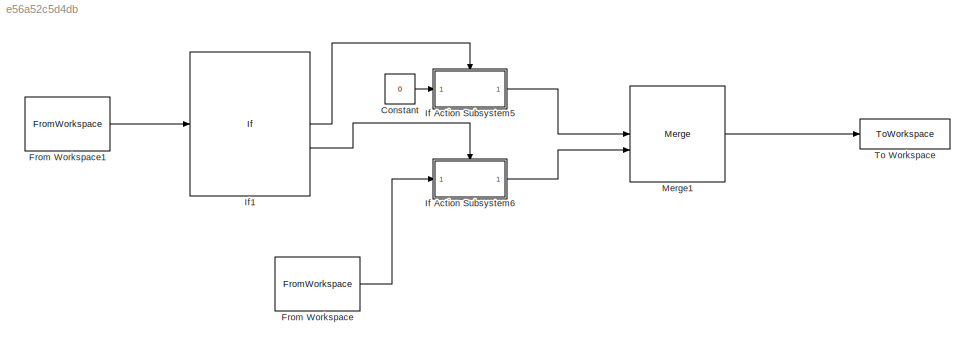
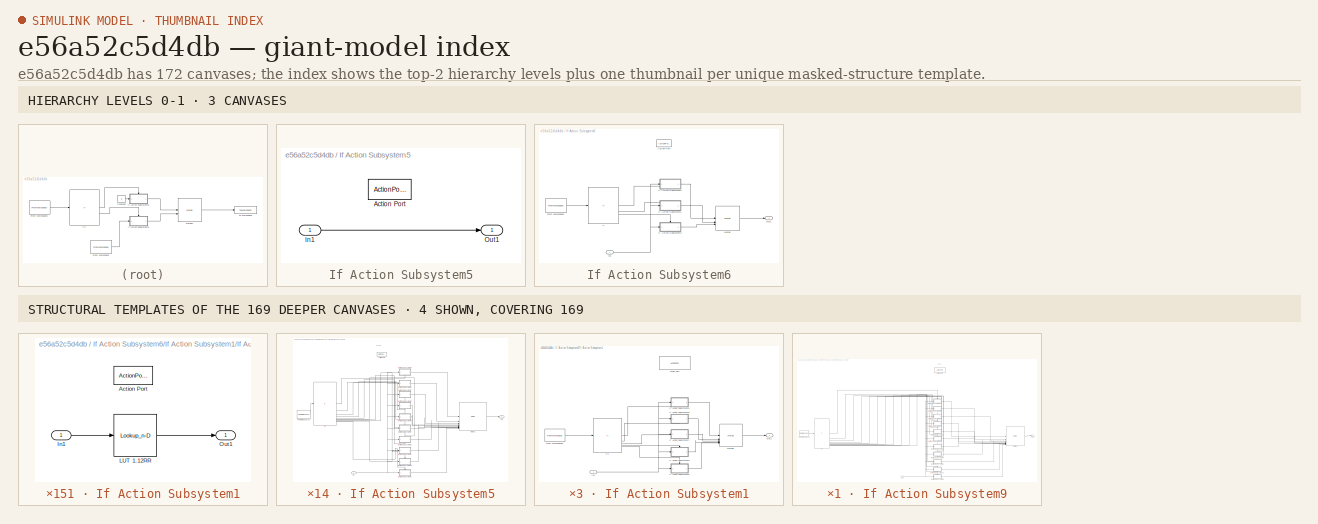
[diagram: thumbnail index - top-2 hierarchy levels (3 canvases) + 4 structural-template representatives of the remaining 169 canvases]
MODEL slx_e56a52c5d4db
KIND model
CONFIG AbsTol = auto
CONFIG EnableMultiTasking = off
CONFIG FixedStep = Timegap
CONFIG MaxStep = auto
CONFIG MinStep = auto
CONFIG RelTol = 1e-3
CONFIG SampleTimeConstraint = Unconstrained
CONFIG SolverName = FixedStepAuto
CONFIG StartTime = 0
CONFIG StopTime = 10.1
WORKSPACE source: mxarray member
WORKSPACE T1_input = 1.34
BLOCK [Constant] Constant
  Value = 0
BLOCK [FromWorkspace] From Workspace
  Interpolate = off
  OutputAfterFinalValue = Setting to zero
  VariableName = SimInputT1
BLOCK [FromWorkspace] From Workspace1
  Interpolate = off
  OutputAfterFinalValue = Setting to zero
  VariableName = SimInputT1
BLOCK [SubSystem] If Action Subsystem5
  TreatAsAtomicUnit = on
BLOCK [ActionPort] If Action Subsystem5/Action Port
  ActionPortLabel = if(u1 == 0)
BLOCK [Inport] If Action Subsystem5/In1
BLOCK [Outport] If Action Subsystem5/Out1
BLOCK [SubSystem] If Action Subsystem6
  TreatAsAtomicUnit = on
BLOCK [ActionPort] If Action Subsystem6/Action Port
  ActionPortLabel = else
BLOCK [FromWorkspace] If Action Subsystem6/From Workspace1
  Interpolate = off
  OutputAfterFinalValue = Setting to zero
  VariableName = SimInputHR
BLOCK [If] If Action Subsystem6/If
  ElseIfExpressions = u1 >= 0.995
  IfExpression = u1 >= 1.495
BLOCK [SubSystem] If Action Subsystem6/If Action Subsystem1
  TreatAsAtomicUnit = on
BLOCK [ActionPort] If Action Subsystem6/If Action Subsystem1/Action Port
  ActionPortLabel = elseif(u1 >= 0.995)
BLOCK [FromWorkspace] If Action Subsystem6/If Action Subsystem1/From Workspace2
  Interpolate = off
  OutputAfterFinalValue = Setting to zero
  VariableName = SimInputHR
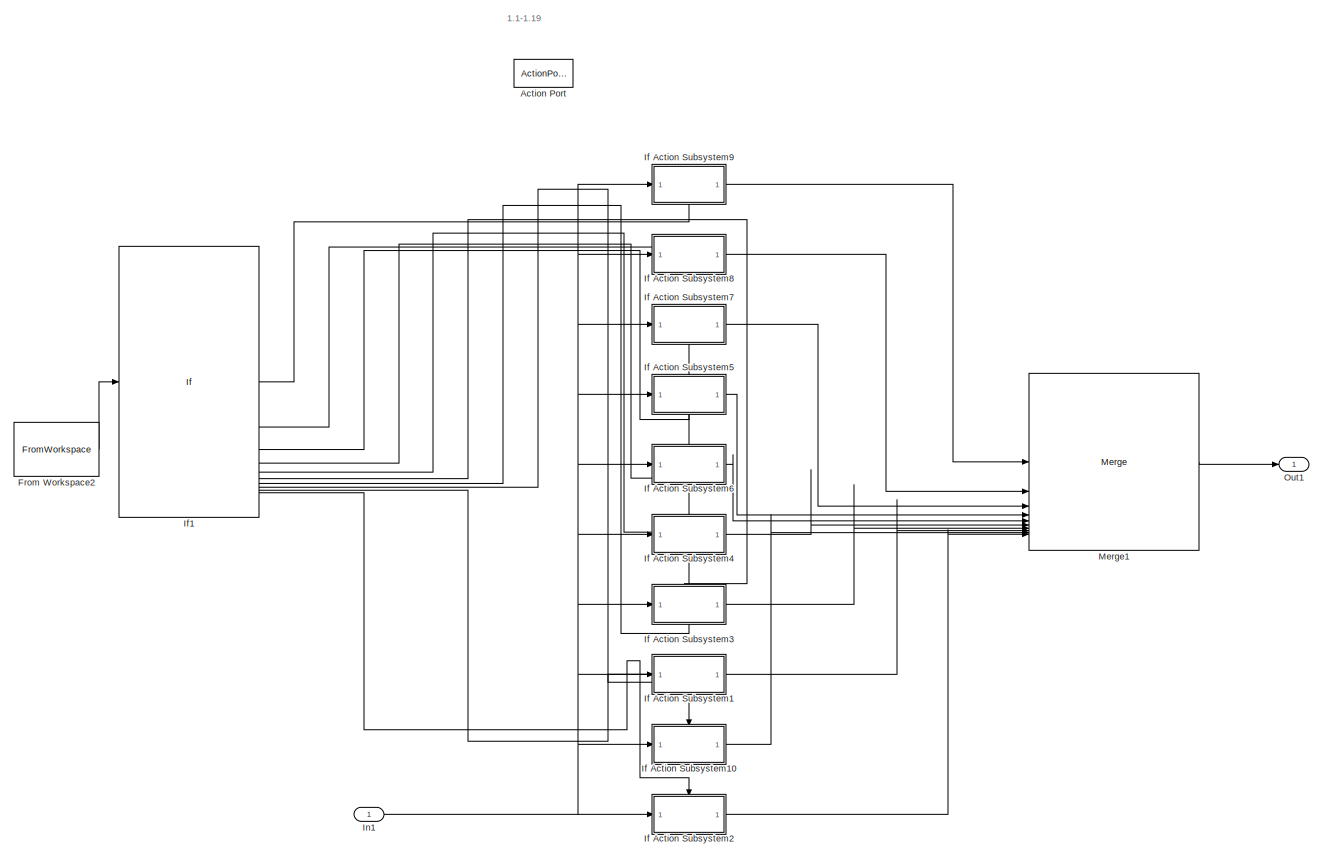
[diagram: If Action Subsystem6/If Action Subsystem1/If Action Subsystem5 - part 1/1, most of the canvas]
BLOCK [SubSystem] If Action Subsystem6/If Action Subsystem1/If Action Subsystem5
  TreatAsAtomicUnit = on
BLOCK [ActionPort] If Action Subsystem6/If Action Subsystem1/If Action Subsystem5/Action Port
  ActionPortLabel = elseif( u1 >= 1.095)
BLOCK [FromWorkspace] If Action Subsystem6/If Action Subsystem1/If Action Subsystem5/From Workspace2
  Interpolate = off
  OutputAfterFinalValue = Setting to zero
  VariableName = SimInputHR
BLOCK [SubSystem] If Action Subsystem6/If Action Subsystem1/If Action Subsystem5/If Action Subsystem1
  TreatAsAtomicUnit = on
BLOCK [ActionPort] If Action Subsystem6/If Action Subsystem1/If Action Subsystem5/If Action Subsystem1/Action Port
  ActionPortLabel = elseif( u1 >= 1.115)
BLOCK [Inport] If Action Subsystem6/If Action Subsystem1/If Action Subsystem5/If Action Subsystem1/In1
BLOCK [Lookup_n-D] If Action Subsystem6/If Action Subsystem1/If Action Subsystem5/If Action Subsystem1/LUT 1.12RR
  BreakpointsForDimension1 = [418.0995;530.6897;621.0357;717.6875;814.4601;911.1126;1007.644;1104.076;1200.433;1296.731;1392.982;1489.196;1585.381;1681.541;1777.681;1873.804;1969.911]
  InputPortMap = u0
  InternalRulePriority = Speed
  NumberOfTableDimensions = 1
  RndMeth = Simplest
  Table = [400;500;600;700;800;900;1000;1100;1200;1300;1400;1500;1600;1700;1800;1900;2000]
BLOCK [Outport] If Action Subsystem6/If Action Subsystem1/If Action Subsystem5/If Action Subsystem1/Out1
BLOCK [SubSystem] If Action Subsystem6/If Action Subsystem1/If Action Subsystem5/If Action Subsystem10
  TreatAsAtomicUnit = on
BLOCK [ActionPort] If Action Subsystem6/If Action Subsystem1/If Action Subsystem5/If Action Subsystem10/Action Port
  ActionPortLabel = elseif( u1 >= 1.105)
BLOCK [Inport] If Action Subsystem6/If Action Subsystem1/If Action Subsystem5/If Action Subsystem10/In1
BLOCK [Lookup_n-D] If Action Subsystem6/If Action Subsystem1/If Action Subsystem5/If Action Subsystem10/LUT 1.11RR
  BreakpointsForDimension1 = [418.3264;531.0464;621.5073;718.3016;815.2273;912.0394;1008.734;1105.334;1201.861;1298.329;1394.753;1491.141;1587.501;1683.836;1780.152;1876.45;1972.734]
  InputPortMap = u0
  InternalRulePriority = Speed
  NumberOfTableDimensions = 1
  RndMeth = Simplest
  Table = [400;500;600;700;800;900;1000;1100;1200;1300;1400;1500;1600;1700;1800;1900;2000]
BLOCK [Outport] If Action Subsystem6/If Action Subsystem1/If Action Subsystem5/If Action Subsystem10/Out1
BLOCK [SubSystem] If Action Subsystem6/If Action Subsystem1/If Action Subsystem5/If Action Subsystem2
  TreatAsAtomicUnit = on
BLOCK [ActionPort] If Action Subsystem6/If Action Subsystem1/If Action Subsystem5/If Action Subsystem2/Action Port
  ActionPortLabel = else
BLOCK [Inport] If Action Subsystem6/If Action Subsystem1/If Action Subsystem5/If Action Subsystem2/In1
BLOCK [Lookup_n-D] If Action Subsystem6/If Action Subsystem1/If Action Subsystem5/If Action Subsystem2/LUT 1.10RR
  BreakpointsForDimension1 = [418.5571;531.4108;621.9901;718.9306;816.013;912.9885;1009.851;1106.622;1203.322;1299.966;1396.566;1493.131;1589.669;1686.183;1782.678;1879.157;1975.621]
  InputPortMap = u0
  InternalRulePriority = Speed
  NumberOfTableDimensions = 1
  RndMeth = Simplest
  Table = [400;500;600;700;800;900;1000;1100;1200;1300;1400;1500;1600;1700;1800;1900;2000]
BLOCK [Outport] If Action Subsystem6/If Action Subsystem1/If Action Subsystem5/If Action Subsystem2/Out1
BLOCK [SubSystem] If Action Subsystem6/If Action Subsystem1/If Action Subsystem5/If Action Subsystem3
  TreatAsAtomicUnit = on
BLOCK [ActionPort] If Action Subsystem6/If Action Subsystem1/If Action Subsystem5/If Action Subsystem3/Action Port
  ActionPortLabel = elseif( u1 >= 1.125)
BLOCK [Inport] If Action Subsystem6/If Action Subsystem1/If Action Subsystem5/If Action Subsystem3/In1
BLOCK [Lookup_n-D] If Action Subsystem6/If Action Subsystem1/If Action Subsystem5/If Action Subsystem3/LUT 1.13RR
  BreakpointsForDimension1 = [417.8761;530.3407;620.5749;717.0878;813.7111;910.2076;1006.578;1102.847;1199.038;1295.168;1391.25;1487.294;1583.308;1679.296;1775.264;1871.214;1967.149]
  InputPortMap = u0
  InternalRulePriority = Speed
  NumberOfTableDimensions = 1
  RndMeth = Simplest
  Table = [400;500;600;700;800;900;1000;1100;1200;1300;1400;1500;1600;1700;1800;1900;2000]
BLOCK [Outport] If Action Subsystem6/If Action Subsystem1/If Action Subsystem5/If Action Subsystem3/Out1
BLOCK [SubSystem] If Action Subsystem6/If Action Subsystem1/If Action Subsystem5/If Action Subsystem4
  TreatAsAtomicUnit = on
BLOCK [ActionPort] If Action Subsystem6/If Action Subsystem1/If Action Subsystem5/If Action Subsystem4/Action Port
  ActionPortLabel = elseif( u1 >= 1.135)
BLOCK [Inport] If Action Subsystem6/If Action Subsystem1/If Action Subsystem5/If Action Subsystem4/In1
BLOCK [Lookup_n-D] If Action Subsystem6/If Action Subsystem1/If Action Subsystem5/If Action Subsystem4/LUT 1.14RR
  BreakpointsForDimension1 = [417.6561;529.9989;620.1246;716.502;812.9795;909.3235;1005.537;1101.646;1197.674;1293.64;1389.556;1485.434;1581.28;1677.101;1772.9;1868.681;1964.446]
  InputPortMap = u0
  InternalRulePriority = Speed
  NumberOfTableDimensions = 1
  RndMeth = Simplest
  Table = [400;500;600;700;800;900;1000;1100;1200;1300;1400;1500;1600;1700;1800;1900;2000]
BLOCK [Outport] If Action Subsystem6/If Action Subsystem1/If Action Subsystem5/If Action Subsystem4/Out1
BLOCK [SubSystem] If Action Subsystem6/If Action Subsystem1/If Action Subsystem5/If Action Subsystem5
  TreatAsAtomicUnit = on
BLOCK [ActionPort] If Action Subsystem6/If Action Subsystem1/If Action Subsystem5/If Action Subsystem5/Action Port
  ActionPortLabel = elseif( u1 >= 1.155)
BLOCK [Inport] If Action Subsystem6/If Action Subsystem1/If Action Subsystem5/If Action Subsystem5/In1
BLOCK [Lookup_n-D] If Action Subsystem6/If Action Subsystem1/If Action Subsystem5/If Action Subsystem5/LUT 1.16RR
  BreakpointsForDimension1 = [417.2261;529.3364;619.2539;715.3706;811.5665;907.6159;1003.526;1099.325;1195.038;1290.685;1386.281;1481.835;1577.357;1672.851;1768.323;1863.776;1959.212]
  InputPortMap = u0
  InternalRulePriority = Speed
  NumberOfTableDimensions = 1
  RndMeth = Simplest
  Table = [400;500;600;700;800;900;1000;1100;1200;1300;1400;1500;1600;1700;1800;1900;2000]
BLOCK [Outport] If Action Subsystem6/If Action Subsystem1/If Action Subsystem5/If Action Subsystem5/Out1
BLOCK [SubSystem] If Action Subsystem6/If Action Subsystem1/If Action Subsystem5/If Action Subsystem6
  TreatAsAtomicUnit = on
BLOCK [ActionPort] If Action Subsystem6/If Action Subsystem1/If Action Subsystem5/If Action Subsystem6/Action Port
  ActionPortLabel = elseif( u1 >= 1.145)
BLOCK [Inport] If Action Subsystem6/If Action Subsystem1/If Action Subsystem5/If Action Subsystem6/In1
BLOCK [Lookup_n-D] If Action Subsystem6/If Action Subsystem1/If Action Subsystem5/If Action Subsystem6/LUT 1.15RR
  BreakpointsForDimension1 = [417.4395;529.6642;619.6843;715.9298;812.2648;908.4599;1004.52;1100.472;1196.341;1292.146;1387.9;1483.615;1579.297;1674.953;1770.587;1866.202;1961.801]
  InputPortMap = u0
  InternalRulePriority = Speed
  NumberOfTableDimensions = 1
  RndMeth = Simplest
  Table = [400;500;600;700;800;900;1000;1100;1200;1300;1400;1500;1600;1700;1800;1900;2000]
BLOCK [Outport] If Action Subsystem6/If Action Subsystem1/If Action Subsystem5/If Action Subsystem6/Out1
BLOCK [SubSystem] If Action Subsystem6/If Action Subsystem1/If Action Subsystem5/If Action Subsystem7
  TreatAsAtomicUnit = on
BLOCK [ActionPort] If Action Subsystem6/If Action Subsystem1/If Action Subsystem5/If Action Subsystem7/Action Port
  ActionPortLabel = elseif( u1 >= 1.165)
BLOCK [Inport] If Action Subsystem6/If Action Subsystem1/If Action Subsystem5/If Action Subsystem7/In1
BLOCK [Lookup_n-D] If Action Subsystem6/If Action Subsystem1/If Action Subsystem5/If Action Subsystem7/LUT 1.17RR
  BreakpointsForDimension1 = [417.0159;529.0152;618.8329;714.8241;810.8842;906.7911;1002.554;1098.203;1193.763;1289.256;1384.696;1480.094;1575.458;1670.794;1766.107;1861.4;1956.677]
  InputPortMap = u0
  InternalRulePriority = Speed
  NumberOfTableDimensions = 1
  RndMeth = Simplest
  Table = [400;500;600;700;800;900;1000;1100;1200;1300;1400;1500;1600;1700;1800;1900;2000]
BLOCK [Outport] If Action Subsystem6/If Action Subsystem1/If Action Subsystem5/If Action Subsystem7/Out1
BLOCK [SubSystem] If Action Subsystem6/If Action Subsystem1/If Action Subsystem5/If Action Subsystem8
  TreatAsAtomicUnit = on
BLOCK [ActionPort] If Action Subsystem6/If Action Subsystem1/If Action Subsystem5/If Action Subsystem8/Action Port
  ActionPortLabel = elseif(u1 >= 1.175)
BLOCK [Inport] If Action Subsystem6/If Action Subsystem1/If Action Subsystem5/If Action Subsystem8/In1
BLOCK [Lookup_n-D] If Action Subsystem6/If Action Subsystem1/If Action Subsystem5/If Action Subsystem8/LUT 1.18RR
  BreakpointsForDimension1 = [416.8086;528.7004;618.4211;714.2899;810.2173;905.9849;1001.604;1097.105;1192.517;1287.858;1383.146;1478.39;1573.599;1668.78;1763.937;1859.075;1954.195]
  InputPortMap = u0
  InternalRulePriority = Speed
  NumberOfTableDimensions = 1
  RndMeth = Simplest
  Table = [400;500;600;700;800;900;1000;1100;1200;1300;1400;1500;1600;1700;1800;1900;2000]
BLOCK [Outport] If Action Subsystem6/If Action Subsystem1/If Action Subsystem5/If Action Subsystem8/Out1
BLOCK [SubSystem] If Action Subsystem6/If Action Subsystem1/If Action Subsystem5/If Action Subsystem9
  TreatAsAtomicUnit = on
BLOCK [ActionPort] If Action Subsystem6/If Action Subsystem1/If Action Subsystem5/If Action Subsystem9/Action Port
  ActionPortLabel = if(u1 >= 1.185)
BLOCK [Inport] If Action Subsystem6/If Action Subsystem1/If Action Subsystem5/If Action Subsystem9/In1
BLOCK [Lookup_n-D] If Action Subsystem6/If Action Subsystem1/If Action Subsystem5/If Action Subsystem9/LUT 1.19RR
  BreakpointsForDimension1 = [416.6044;528.3919;618.0181;713.7676;809.5654;905.1967;1000.675;1096.032;1191.297;1286.491;1381.628;1476.722;1571.78;1666.808;1761.813;1856.797;1951.764]
  InputPortMap = u0
  InternalRulePriority = Speed
  NumberOfTableDimensions = 1
  RndMeth = Simplest
  Table = [400;500;600;700;800;900;1000;1100;1200;1300;1400;1500;1600;1700;1800;1900;2000]
BLOCK [Outport] If Action Subsystem6/If Action Subsystem1/If Action Subsystem5/If Action Subsystem9/Out1
BLOCK [If] If Action Subsystem6/If Action Subsystem1/If Action Subsystem5/If1
  ElseIfExpressions = u1 >= 1.175, u1 >= 1.165, u1 >= 1.155, u1 >= 1.145, u1 >= 1.135, u1 >= 1.125, u1 >= 1.115, u1 >= 1.105
  IfExpression = u1 >= 1.185
BLOCK [Inport] If Action Subsystem6/If Action Subsystem1/If Action Subsystem5/In1
BLOCK [Merge] If Action Subsystem6/If Action Subsystem1/If Action Subsystem5/Merge1
  Inputs = 10
BLOCK [Outport] If Action Subsystem6/If Action Subsystem1/If Action Subsystem5/Out1
BLOCK [SubSystem] If Action Subsystem6/If Action Subsystem1/If Action Subsystem6
  TreatAsAtomicUnit = on
BLOCK [ActionPort] If Action Subsystem6/If Action Subsystem1/If Action Subsystem6/Action Port
  ActionPortLabel = else
BLOCK [FromWorkspace] If Action Subsystem6/If Action Subsystem1/If Action Subsystem6/From Workspace2
  Interpolate = off
  OutputAfterFinalValue = Setting to zero
  VariableName = SimInputHR
BLOCK [SubSystem] If Action Subsystem6/If Action Subsystem1/If Action Subsystem6/If Action Subsystem1
  TreatAsAtomicUnit = on
BLOCK [ActionPort] If Action Subsystem6/If Action Subsystem1/If Action Subsystem6/If Action Subsystem1/Action Port
  ActionPortLabel = elseif( u1 >= 1.015)
BLOCK [Inport] If Action Subsystem6/If Action Subsystem1/If Action Subsystem6/If Action Subsystem1/In1
BLOCK [Lookup_n-D] If Action Subsystem6/If Action Subsystem1/If Action Subsystem6/If Action Subsystem1/LUT 1.02RR
  BreakpointsForDimension1 = [420.5519;534.646;626.3059;724.5665;823.0539;921.4868;1019.842;1118.131;1216.366;1314.559;1412.719;1510.852;1608.964;1707.058;1805.137;1903.203;2001.256]
  InputPortMap = u0
  InternalRulePriority = Speed
  NumberOfTableDimensions = 1
  RndMeth = Simplest
  Table = [400;500;600;700;800;900;1000;1100;1200;1300;1400;1500;1600;1700;1800;1900;2000]
BLOCK [Outport] If Action Subsystem6/If Action Subsystem1/If Action Subsystem6/If Action Subsystem1/Out1
BLOCK [SubSystem] If Action Subsystem6/If Action Subsystem1/If Action Subsystem6/If Action Subsystem10
  TreatAsAtomicUnit = on
BLOCK [ActionPort] If Action Subsystem6/If Action Subsystem1/If Action Subsystem6/If Action Subsystem10/Action Port
  ActionPortLabel = elseif( u1 >= 1.005)
BLOCK [Inport] If Action Subsystem6/If Action Subsystem1/If Action Subsystem6/If Action Subsystem10/In1
BLOCK [Lookup_n-D] If Action Subsystem6/If Action Subsystem1/If Action Subsystem6/If Action Subsystem10/LUT 1.01RR
  BreakpointsForDimension1 = [420.8224;535.0958;626.9096;725.3562;824.0403;922.6765;1021.239;1119.739;1218.186;1316.594;1414.969;1513.32;1611.649;1709.961;1808.259;1906.545;2004.817]
  InputPortMap = u0
  InternalRulePriority = Speed
  NumberOfTableDimensions = 1
  RndMeth = Simplest
  Table = [400;500;600;700;800;900;1000;1100;1200;1300;1400;1500;1600;1700;1800;1900;2000]
BLOCK [Outport] If Action Subsystem6/If Action Subsystem1/If Action Subsystem6/If Action Subsystem10/Out1
BLOCK [SubSystem] If Action Subsystem6/If Action Subsystem1/If Action Subsystem6/If Action Subsystem2
  TreatAsAtomicUnit = on
BLOCK [ActionPort] If Action Subsystem6/If Action Subsystem1/If Action Subsystem6/If Action Subsystem2/Action Port
  ActionPortLabel = else
BLOCK [Inport] If Action Subsystem6/If Action Subsystem1/If Action Subsystem6/If Action Subsystem2/In1
BLOCK [Lookup_n-D] If Action Subsystem6/If Action Subsystem1/If Action Subsystem6/If Action Subsystem2/LUT 1.00RR
  BreakpointsForDimension1 = [421.0983;535.557;627.5295;726.1674;825.0535;923.898;1022.674;1121.389;1220.054;1318.682;1417.278;1515.85;1614.402;1712.938;1811.46;1909.97;2008.467]
  InputPortMap = u0
  InternalRulePriority = Speed
  NumberOfTableDimensions = 1
  RndMeth = Simplest
  Table = [400;500;600;700;800;900;1000;1100;1200;1300;1400;1500;1600;1700;1800;1900;2000]
BLOCK [Outport] If Action Subsystem6/If Action Subsystem1/If Action Subsystem6/If Action Subsystem2/Out1
BLOCK [SubSystem] If Action Subsystem6/If Action Subsystem1/If Action Subsystem6/If Action Subsystem3
  TreatAsAtomicUnit = on
BLOCK [ActionPort] If Action Subsystem6/If Action Subsystem1/If Action Subsystem6/If Action Subsystem3/Action Port
  ActionPortLabel = elseif( u1 >= 1.025)
BLOCK [Inport] If Action Subsystem6/If Action Subsystem1/If Action Subsystem6/If Action Subsystem3/In1
BLOCK [Lookup_n-D] If Action Subsystem6/If Action Subsystem1/If Action Subsystem6/If Action Subsystem3/LUT 1.03RR
  BreakpointsForDimension1 = [420.2865;534.2073;625.7178;723.7974;822.0932;920.3279;1018.481;1116.564;1214.591;1312.575;1410.524;1508.445;1606.345;1704.225;1802.091;1899.942;1997.781]
  InputPortMap = u0
  InternalRulePriority = Speed
  NumberOfTableDimensions = 1
  RndMeth = Simplest
  Table = [400;500;600;700;800;900;1000;1100;1200;1300;1400;1500;1600;1700;1800;1900;2000]
BLOCK [Outport] If Action Subsystem6/If Action Subsystem1/If Action Subsystem6/If Action Subsystem3/Out1
BLOCK [SubSystem] If Action Subsystem6/If Action Subsystem1/If Action Subsystem6/If Action Subsystem4
  TreatAsAtomicUnit = on
BLOCK [ActionPort] If Action Subsystem6/If Action Subsystem1/If Action Subsystem6/If Action Subsystem4/Action Port
  ActionPortLabel = elseif( u1 >= 1.035)
BLOCK [Inport] If Action Subsystem6/If Action Subsystem1/If Action Subsystem6/If Action Subsystem4/In1
BLOCK [Lookup_n-D] If Action Subsystem6/If Action Subsystem1/If Action Subsystem6/If Action Subsystem4/LUT 1.04RR
  BreakpointsForDimension1 = [420.026;533.7792;625.1446;723.0482;821.1572;919.1987;1017.154;1115.036;1212.861;1310.64;1408.383;1506.097;1603.789;1701.461;1799.118;1896.76;1994.389]
  InputPortMap = u0
  InternalRulePriority = Speed
  NumberOfTableDimensions = 1
  RndMeth = Simplest
  Table = [400;500;600;700;800;900;1000;1100;1200;1300;1400;1500;1600;1700;1800;1900;2000]
BLOCK [Outport] If Action Subsystem6/If Action Subsystem1/If Action Subsystem6/If Action Subsystem4/Out1
BLOCK [SubSystem] If Action Subsystem6/If Action Subsystem1/If Action Subsystem6/If Action Subsystem5
  TreatAsAtomicUnit = on
BLOCK [ActionPort] If Action Subsystem6/If Action Subsystem1/If Action Subsystem6/If Action Subsystem5/Action Port
  ActionPortLabel = elseif( u1 >= 1.055)
BLOCK [Inport] If Action Subsystem6/If Action Subsystem1/If Action Subsystem6/If Action Subsystem5/In1
BLOCK [Lookup_n-D] If Action Subsystem6/If Action Subsystem1/If Action Subsystem6/If Action Subsystem5/LUT 1.06RR
  BreakpointsForDimension1 = [419.5192;532.953;624.0409;721.6063;819.3558;917.0247;1014.599;1112.093;1209.526;1306.909;1404.254;1501.569;1598.859;1696.128;1793.38;1890.617;1987.841]
  InputPortMap = u0
  InternalRulePriority = Speed
  NumberOfTableDimensions = 1
  RndMeth = Simplest
  Table = [400;500;600;700;800;900;1000;1100;1200;1300;1400;1500;1600;1700;1800;1900;2000]
BLOCK [Outport] If Action Subsystem6/If Action Subsystem1/If Action Subsystem6/If Action Subsystem5/Out1
BLOCK [SubSystem] If Action Subsystem6/If Action Subsystem1/If Action Subsystem6/If Action Subsystem6
  TreatAsAtomicUnit = on
BLOCK [ActionPort] If Action Subsystem6/If Action Subsystem1/If Action Subsystem6/If Action Subsystem6/Action Port
  ActionPortLabel = elseif( u1 >= 1.045)
BLOCK [Inport] If Action Subsystem6/If Action Subsystem1/If Action Subsystem6/If Action Subsystem6/In1
BLOCK [Lookup_n-D] If Action Subsystem6/If Action Subsystem1/If Action Subsystem6/If Action Subsystem6/LUT 1.05RR
  BreakpointsForDimension1 = [419.7703;533.3612;624.5658;722.3181;820.245;918.098;1015.86;1113.547;1211.173;1308.752;1406.294;1503.806;1601.294;1698.763;1796.215;1893.652;1991.077]
  InputPortMap = u0
  InternalRulePriority = Speed
  NumberOfTableDimensions = 1
  RndMeth = Simplest
  Table = [400;500;600;700;800;900;1000;1100;1200;1300;1400;1500;1600;1700;1800;1900;2000]
BLOCK [Outport] If Action Subsystem6/If Action Subsystem1/If Action Subsystem6/If Action Subsystem6/Out1
BLOCK [SubSystem] If Action Subsystem6/If Action Subsystem1/If Action Subsystem6/If Action Subsystem7
  TreatAsAtomicUnit = on
BLOCK [ActionPort] If Action Subsystem6/If Action Subsystem1/If Action Subsystem6/If Action Subsystem7/Action Port
  ActionPortLabel = elseif( u1 >= 1.065)
BLOCK [Inport] If Action Subsystem6/If Action Subsystem1/If Action Subsystem6/If Action Subsystem7/In1
BLOCK [Lookup_n-D] If Action Subsystem6/If Action Subsystem1/If Action Subsystem6/If Action Subsystem7/LUT 1.07RR
  BreakpointsForDimension1 = [419.2724;532.5542;623.5094;720.9123;818.4888;915.9781;1013.368;1110.676;1207.919;1305.111;1402.264;1499.385;1596.48;1693.555;1790.611;1887.653;1984.68]
  InputPortMap = u0
  InternalRulePriority = Speed
  NumberOfTableDimensions = 1
  RndMeth = Simplest
  Table = [400;500;600;700;800;900;1000;1100;1200;1300;1400;1500;1600;1700;1800;1900;2000]
BLOCK [Outport] If Action Subsystem6/If Action Subsystem1/If Action Subsystem6/If Action Subsystem7/Out1
BLOCK [SubSystem] If Action Subsystem6/If Action Subsystem1/If Action Subsystem6/If Action Subsystem8
  TreatAsAtomicUnit = on
BLOCK [ActionPort] If Action Subsystem6/If Action Subsystem1/If Action Subsystem6/If Action Subsystem8/Action Port
  ActionPortLabel = elseif(u1 >= 1.075)
BLOCK [Inport] If Action Subsystem6/If Action Subsystem1/If Action Subsystem6/If Action Subsystem8/In1
BLOCK [Lookup_n-D] If Action Subsystem6/If Action Subsystem1/If Action Subsystem6/If Action Subsystem8/LUT 1.08RR
  BreakpointsForDimension1 = [419.0299;532.1644;622.9907;720.2354;817.6431;914.9571;1012.167;1109.292;1206.35;1303.355;1400.32;1497.252;1594.157;1691.041;1787.906;1884.756;1981.592]
  InputPortMap = u0
  InternalRulePriority = Speed
  NumberOfTableDimensions = 1
  RndMeth = Simplest
  Table = [400;500;600;700;800;900;1000;1100;1200;1300;1400;1500;1600;1700;1800;1900;2000]
BLOCK [Outport] If Action Subsystem6/If Action Subsystem1/If Action Subsystem6/If Action Subsystem8/Out1
BLOCK [SubSystem] If Action Subsystem6/If Action Subsystem1/If Action Subsystem6/If Action Subsystem9
  TreatAsAtomicUnit = on
BLOCK [ActionPort] If Action Subsystem6/If Action Subsystem1/If Action Subsystem6/If Action Subsystem9/Action Port
  ActionPortLabel = if(u1 >= 1.085)
BLOCK [Inport] If Action Subsystem6/If Action Subsystem1/If Action Subsystem6/If Action Subsystem9/In1
BLOCK [Lookup_n-D] If Action Subsystem6/If Action Subsystem1/If Action Subsystem6/If Action Subsystem9/LUT 1.09RR
  BreakpointsForDimension1 = [418.7915;531.7834;622.4844;719.5751;816.8181;913.9608;1010.995;1107.941;1204.818;1301.641;1398.421;1495.168;1591.887;1688.584;1785.262;1881.925;1978.573]
  InputPortMap = u0
  InternalRulePriority = Speed
  NumberOfTableDimensions = 1
  RndMeth = Simplest
  Table = [400;500;600;700;800;900;1000;1100;1200;1300;1400;1500;1600;1700;1800;1900;2000]
BLOCK [Outport] If Action Subsystem6/If Action Subsystem1/If Action Subsystem6/If Action Subsystem9/Out1
BLOCK [If] If Action Subsystem6/If Action Subsystem1/If Action Subsystem6/If1
  ElseIfExpressions = u1 >= 1.075, u1 >= 1.065, u1 >= 1.055, u1 >= 1.045, u1 >= 1.035, u1 >= 1.025, u1 >= 1.015, u1 >= 1.005
  IfExpression = u1 >= 1.085
BLOCK [Inport] If Action Subsystem6/If Action Subsystem1/If Action Subsystem6/In1
BLOCK [Merge] If Action Subsystem6/If Action Subsystem1/If Action Subsystem6/Merge1
  Inputs = 10
BLOCK [Outport] If Action Subsystem6/If Action Subsystem1/If Action Subsystem6/Out1
BLOCK [SubSystem] If Action Subsystem6/If Action Subsystem1/If Action Subsystem7
  TreatAsAtomicUnit = on
BLOCK [ActionPort] If Action Subsystem6/If Action Subsystem1/If Action Subsystem7/Action Port
  ActionPortLabel = elseif( u1 >= 1.195)
BLOCK [FromWorkspace] If Action Subsystem6/If Action Subsystem1/If Action Subsystem7/From Workspace2
  Interpolate = off
  OutputAfterFinalValue = Setting to zero
  VariableName = SimInputHR
BLOCK [SubSystem] If Action Subsystem6/If Action Subsystem1/If Action Subsystem7/If Action Subsystem1
  TreatAsAtomicUnit = on
BLOCK [ActionPort] If Action Subsystem6/If Action Subsystem1/If Action Subsystem7/If Action Subsystem1/Action Port
  ActionPortLabel = elseif( u1 >= 1.215)
BLOCK [Inport] If Action Subsystem6/If Action Subsystem1/If Action Subsystem7/If Action Subsystem1/In1
BLOCK [Lookup_n-D] If Action Subsystem6/If Action Subsystem1/If Action Subsystem7/If Action Subsystem1/LUT 1.22RR
  BreakpointsForDimension1 = [416.0084;527.5016;616.8602;712.2688;807.6951;902.9352;998.0083;1092.951;1187.794;1282.56;1377.266;1471.925;1566.545;1661.135;1755.698;1850.24;1944.764]
  InputPortMap = u0
  InternalRulePriority = Speed
  NumberOfTableDimensions = 1
  RndMeth = Simplest
  Table = [400;500;600;700;800;900;1000;1100;1200;1300;1400;1500;1600;1700;1800;1900;2000]
BLOCK [Outport] If Action Subsystem6/If Action Subsystem1/If Action Subsystem7/If Action Subsystem1/Out1
BLOCK [SubSystem] If Action Subsystem6/If Action Subsystem1/If Action Subsystem7/If Action Subsystem10
  TreatAsAtomicUnit = on
BLOCK [ActionPort] If Action Subsystem6/If Action Subsystem1/If Action Subsystem7/If Action Subsystem10/Action Port
  ActionPortLabel = elseif( u1 >= 1.205)
BLOCK [Inport] If Action Subsystem6/If Action Subsystem1/If Action Subsystem7/If Action Subsystem10/In1
BLOCK [Lookup_n-D] If Action Subsystem6/If Action Subsystem1/If Action Subsystem7/If Action Subsystem10/LUT 1.21RR
  BreakpointsForDimension1 = [416.2043;527.7926;617.2379;712.7574;808.3047;903.6723;998.8776;1093.956;1188.937;1283.842;1378.69;1473.49;1568.254;1662.987;1757.695;1852.381;1947.05]
  InputPortMap = u0
  InternalRulePriority = Speed
  NumberOfTableDimensions = 1
  RndMeth = Simplest
  Table = [400;500;600;700;800;900;1000;1100;1200;1300;1400;1500;1600;1700;1800;1900;2000]
BLOCK [Outport] If Action Subsystem6/If Action Subsystem1/If Action Subsystem7/If Action Subsystem10/Out1
BLOCK [SubSystem] If Action Subsystem6/If Action Subsystem1/If Action Subsystem7/If Action Subsystem2
  TreatAsAtomicUnit = on
BLOCK [ActionPort] If Action Subsystem6/If Action Subsystem1/If Action Subsystem7/If Action Subsystem2/Action Port
  ActionPortLabel = else
BLOCK [Inport] If Action Subsystem6/If Action Subsystem1/If Action Subsystem7/If Action Subsystem2/In1
BLOCK [Lookup_n-D] If Action Subsystem6/If Action Subsystem1/If Action Subsystem7/If Action Subsystem2/LUT 1.20RR
  BreakpointsForDimension1 = [416.403;528.0893;617.6239;713.2569;808.928;904.426;999.7663;1094.983;1190.104;1285.152;1380.143;1475.089;1569.998;1664.878;1759.732;1854.566;1949.383]
  InputPortMap = u0
  InternalRulePriority = Speed
  NumberOfTableDimensions = 1
  RndMeth = Simplest
  Table = [400;500;600;700;800;900;1000;1100;1200;1300;1400;1500;1600;1700;1800;1900;2000]
BLOCK [Outport] If Action Subsystem6/If Action Subsystem1/If Action Subsystem7/If Action Subsystem2/Out1
BLOCK [SubSystem] If Action Subsystem6/If Action Subsystem1/If Action Subsystem7/If Action Subsystem3
  TreatAsAtomicUnit = on
BLOCK [ActionPort] If Action Subsystem6/If Action Subsystem1/If Action Subsystem7/If Action Subsystem3/Action Port
  ActionPortLabel = elseif( u1 >= 1.225)
BLOCK [Inport] If Action Subsystem6/If Action Subsystem1/If Action Subsystem7/If Action Subsystem3/In1
BLOCK [Lookup_n-D] If Action Subsystem6/If Action Subsystem1/If Action Subsystem7/If Action Subsystem3/LUT 1.23RR
  BreakpointsForDimension1 = [415.8151;527.216;616.4903;711.7908;807.0989;902.2141;997.1578;1091.968;1186.676;1281.305;1375.873;1470.392;1564.872;1659.32;1753.742;1848.142;1942.523]
  InputPortMap = u0
  InternalRulePriority = Speed
  NumberOfTableDimensions = 1
  RndMeth = Simplest
  Table = [400;500;600;700;800;900;1000;1100;1200;1300;1400;1500;1600;1700;1800;1900;2000]
BLOCK [Outport] If Action Subsystem6/If Action Subsystem1/If Action Subsystem7/If Action Subsystem3/Out1
BLOCK [SubSystem] If Action Subsystem6/If Action Subsystem1/If Action Subsystem7/If Action Subsystem4
  TreatAsAtomicUnit = on
BLOCK [ActionPort] If Action Subsystem6/If Action Subsystem1/If Action Subsystem7/If Action Subsystem4/Action Port
  ActionPortLabel = elseif( u1 >= 1.235)
BLOCK [Inport] If Action Subsystem6/If Action Subsystem1/If Action Subsystem7/If Action Subsystem4/In1
BLOCK [Lookup_n-D] If Action Subsystem6/If Action Subsystem1/If Action Subsystem7/If Action Subsystem4/LUT 1.24RR
  BreakpointsForDimension1 = [415.6243;526.9358;616.128;711.3231;806.5156;901.5086;996.3255;1091.006;1185.581;1280.076;1374.508;1468.89;1563.233;1657.543;1751.826;1846.086;1940.327]
  InputPortMap = u0
  InternalRulePriority = Speed
  NumberOfTableDimensions = 1
  RndMeth = Simplest
  Table = [400;500;600;700;800;900;1000;1100;1200;1300;1400;1500;1600;1700;1800;1900;2000]
BLOCK [Outport] If Action Subsystem6/If Action Subsystem1/If Action Subsystem7/If Action Subsystem4/Out1
BLOCK [SubSystem] If Action Subsystem6/If Action Subsystem1/If Action Subsystem7/If Action Subsystem5
  TreatAsAtomicUnit = on
BLOCK [ActionPort] If Action Subsystem6/If Action Subsystem1/If Action Subsystem7/If Action Subsystem5/Action Port
  ActionPortLabel = elseif( u1 >= 1.255)
BLOCK [Inport] If Action Subsystem6/If Action Subsystem1/If Action Subsystem7/If Action Subsystem5/In1
BLOCK [Lookup_n-D] If Action Subsystem6/If Action Subsystem1/If Action Subsystem7/If Action Subsystem5/LUT 1.26RR
  BreakpointsForDimension1 = [415.2502;526.3909;615.4257;710.4174;805.3864;900.1427;994.7137;1089.141;1183.459;1277.693;1371.861;1465.978;1560.052;1654.093;1748.106;1842.095;1936.064]
  InputPortMap = u0
  InternalRulePriority = Speed
  NumberOfTableDimensions = 1
  RndMeth = Simplest
  Table = [400;500;600;700;800;900;1000;1100;1200;1300;1400;1500;1600;1700;1800;1900;2000]
BLOCK [Outport] If Action Subsystem6/If Action Subsystem1/If Action Subsystem7/If Action Subsystem5/Out1
BLOCK [SubSystem] If Action Subsystem6/If Action Subsystem1/If Action Subsystem7/If Action Subsystem6
  TreatAsAtomicUnit = on
BLOCK [ActionPort] If Action Subsystem6/If Action Subsystem1/If Action Subsystem7/If Action Subsystem6/Action Port
  ActionPortLabel = elseif( u1 >= 1.245)
BLOCK [Inport] If Action Subsystem6/If Action Subsystem1/If Action Subsystem7/If Action Subsystem6/In1
BLOCK [Lookup_n-D] If Action Subsystem6/If Action Subsystem1/If Action Subsystem7/If Action Subsystem6/LUT 1.25RR
  BreakpointsForDimension1 = [415.4361;526.6608;615.7732;710.8654;805.9449;900.8182;995.511;1090.064;1184.509;1278.872;1373.171;1467.419;1561.626;1655.8;1749.947;1844.071;1938.175]
  InputPortMap = u0
  InternalRulePriority = Speed
  NumberOfTableDimensions = 1
  RndMeth = Simplest
  Table = [400;500;600;700;800;900;1000;1100;1200;1300;1400;1500;1600;1700;1800;1900;2000]
BLOCK [Outport] If Action Subsystem6/If Action Subsystem1/If Action Subsystem7/If Action Subsystem6/Out1
BLOCK [SubSystem] If Action Subsystem6/If Action Subsystem1/If Action Subsystem7/If Action Subsystem7
  TreatAsAtomicUnit = on
BLOCK [ActionPort] If Action Subsystem6/If Action Subsystem1/If Action Subsystem7/If Action Subsystem7/Action Port
  ActionPortLabel = elseif( u1 >= 1.265)
BLOCK [Inport] If Action Subsystem6/If Action Subsystem1/If Action Subsystem7/If Action Subsystem7/In1
BLOCK [Lookup_n-D] If Action Subsystem6/If Action Subsystem1/If Action Subsystem7/If Action Subsystem7/LUT 1.27RR
  BreakpointsForDimension1 = [415.0668;526.1258;615.0852;709.9789;804.8399;899.4815;993.9333;1088.238;1182.431;1276.538;1370.578;1464.565;1558.51;1652.42;1746.301;1840.158;1933.995]
  InputPortMap = u0
  InternalRulePriority = Speed
  NumberOfTableDimensions = 1
  RndMeth = Simplest
  Table = [400;500;600;700;800;900;1000;1100;1200;1300;1400;1500;1600;1700;1800;1900;2000]
BLOCK [Outport] If Action Subsystem6/If Action Subsystem1/If Action Subsystem7/If Action Subsystem7/Out1
BLOCK [SubSystem] If Action Subsystem6/If Action Subsystem1/If Action Subsystem7/If Action Subsystem8
  TreatAsAtomicUnit = on
BLOCK [ActionPort] If Action Subsystem6/If Action Subsystem1/If Action Subsystem7/If Action Subsystem8/Action Port
  ActionPortLabel = elseif(u1 >= 1.275)
BLOCK [Inport] If Action Subsystem6/If Action Subsystem1/If Action Subsystem7/If Action Subsystem8/In1
BLOCK [Lookup_n-D] If Action Subsystem6/If Action Subsystem1/If Action Subsystem7/If Action Subsystem8/LUT 1.28RR
  BreakpointsForDimension1 = [414.8856;525.8655;614.7515;709.5496;804.3049;898.8344;993.1693;1087.354;1181.425;1275.407;1369.321;1463.181;1556.998;1650.779;1744.531;1838.259;1931.966]
  InputPortMap = u0
  InternalRulePriority = Speed
  NumberOfTableDimensions = 1
  RndMeth = Simplest
  Table = [400;500;600;700;800;900;1000;1100;1200;1300;1400;1500;1600;1700;1800;1900;2000]
BLOCK [Outport] If Action Subsystem6/If Action Subsystem1/If Action Subsystem7/If Action Subsystem8/Out1
BLOCK [SubSystem] If Action Subsystem6/If Action Subsystem1/If Action Subsystem7/If Action Subsystem9
  TreatAsAtomicUnit = on
BLOCK [ActionPort] If Action Subsystem6/If Action Subsystem1/If Action Subsystem7/If Action Subsystem9/Action Port
  ActionPortLabel = if(u1 >= 1.285)
BLOCK [Inport] If Action Subsystem6/If Action Subsystem1/If Action Subsystem7/If Action Subsystem9/In1
BLOCK [Lookup_n-D] If Action Subsystem6/If Action Subsystem1/If Action Subsystem7/If Action Subsystem9/LUT 1.29RR
  BreakpointsForDimension1 = [414.7067;525.6098;614.4245;709.1292;803.7813;898.2008;992.4213;1086.488;1180.439;1274.299;1368.089;1461.825;1555.516;1649.171;1742.796;1836.396;1929.975]
  InputPortMap = u0
  InternalRulePriority = Speed
  NumberOfTableDimensions = 1
  RndMeth = Simplest
  Table = [400;500;600;700;800;900;1000;1100;1200;1300;1400;1500;1600;1700;1800;1900;2000]
BLOCK [Outport] If Action Subsystem6/If Action Subsystem1/If Action Subsystem7/If Action Subsystem9/Out1
BLOCK [If] If Action Subsystem6/If Action Subsystem1/If Action Subsystem7/If1
  ElseIfExpressions = u1 >= 1.275, u1 >= 1.265, u1 >= 1.255, u1 >= 1.245, u1 >= 1.235, u1 >= 1.225, u1 >= 1.215, u1 >= 1.205
  IfExpression = u1 >= 1.285
BLOCK [Inport] If Action Subsystem6/If Action Subsystem1/If Action Subsystem7/In2
BLOCK [Merge] If Action Subsystem6/If Action Subsystem1/If Action Subsystem7/Merge1
  Inputs = 10
BLOCK [Outport] If Action Subsystem6/If Action Subsystem1/If Action Subsystem7/Out2
BLOCK [SubSystem] If Action Subsystem6/If Action Subsystem1/If Action Subsystem8
  TreatAsAtomicUnit = on
BLOCK [ActionPort] If Action Subsystem6/If Action Subsystem1/If Action Subsystem8/Action Port
  ActionPortLabel = elseif(u1 >= 1.295)
BLOCK [FromWorkspace] If Action Subsystem6/If Action Subsystem1/If Action Subsystem8/From Workspace2
  Interpolate = off
  OutputAfterFinalValue = Setting to zero
  VariableName = SimInputHR
BLOCK [SubSystem] If Action Subsystem6/If Action Subsystem1/If Action Subsystem8/If Action Subsystem1
  TreatAsAtomicUnit = on
BLOCK [ActionPort] If Action Subsystem6/If Action Subsystem1/If Action Subsystem8/If Action Subsystem1/Action Port
  ActionPortLabel = elseif( u1 >= 1.315)
BLOCK [Inport] If Action Subsystem6/If Action Subsystem1/If Action Subsystem8/If Action Subsystem1/In1
BLOCK [Lookup_n-D] If Action Subsystem6/If Action Subsystem1/If Action Subsystem8/If Action Subsystem1/LUT 1.32RR
  BreakpointsForDimension1 = [414.1829;524.8694;613.4816;707.9195;802.2751;896.3784;990.2688;1083.996;1177.598;1271.106;1364.539;1457.913;1551.24;1644.53;1737.787;1831.019;1924.228]
  InputPortMap = u0
  InternalRulePriority = Speed
  NumberOfTableDimensions = 1
  RndMeth = Simplest
  Table = [400;500;600;700;800;900;1000;1100;1200;1300;1400;1500;1600;1700;1800;1900;2000]
BLOCK [Outport] If Action Subsystem6/If Action Subsystem1/If Action Subsystem8/If Action Subsystem1/Out1
BLOCK [SubSystem] If Action Subsystem6/If Action Subsystem1/If Action Subsystem8/If Action Subsystem10
  TreatAsAtomicUnit = on
BLOCK [ActionPort] If Action Subsystem6/If Action Subsystem1/If Action Subsystem8/If Action Subsystem10/Action Port
  ActionPortLabel = elseif( u1 >= 1.305)
BLOCK [Inport] If Action Subsystem6/If Action Subsystem1/If Action Subsystem8/If Action Subsystem10/In1
BLOCK [Lookup_n-D] If Action Subsystem6/If Action Subsystem1/If Action Subsystem8/If Action Subsystem10/LUT 1.31RR
  BreakpointsForDimension1 = [414.3554;525.1119;613.7897;708.3144;802.7666;896.9732;990.9714;1084.81;1178.526;1272.149;1365.699;1459.191;1552.638;1646.047;1739.425;1832.777;1926.107]
  InputPortMap = u0
  InternalRulePriority = Speed
  NumberOfTableDimensions = 1
  RndMeth = Simplest
  Table = [400;500;600;700;800;900;1000;1100;1200;1300;1400;1500;1600;1700;1800;1900;2000]
BLOCK [Outport] If Action Subsystem6/If Action Subsystem1/If Action Subsystem8/If Action Subsystem10/Out1
BLOCK [SubSystem] If Action Subsystem6/If Action Subsystem1/If Action Subsystem8/If Action Subsystem2
  TreatAsAtomicUnit = on
BLOCK [ActionPort] If Action Subsystem6/If Action Subsystem1/If Action Subsystem8/If Action Subsystem2/Action Port
  ActionPortLabel = else
BLOCK [Inport] If Action Subsystem6/If Action Subsystem1/If Action Subsystem8/If Action Subsystem2/In1
BLOCK [Lookup_n-D] If Action Subsystem6/If Action Subsystem1/If Action Subsystem8/If Action Subsystem2/LUT 1.30RR
  BreakpointsForDimension1 = [414.53;525.3587;614.1039;708.7176;803.2686;897.5805;991.6888;1085.64;1179.472;1273.213;1366.882;1460.495;1554.063;1647.593;1741.094;1834.569;1928.023]
  InputPortMap = u0
  InternalRulePriority = Speed
  NumberOfTableDimensions = 1
  RndMeth = Simplest
  Table = [400;500;600;700;800;900;1000;1100;1200;1300;1400;1500;1600;1700;1800;1900;2000]
BLOCK [Outport] If Action Subsystem6/If Action Subsystem1/If Action Subsystem8/If Action Subsystem2/Out1
BLOCK [SubSystem] If Action Subsystem6/If Action Subsystem1/If Action Subsystem8/If Action Subsystem3
  TreatAsAtomicUnit = on
BLOCK [ActionPort] If Action Subsystem6/If Action Subsystem1/If Action Subsystem8/If Action Subsystem3/Action Port
  ActionPortLabel = elseif( u1 >= 1.325)
BLOCK [Inport] If Action Subsystem6/If Action Subsystem1/If Action Subsystem8/If Action Subsystem3/In1
BLOCK [Lookup_n-D] If Action Subsystem6/If Action Subsystem1/If Action Subsystem8/If Action Subsystem3/LUT 1.33RR
  BreakpointsForDimension1 = [414.0125;524.6311;613.1794;707.5326;801.7937;895.7959;989.5805;1083.198;1176.689;1270.083;1363.401;1456.66;1549.87;1643.041;1736.181;1829.293;1922.383]
  InputPortMap = u0
  InternalRulePriority = Speed
  NumberOfTableDimensions = 1
  RndMeth = Simplest
  Table = [400;500;600;700;800;900;1000;1100;1200;1300;1400;1500;1600;1700;1800;1900;2000]
BLOCK [Outport] If Action Subsystem6/If Action Subsystem1/If Action Subsystem8/If Action Subsystem3/Out1
BLOCK [SubSystem] If Action Subsystem6/If Action Subsystem1/If Action Subsystem8/If Action Subsystem4
  TreatAsAtomicUnit = on
BLOCK [ActionPort] If Action Subsystem6/If Action Subsystem1/If Action Subsystem8/If Action Subsystem4/Action Port
  ActionPortLabel = elseif( u1 >= 1.335)
BLOCK [Inport] If Action Subsystem6/If Action Subsystem1/If Action Subsystem8/If Action Subsystem4/In1
BLOCK [Lookup_n-D] If Action Subsystem6/If Action Subsystem1/If Action Subsystem8/If Action Subsystem4/LUT 1.34RR
  BreakpointsForDimension1 = [413.8441;524.3968;612.8831;707.1536;801.3223;895.2254;988.9063;1082.417;1175.799;1269.081;1362.286;1455.431;1548.526;1641.582;1734.605;1827.601;1920.573]
  InputPortMap = u0
  InternalRulePriority = Speed
  NumberOfTableDimensions = 1
  RndMeth = Simplest
  Table = [400;500;600;700;800;900;1000;1100;1200;1300;1400;1500;1600;1700;1800;1900;2000]
BLOCK [Outport] If Action Subsystem6/If Action Subsystem1/If Action Subsystem8/If Action Subsystem4/Out1
BLOCK [SubSystem] If Action Subsystem6/If Action Subsystem1/If Action Subsystem8/If Action Subsystem5
  TreatAsAtomicUnit = on
BLOCK [ActionPort] If Action Subsystem6/If Action Subsystem1/If Action Subsystem8/If Action Subsystem5/Action Port
  ActionPortLabel = elseif( u1 >= 1.355)
BLOCK [Inport] If Action Subsystem6/If Action Subsystem1/If Action Subsystem8/If Action Subsystem5/In1
BLOCK [Lookup_n-D] If Action Subsystem6/If Action Subsystem1/If Action Subsystem8/If Action Subsystem5/LUT 1.36RR
  BreakpointsForDimension1 = [413.5131;523.94;612.3074;706.4184;800.4081;894.1191;987.5986;1080.901;1174.07;1267.135;1360.12;1453.043;1545.914;1638.744;1731.541;1824.309;1917.053]
  InputPortMap = u0
  InternalRulePriority = Speed
  NumberOfTableDimensions = 1
  RndMeth = Simplest
  Table = [400;500;600;700;800;900;1000;1100;1200;1300;1400;1500;1600;1700;1800;1900;2000]
BLOCK [Outport] If Action Subsystem6/If Action Subsystem1/If Action Subsystem8/If Action Subsystem5/Out1
BLOCK [SubSystem] If Action Subsystem6/If Action Subsystem1/If Action Subsystem8/If Action Subsystem6
  TreatAsAtomicUnit = on
BLOCK [ActionPort] If Action Subsystem6/If Action Subsystem1/If Action Subsystem8/If Action Subsystem6/Action Port
  ActionPortLabel = elseif( u1 >= 1.345)
BLOCK [Inport] If Action Subsystem6/If Action Subsystem1/If Action Subsystem8/If Action Subsystem6/In1
BLOCK [Lookup_n-D] If Action Subsystem6/If Action Subsystem1/If Action Subsystem8/If Action Subsystem6/LUT 1.35RR
  BreakpointsForDimension1 = [413.6776;524.1665;612.5925;706.7823;800.8605;894.6666;988.2458;1081.652;1174.926;1268.098;1361.193;1454.225;1547.207;1640.149;1733.058;1825.939;1918.797]
  InputPortMap = u0
  InternalRulePriority = Speed
  NumberOfTableDimensions = 1
  RndMeth = Simplest
  Table = [400;500;600;700;800;900;1000;1100;1200;1300;1400;1500;1600;1700;1800;1900;2000]
BLOCK [Outport] If Action Subsystem6/If Action Subsystem1/If Action Subsystem8/If Action Subsystem6/Out1
BLOCK [SubSystem] If Action Subsystem6/If Action Subsystem1/If Action Subsystem8/If Action Subsystem7
  TreatAsAtomicUnit = on
BLOCK [ActionPort] If Action Subsystem6/If Action Subsystem1/If Action Subsystem8/If Action Subsystem7/Action Port
  ActionPortLabel = elseif( u1 >= 1.365)
BLOCK [Inport] If Action Subsystem6/If Action Subsystem1/If Action Subsystem8/If Action Subsystem7/In1
BLOCK [Lookup_n-D] If Action Subsystem6/If Action Subsystem1/If Action Subsystem8/If Action Subsystem7/LUT 1.37RR
  BreakpointsForDimension1 = [413.3504;523.7173;612.0277;706.0618;799.9648;893.5827;986.9645;1080.166;1173.231;1266.19;1359.069;1451.883;1544.645;1637.365;1730.051;1822.708;1915.341]
  InputPortMap = u0
  InternalRulePriority = Speed
  NumberOfTableDimensions = 1
  RndMeth = Simplest
  Table = [400;500;600;700;800;900;1000;1100;1200;1300;1400;1500;1600;1700;1800;1900;2000]
BLOCK [Outport] If Action Subsystem6/If Action Subsystem1/If Action Subsystem8/If Action Subsystem7/Out1
BLOCK [SubSystem] If Action Subsystem6/If Action Subsystem1/If Action Subsystem8/If Action Subsystem8
  TreatAsAtomicUnit = on
BLOCK [ActionPort] If Action Subsystem6/If Action Subsystem1/If Action Subsystem8/If Action Subsystem8/Action Port
  ActionPortLabel = elseif(u1 >= 1.375)
BLOCK [Inport] If Action Subsystem6/If Action Subsystem1/If Action Subsystem8/If Action Subsystem8/In1
BLOCK [Lookup_n-D] If Action Subsystem6/If Action Subsystem1/If Action Subsystem8/If Action Subsystem8/LUT 1.38RR
  BreakpointsForDimension1 = [413.1896;523.4982;611.7533;705.7122;799.5306;893.0572;986.343;1079.445;1172.408;1265.264;1358.037;1450.745;1543.399;1636.012;1728.589;1821.137;1913.66]
  InputPortMap = u0
  InternalRulePriority = Speed
  NumberOfTableDimensions = 1
  RndMeth = Simplest
  Table = [400;500;600;700;800;900;1000;1100;1200;1300;1400;1500;1600;1700;1800;1900;2000]
BLOCK [Outport] If Action Subsystem6/If Action Subsystem1/If Action Subsystem8/If Action Subsystem8/Out1
BLOCK [SubSystem] If Action Subsystem6/If Action Subsystem1/If Action Subsystem8/If Action Subsystem9
  TreatAsAtomicUnit = on
BLOCK [ActionPort] If Action Subsystem6/If Action Subsystem1/If Action Subsystem8/If Action Subsystem9/Action Port
  ActionPortLabel = if(u1 >= 1.385)
BLOCK [Inport] If Action Subsystem6/If Action Subsystem1/If Action Subsystem8/If Action Subsystem9/In1
BLOCK [Lookup_n-D] If Action Subsystem6/If Action Subsystem1/If Action Subsystem8/If Action Subsystem9/LUT 1.39RR
  BreakpointsForDimension1 = [413.0306;523.2827;611.4839;705.3696;799.1051;892.5422;985.7339;1078.739;1171.601;1264.356;1357.025;1449.628;1542.177;1634.683;1727.154;1819.594;1912.01]
  InputPortMap = u0
  InternalRulePriority = Speed
  NumberOfTableDimensions = 1
  RndMeth = Simplest
  Table = [400;500;600;700;800;900;1000;1100;1200;1300;1400;1500;1600;1700;1800;1900;2000]
BLOCK [Outport] If Action Subsystem6/If Action Subsystem1/If Action Subsystem8/If Action Subsystem9/Out1
BLOCK [If] If Action Subsystem6/If Action Subsystem1/If Action Subsystem8/If1
  ElseIfExpressions = u1 >= 1.375, u1 >= 1.365, u1 >= 1.355, u1 >= 1.345, u1 >= 1.335, u1 >= 1.325, u1 >= 1.315, u1 >= 1.305
  IfExpression = u1 >= 1.385
BLOCK [Inport] If Action Subsystem6/If Action Subsystem1/If Action Subsystem8/In1
BLOCK [Merge] If Action Subsystem6/If Action Subsystem1/If Action Subsystem8/Merge1
  Inputs = 10
BLOCK [Outport] If Action Subsystem6/If Action Subsystem1/If Action Subsystem8/Out1
BLOCK [SubSystem] If Action Subsystem6/If Action Subsystem1/If Action Subsystem9
  TreatAsAtomicUnit = on
BLOCK [ActionPort] If Action Subsystem6/If Action Subsystem1/If Action Subsystem9/Action Port
  ActionPortLabel = if(u1 >= 1.395)
BLOCK [FromWorkspace] If Action Subsystem6/If Action Subsystem1/If Action Subsystem9/From Workspace2
  Interpolate = off
  OutputAfterFinalValue = Setting to zero
  VariableName = SimInputHR
BLOCK [SubSystem] If Action Subsystem6/If Action Subsystem1/If Action Subsystem9/If Action Subsystem1
  TreatAsAtomicUnit = on
BLOCK [ActionPort] If Action Subsystem6/If Action Subsystem1/If Action Subsystem9/If Action Subsystem1/Action Port
  ActionPortLabel = elseif( u1 >= 1.415)
BLOCK [Inport] If Action Subsystem6/If Action Subsystem1/If Action Subsystem9/If Action Subsystem1/In1
BLOCK [Lookup_n-D] If Action Subsystem6/If Action Subsystem1/If Action Subsystem9/If Action Subsystem1/LUT 1.42RR
  BreakpointsForDimension1 = [412.5639;522.6569;610.7055;704.3815;797.8789;891.0583;983.9782;1076.701;1169.274;1261.733;1354.103;1446.402;1538.645;1630.843;1723.003;1815.131;1907.234]
  InputPortMap = u0
  InternalRulePriority = Speed
  NumberOfTableDimensions = 1
  RndMeth = Simplest
  Table = [400;500;600;700;800;900;1000;1100;1200;1300;1400;1500;1600;1700;1800;1900;2000]
BLOCK [Outport] If Action Subsystem6/If Action Subsystem1/If Action Subsystem9/If Action Subsystem1/Out1
BLOCK [SubSystem] If Action Subsystem6/If Action Subsystem1/If Action Subsystem9/If Action Subsystem10
  TreatAsAtomicUnit = on
BLOCK [ActionPort] If Action Subsystem6/If Action Subsystem1/If Action Subsystem9/If Action Subsystem10/Action Port
  ActionPortLabel = elseif( u1 >= 1.405)
BLOCK [Inport] If Action Subsystem6/If Action Subsystem1/If Action Subsystem9/If Action Subsystem10/In1
BLOCK [Lookup_n-D] If Action Subsystem6/If Action Subsystem1/If Action Subsystem9/If Action Subsystem10/LUT 1.41RR
  BreakpointsForDimension1 = [412.7178;522.8621;610.9602;704.7044;798.2794;891.543;984.5518;1077.367;1170.035;1262.59;1355.058;1447.457;1539.801;1632.099;1724.361;1816.592;1908.797]
  InputPortMap = u0
  InternalRulePriority = Speed
  NumberOfTableDimensions = 1
  RndMeth = Simplest
  Table = [400;500;600;700;800;900;1000;1100;1200;1300;1400;1500;1600;1700;1800;1900;2000]
BLOCK [Outport] If Action Subsystem6/If Action Subsystem1/If Action Subsystem9/If Action Subsystem10/Out1
BLOCK [SubSystem] If Action Subsystem6/If Action Subsystem1/If Action Subsystem9/If Action Subsystem2
  TreatAsAtomicUnit = on
BLOCK [ActionPort] If Action Subsystem6/If Action Subsystem1/If Action Subsystem9/If Action Subsystem2/Action Port
  ActionPortLabel = else
BLOCK [Inport] If Action Subsystem6/If Action Subsystem1/If Action Subsystem9/If Action Subsystem2/In1
BLOCK [Lookup_n-D] If Action Subsystem6/If Action Subsystem1/If Action Subsystem9/If Action Subsystem2/LUT 1.40RR
  BreakpointsForDimension1 = [412.8733;523.0707;611.2196;705.0337;798.6881;892.0376;985.137;1078.046;1170.81;1263.464;1356.032;1448.532;1540.978;1633.38;1725.745;1818.08;1910.389]
  InputPortMap = u0
  InternalRulePriority = Speed
  NumberOfTableDimensions = 1
  RndMeth = Simplest
  Table = [400;500;600;700;800;900;1000;1100;1200;1300;1400;1500;1600;1700;1800;1900;2000]
BLOCK [Outport] If Action Subsystem6/If Action Subsystem1/If Action Subsystem9/If Action Subsystem2/Out1
BLOCK [SubSystem] If Action Subsystem6/If Action Subsystem1/If Action Subsystem9/If Action Subsystem3
  TreatAsAtomicUnit = on
BLOCK [ActionPort] If Action Subsystem6/If Action Subsystem1/If Action Subsystem9/If Action Subsystem3/Action Port
  ActionPortLabel = elseif( u1 >= 1.425)
BLOCK [Inport] If Action Subsystem6/If Action Subsystem1/If Action Subsystem9/If Action Subsystem3/In1
BLOCK [Lookup_n-D] If Action Subsystem6/If Action Subsystem1/If Action Subsystem9/If Action Subsystem3/LUT 1.43RR
  BreakpointsForDimension1 = [412.4118;522.4548;610.4555;704.0649;797.4863;890.5831;983.4159;1076.048;1168.528;1260.892;1353.165;1445.366;1537.511;1629.609;1721.669;1813.697;1905.698]
  InputPortMap = u0
  InternalRulePriority = Speed
  NumberOfTableDimensions = 1
  RndMeth = Simplest
  Table = [400;500;600;700;800;900;1000;1100;1200;1300;1400;1500;1600;1700;1800;1900;2000]
BLOCK [Outport] If Action Subsystem6/If Action Subsystem1/If Action Subsystem9/If Action Subsystem3/Out1
BLOCK [SubSystem] If Action Subsystem6/If Action Subsystem1/If Action Subsystem9/If Action Subsystem4
  TreatAsAtomicUnit = on
BLOCK [ActionPort] If Action Subsystem6/If Action Subsystem1/If Action Subsystem9/If Action Subsystem4/Action Port
  ActionPortLabel = elseif( u1 >= 1.435)
BLOCK [Inport] If Action Subsystem6/If Action Subsystem1/If Action Subsystem9/If Action Subsystem4/In1
BLOCK [Lookup_n-D] If Action Subsystem6/If Action Subsystem1/If Action Subsystem9/If Action Subsystem4/LUT 1.44RR
  BreakpointsForDimension1 = [412.2612;522.256;610.21;703.7545;797.1014;890.1174;982.8646;1075.408;1167.796;1260.066;1352.244;1444.35;1536.397;1628.397;1720.359;1812.288;1904.189]
  InputPortMap = u0
  InternalRulePriority = Speed
  NumberOfTableDimensions = 1
  RndMeth = Simplest
  Table = [400;500;600;700;800;900;1000;1100;1200;1300;1400;1500;1600;1700;1800;1900;2000]
BLOCK [Outport] If Action Subsystem6/If Action Subsystem1/If Action Subsystem9/If Action Subsystem4/Out1
BLOCK [SubSystem] If Action Subsystem6/If Action Subsystem1/If Action Subsystem9/If Action Subsystem5
  TreatAsAtomicUnit = on
BLOCK [ActionPort] If Action Subsystem6/If Action Subsystem1/If Action Subsystem9/If Action Subsystem5/Action Port
  ActionPortLabel = elseif( u1 >= 1.455)
BLOCK [Inport] If Action Subsystem6/If Action Subsystem1/If Action Subsystem9/If Action Subsystem5/In1
BLOCK [Lookup_n-D] If Action Subsystem6/If Action Subsystem1/If Action Subsystem9/If Action Subsystem5/LUT 1.46RR
  BreakpointsForDimension1 = [411.965;521.8675;609.7322;703.1513;796.3542;889.2132;981.794;1074.164;1166.374;1258.462;1350.455;1442.372;1534.23;1626.039;1717.808;1809.543;1901.251]
  InputPortMap = u0
  InternalRulePriority = Speed
  NumberOfTableDimensions = 1
  RndMeth = Simplest
  Table = [400;500;600;700;800;900;1000;1100;1200;1300;1400;1500;1600;1700;1800;1900;2000]
BLOCK [Outport] If Action Subsystem6/If Action Subsystem1/If Action Subsystem9/If Action Subsystem5/Out1
BLOCK [SubSystem] If Action Subsystem6/If Action Subsystem1/If Action Subsystem9/If Action Subsystem6
  TreatAsAtomicUnit = on
BLOCK [ActionPort] If Action Subsystem6/If Action Subsystem1/If Action Subsystem9/If Action Subsystem6/Action Port
  ActionPortLabel = elseif( u1 >= 1.445)
BLOCK [Inport] If Action Subsystem6/If Action Subsystem1/If Action Subsystem9/If Action Subsystem6/In1
BLOCK [Lookup_n-D] If Action Subsystem6/If Action Subsystem1/If Action Subsystem9/If Action Subsystem6/LUT 1.45RR
  BreakpointsForDimension1 = [412.1123;522.0602;609.9689;703.45;796.7241;889.6608;982.324;1074.78;1167.078;1259.256;1351.341;1443.352;1535.304;1627.207;1719.072;1810.903;1902.707]
  InputPortMap = u0
  InternalRulePriority = Speed
  NumberOfTableDimensions = 1
  RndMeth = Simplest
  Table = [400;500;600;700;800;900;1000;1100;1200;1300;1400;1500;1600;1700;1800;1900;2000]
BLOCK [Outport] If Action Subsystem6/If Action Subsystem1/If Action Subsystem9/If Action Subsystem6/Out1
BLOCK [SubSystem] If Action Subsystem6/If Action Subsystem1/If Action Subsystem9/If Action Subsystem7
  TreatAsAtomicUnit = on
BLOCK [ActionPort] If Action Subsystem6/If Action Subsystem1/If Action Subsystem9/If Action Subsystem7/Action Port
  ActionPortLabel = elseif( u1 >= 1.465)
BLOCK [Inport] If Action Subsystem6/If Action Subsystem1/If Action Subsystem9/If Action Subsystem7/In1
BLOCK [Lookup_n-D] If Action Subsystem6/If Action Subsystem1/If Action Subsystem9/If Action Subsystem7/LUT 1.47RR
  BreakpointsForDimension1 = [411.8192;521.6777;609.4996;702.8584;795.9916;888.7743;981.2742;1073.56;1165.683;1257.682;1349.584;1441.411;1533.176;1624.891;1716.566;1808.207;1899.82]
  InputPortMap = u0
  InternalRulePriority = Speed
  NumberOfTableDimensions = 1
  RndMeth = Simplest
  Table = [400;500;600;700;800;900;1000;1100;1200;1300;1400;1500;1600;1700;1800;1900;2000]
BLOCK [Outport] If Action Subsystem6/If Action Subsystem1/If Action Subsystem9/If Action Subsystem7/Out1
BLOCK [SubSystem] If Action Subsystem6/If Action Subsystem1/If Action Subsystem9/If Action Subsystem8
  TreatAsAtomicUnit = on
BLOCK [ActionPort] If Action Subsystem6/If Action Subsystem1/If Action Subsystem9/If Action Subsystem8/Action Port
  ActionPortLabel = elseif(u1 >= 1.475)
BLOCK [Inport] If Action Subsystem6/If Action Subsystem1/If Action Subsystem9/If Action Subsystem8/In1
BLOCK [Lookup_n-D] If Action Subsystem6/If Action Subsystem1/If Action Subsystem9/If Action Subsystem8/LUT 1.48RR
  BreakpointsForDimension1 = [411.6749;521.4908;609.2713;702.571;795.636;888.344;980.7645;1072.967;1165.005;1256.917;1348.73;1440.466;1532.14;1623.764;1715.346;1806.894;1898.413]
  InputPortMap = u0
  InternalRulePriority = Speed
  NumberOfTableDimensions = 1
  RndMeth = Simplest
  Table = [400;500;600;700;800;900;1000;1100;1200;1300;1400;1500;1600;1700;1800;1900;2000]
BLOCK [Outport] If Action Subsystem6/If Action Subsystem1/If Action Subsystem9/If Action Subsystem8/Out1
BLOCK [SubSystem] If Action Subsystem6/If Action Subsystem1/If Action Subsystem9/If Action Subsystem9
  TreatAsAtomicUnit = on
BLOCK [ActionPort] If Action Subsystem6/If Action Subsystem1/If Action Subsystem9/If Action Subsystem9/Action Port
  ActionPortLabel = if(u1 >= 1.485)
BLOCK [Inport] If Action Subsystem6/If Action Subsystem1/If Action Subsystem9/If Action Subsystem9/In1
BLOCK [Lookup_n-D] If Action Subsystem6/If Action Subsystem1/If Action Subsystem9/If Action Subsystem9/LUT 1.49RR
  BreakpointsForDimension1 = [411.5321;521.3067;609.0469;702.2891;795.2873;887.922;980.2646;1072.386;1164.34;1256.165;1347.891;1439.539;1531.123;1622.656;1714.148;1805.604;1897.031]
  InputPortMap = u0
  InternalRulePriority = Speed
  NumberOfTableDimensions = 1
  RndMeth = Simplest
  Table = [400;500;600;700;800;900;1000;1100;1200;1300;1400;1500;1600;1700;1800;1900;2000]
BLOCK [Outport] If Action Subsystem6/If Action Subsystem1/If Action Subsystem9/If Action Subsystem9/Out1
BLOCK [If] If Action Subsystem6/If Action Subsystem1/If Action Subsystem9/If1
  ElseIfExpressions = u1 >= 1.475, u1 >= 1.465, u1 >= 1.455, u1 >= 1.445, u1 >= 1.435, u1 >= 1.425, u1 >= 1.415, u1 >= 1.405
  IfExpression = u1 >= 1.485
BLOCK [Inport] If Action Subsystem6/If Action Subsystem1/If Action Subsystem9/In1
BLOCK [Merge] If Action Subsystem6/If Action Subsystem1/If Action Subsystem9/Merge1
  Inputs = 10
BLOCK [Outport] If Action Subsystem6/If Action Subsystem1/If Action Subsystem9/Out1
BLOCK [If] If Action Subsystem6/If Action Subsystem1/If1
  ElseIfExpressions = u1 >= 1.295, u1 >= 1.195, u1 >= 1.095
  IfExpression = u1 >= 1.395
BLOCK [Inport] If Action Subsystem6/If Action Subsystem1/In1
BLOCK [Merge] If Action Subsystem6/If Action Subsystem1/Merge1
  Inputs = 5
BLOCK [Outport] If Action Subsystem6/If Action Subsystem1/Out1
BLOCK [SubSystem] If Action Subsystem6/If Action Subsystem2
  TreatAsAtomicUnit = on
BLOCK [ActionPort] If Action Subsystem6/If Action Subsystem2/Action Port
  ActionPortLabel = if(u1 >= 1.495)
BLOCK [FromWorkspace] If Action Subsystem6/If Action Subsystem2/From Workspace2
  Interpolate = off
  OutputAfterFinalValue = Setting to zero
  VariableName = SimInputHR
BLOCK [SubSystem] If Action Subsystem6/If Action Subsystem2/If Action Subsystem5
  TreatAsAtomicUnit = on
BLOCK [ActionPort] If Action Subsystem6/If Action Subsystem2/If Action Subsystem5/Action Port
  ActionPortLabel = elseif( u1 >= 1.595)
BLOCK [FromWorkspace] If Action Subsystem6/If Action Subsystem2/If Action Subsystem5/From Workspace2
  Interpolate = off
  OutputAfterFinalValue = Setting to zero
  VariableName = SimInputHR
BLOCK [SubSystem] If Action Subsystem6/If Action Subsystem2/If Action Subsystem5/If Action Subsystem1
  TreatAsAtomicUnit = on
BLOCK [ActionPort] If Action Subsystem6/If Action Subsystem2/If Action Subsystem5/If Action Subsystem1/Action Port
  ActionPortLabel = elseif( u1 >= 1.615)
BLOCK [Inport] If Action Subsystem6/If Action Subsystem2/If Action Subsystem5/If Action Subsystem1/In1
BLOCK [Lookup_n-D] If Action Subsystem6/If Action Subsystem2/If Action Subsystem5/If Action Subsystem1/LUT 1.62RR
  BreakpointsForDimension1 = [409.8015;519.1447;606.459;699.0681;791.3171;883.1195;974.569;1065.752;1156.734;1247.561;1338.268;1428.88;1519.417;1609.892;1700.316;1790.698;1881.045]
  InputPortMap = u0
  InternalRulePriority = Speed
  NumberOfTableDimensions = 1
  RndMeth = Simplest
  Table = [400;500;600;700;800;900;1000;1100;1200;1300;1400;1500;1600;1700;1800;1900;2000]
BLOCK [Outport] If Action Subsystem6/If Action Subsystem2/If Action Subsystem5/If Action Subsystem1/Out1
BLOCK [SubSystem] If Action Subsystem6/If Action Subsystem2/If Action Subsystem5/If Action Subsystem10
  TreatAsAtomicUnit = on
BLOCK [ActionPort] If Action Subsystem6/If Action Subsystem2/If Action Subsystem5/If Action Subsystem10/Action Port
  ActionPortLabel = elseif( u1>= 1.605)
BLOCK [Inport] If Action Subsystem6/If Action Subsystem2/If Action Subsystem5/If Action Subsystem10/In1
BLOCK [Lookup_n-D] If Action Subsystem6/If Action Subsystem2/If Action Subsystem5/If Action Subsystem10/LUT 1.61RR
  BreakpointsForDimension1 = [409.9269;519.2971;606.6384;699.2892;791.5887;883.4479;974.9589;1066.207;1157.256;1248.153;1338.931;1429.616;1520.226;1610.775;1701.275;1791.733;1882.156]
  InputPortMap = u0
  InternalRulePriority = Speed
  NumberOfTableDimensions = 1
  RndMeth = Simplest
  Table = [400;500;600;700;800;900;1000;1100;1200;1300;1400;1500;1600;1700;1800;1900;2000]
BLOCK [Outport] If Action Subsystem6/If Action Subsystem2/If Action Subsystem5/If Action Subsystem10/Out1
BLOCK [SubSystem] If Action Subsystem6/If Action Subsystem2/If Action Subsystem5/If Action Subsystem2
  TreatAsAtomicUnit = on
BLOCK [ActionPort] If Action Subsystem6/If Action Subsystem2/If Action Subsystem5/If Action Subsystem2/Action Port
  ActionPortLabel = else
BLOCK [Inport] If Action Subsystem6/If Action Subsystem2/If Action Subsystem5/If Action Subsystem2/In1
BLOCK [Lookup_n-D] If Action Subsystem6/If Action Subsystem2/If Action Subsystem5/If Action Subsystem2/LUT 1.60RR
  BreakpointsForDimension1 = [410.0535;519.4517;606.8208;699.5145;791.8656;883.7827;975.3562;1066.67;1157.788;1248.756;1339.606;1430.365;1521.05;1611.674;1702.25;1792.784;1883.285]
  InputPortMap = u0
  InternalRulePriority = Speed
  NumberOfTableDimensions = 1
  RndMeth = Simplest
  Table = [400;500;600;700;800;900;1000;1100;1200;1300;1400;1500;1600;1700;1800;1900;2000]
BLOCK [Outport] If Action Subsystem6/If Action Subsystem2/If Action Subsystem5/If Action Subsystem2/Out1
BLOCK [SubSystem] If Action Subsystem6/If Action Subsystem2/If Action Subsystem5/If Action Subsystem3
  TreatAsAtomicUnit = on
BLOCK [ActionPort] If Action Subsystem6/If Action Subsystem2/If Action Subsystem5/If Action Subsystem3/Action Port
  ActionPortLabel = elseif( u1 >= 1.625)
BLOCK [Inport] If Action Subsystem6/If Action Subsystem2/If Action Subsystem5/If Action Subsystem3/In1
BLOCK [Lookup_n-D] If Action Subsystem6/If Action Subsystem2/If Action Subsystem5/If Action Subsystem3/LUT 1.63RR
  BreakpointsForDimension1 = [409.6773;518.9944;606.2826;698.8509;791.0505;882.7972;974.1864;1065.306;1156.221;1246.979;1337.616;1428.157;1518.621;1609.023;1699.373;1789.681;1879.953]
  InputPortMap = u0
  InternalRulePriority = Speed
  NumberOfTableDimensions = 1
  RndMeth = Simplest
  Table = [400;500;600;700;800;900;1000;1100;1200;1300;1400;1500;1600;1700;1800;1900;2000]
BLOCK [Outport] If Action Subsystem6/If Action Subsystem2/If Action Subsystem5/If Action Subsystem3/Out1
BLOCK [SubSystem] If Action Subsystem6/If Action Subsystem2/If Action Subsystem5/If Action Subsystem4
  TreatAsAtomicUnit = on
BLOCK [ActionPort] If Action Subsystem6/If Action Subsystem2/If Action Subsystem5/If Action Subsystem4/Action Port
  ActionPortLabel = elseif( u1 >= 1.635)
BLOCK [Inport] If Action Subsystem6/If Action Subsystem2/If Action Subsystem5/If Action Subsystem4/In1
BLOCK [Lookup_n-D] If Action Subsystem6/If Action Subsystem2/If Action Subsystem5/If Action Subsystem4/LUT 1.64RR
  BreakpointsForDimension1 = [409.5542;518.8461;606.1091;698.6376;790.7889;882.4803;973.8109;1064.867;1155.717;1246.408;1336.976;1427.446;1517.839;1608.168;1698.446;1788.68;1878.879]
  InputPortMap = u0
  InternalRulePriority = Speed
  NumberOfTableDimensions = 1
  RndMeth = Simplest
  Table = [400;500;600;700;800;900;1000;1100;1200;1300;1400;1500;1600;1700;1800;1900;2000]
BLOCK [Outport] If Action Subsystem6/If Action Subsystem2/If Action Subsystem5/If Action Subsystem4/Out1
BLOCK [SubSystem] If Action Subsystem6/If Action Subsystem2/If Action Subsystem5/If Action Subsystem5
  TreatAsAtomicUnit = on
BLOCK [ActionPort] If Action Subsystem6/If Action Subsystem2/If Action Subsystem5/If Action Subsystem5/Action Port
  ActionPortLabel = elseif( u1 >= 1.655)
BLOCK [Inport] If Action Subsystem6/If Action Subsystem2/If Action Subsystem5/If Action Subsystem5/In1
BLOCK [Lookup_n-D] If Action Subsystem6/If Action Subsystem2/If Action Subsystem5/If Action Subsystem5/LUT 1.66RR
  BreakpointsForDimension1 = [409.3117;518.5555;605.7705;698.2225;790.2803;881.8663;973.0807;1064.015;1154.736;1245.296;1335.729;1426.061;1516.314;1606.502;1696.637;1786.728;1876.781]
  InputPortMap = u0
  InternalRulePriority = Speed
  NumberOfTableDimensions = 1
  RndMeth = Simplest
  Table = [400;500;600;700;800;900;1000;1100;1200;1300;1400;1500;1600;1700;1800;1900;2000]
BLOCK [Outport] If Action Subsystem6/If Action Subsystem2/If Action Subsystem5/If Action Subsystem5/Out1
BLOCK [SubSystem] If Action Subsystem6/If Action Subsystem2/If Action Subsystem5/If Action Subsystem6
  TreatAsAtomicUnit = on
BLOCK [ActionPort] If Action Subsystem6/If Action Subsystem2/If Action Subsystem5/If Action Subsystem6/Action Port
  ActionPortLabel = elseif( u1 >= 1.645)
BLOCK [Inport] If Action Subsystem6/If Action Subsystem2/If Action Subsystem5/If Action Subsystem6/In1
BLOCK [Lookup_n-D] If Action Subsystem6/If Action Subsystem2/If Action Subsystem5/If Action Subsystem6/LUT 1.65RR
  BreakpointsForDimension1 = [409.4324;518.6998;605.9384;698.4282;790.5322;882.1708;973.4424;1064.437;1155.222;1245.847;1336.347;1426.748;1517.07;1607.328;1697.534;1787.696;1877.821]
  InputPortMap = u0
  InternalRulePriority = Speed
  NumberOfTableDimensions = 1
  RndMeth = Simplest
  Table = [400;500;600;700;800;900;1000;1100;1200;1300;1400;1500;1600;1700;1800;1900;2000]
BLOCK [Outport] If Action Subsystem6/If Action Subsystem2/If Action Subsystem5/If Action Subsystem6/Out1
BLOCK [SubSystem] If Action Subsystem6/If Action Subsystem2/If Action Subsystem5/If Action Subsystem7
  TreatAsAtomicUnit = on
BLOCK [ActionPort] If Action Subsystem6/If Action Subsystem2/If Action Subsystem5/If Action Subsystem7/Action Port
  ActionPortLabel = elseif( u1 >= 1.665)
BLOCK [Inport] If Action Subsystem6/If Action Subsystem2/If Action Subsystem5/If Action Subsystem7/In1
BLOCK [Lookup_n-D] If Action Subsystem6/If Action Subsystem2/If Action Subsystem5/If Action Subsystem7/LUT 1.67RR
  BreakpointsForDimension1 = [409.1921;518.4132;605.6053;698.0205;790.033;881.5675;972.7257;1063.6;1154.259;1244.754;1335.121;1425.387;1515.571;1605.69;1695.755;1785.775;1875.758]
  InputPortMap = u0
  InternalRulePriority = Speed
  NumberOfTableDimensions = 1
  RndMeth = Simplest
  Table = [400;500;600;700;800;900;1000;1100;1200;1300;1400;1500;1600;1700;1800;1900;2000]
BLOCK [Outport] If Action Subsystem6/If Action Subsystem2/If Action Subsystem5/If Action Subsystem7/Out1
BLOCK [SubSystem] If Action Subsystem6/If Action Subsystem2/If Action Subsystem5/If Action Subsystem8
  TreatAsAtomicUnit = on
BLOCK [ActionPort] If Action Subsystem6/If Action Subsystem2/If Action Subsystem5/If Action Subsystem8/Action Port
  ActionPortLabel = elseif(u1 >= 1.675)
BLOCK [Inport] If Action Subsystem6/If Action Subsystem2/If Action Subsystem5/If Action Subsystem8/In1
BLOCK [Lookup_n-D] If Action Subsystem6/If Action Subsystem2/If Action Subsystem5/If Action Subsystem8/LUT 1.68RR
  BreakpointsForDimension1 = [409.0736;518.2727;605.4428;697.8221;789.7904;881.2743;972.3773;1063.193;1153.791;1244.222;1334.524;1424.723;1514.841;1604.891;1694.887;1784.838;1874.751]
  InputPortMap = u0
  InternalRulePriority = Speed
  NumberOfTableDimensions = 1
  RndMeth = Simplest
  Table = [400;500;600;700;800;900;1000;1100;1200;1300;1400;1500;1600;1700;1800;1900;2000]
BLOCK [Outport] If Action Subsystem6/If Action Subsystem2/If Action Subsystem5/If Action Subsystem8/Out1
BLOCK [SubSystem] If Action Subsystem6/If Action Subsystem2/If Action Subsystem5/If Action Subsystem9
  TreatAsAtomicUnit = on
BLOCK [ActionPort] If Action Subsystem6/If Action Subsystem2/If Action Subsystem5/If Action Subsystem9/Action Port
  ActionPortLabel = if(u1 >= 1.685)
BLOCK [Inport] If Action Subsystem6/If Action Subsystem2/If Action Subsystem5/If Action Subsystem9/In1
BLOCK [Lookup_n-D] If Action Subsystem6/If Action Subsystem2/If Action Subsystem5/If Action Subsystem9/LUT 1.69RR
  BreakpointsForDimension1 = [408.9562;518.1341;605.2828;697.6273;789.5522;880.9866;972.0354;1062.793;1153.331;1243.7;1333.938;1424.071;1514.122;1604.106;1694.034;1783.916;1873.759]
  InputPortMap = u0
  InternalRulePriority = Speed
  NumberOfTableDimensions = 1
  RndMeth = Simplest
  Table = [400;500;600;700;800;900;1000;1100;1200;1300;1400;1500;1600;1700;1800;1900;2000]
BLOCK [Outport] If Action Subsystem6/If Action Subsystem2/If Action Subsystem5/If Action Subsystem9/Out1
BLOCK [If] If Action Subsystem6/If Action Subsystem2/If Action Subsystem5/If1
  ElseIfExpressions = u1 >= 1.675, u1 >= 1.665, u1 >= 1.655, u1 >= 1.645, u1 >= 1.635, u1 >= 1.625, u1 >= 1.615, u1>= 1.605
  IfExpression = u1 >= 1.685
BLOCK [Inport] If Action Subsystem6/If Action Subsystem2/If Action Subsystem5/In1
BLOCK [Merge] If Action Subsystem6/If Action Subsystem2/If Action Subsystem5/Merge1
  Inputs = 10
BLOCK [Outport] If Action Subsystem6/If Action Subsystem2/If Action Subsystem5/Out1
BLOCK [SubSystem] If Action Subsystem6/If Action Subsystem2/If Action Subsystem6
  TreatAsAtomicUnit = on
BLOCK [ActionPort] If Action Subsystem6/If Action Subsystem2/If Action Subsystem6/Action Port
  ActionPortLabel = else
BLOCK [FromWorkspace] If Action Subsystem6/If Action Subsystem2/If Action Subsystem6/From Workspace2
  Interpolate = off
  OutputAfterFinalValue = Setting to zero
  VariableName = SimInputHR
BLOCK [SubSystem] If Action Subsystem6/If Action Subsystem2/If Action Subsystem6/If Action Subsystem1
  TreatAsAtomicUnit = on
BLOCK [ActionPort] If Action Subsystem6/If Action Subsystem2/If Action Subsystem6/If Action Subsystem1/Action Port
  ActionPortLabel = elseif( u1 >= 1.515)
BLOCK [Inport] If Action Subsystem6/If Action Subsystem2/If Action Subsystem6/If Action Subsystem1/In1
BLOCK [Lookup_n-D] If Action Subsystem6/If Action Subsystem2/If Action Subsystem6/If Action Subsystem1/LUT 1.52RR
  BreakpointsForDimension1 = [411.1125;520.7708;608.3971;701.4748;794.281;886.7045;978.8217;1070.707;1162.418;1253.994;1345.466;1436.855;1528.179;1619.449;1710.676;1801.866;1893.025]
  InputPortMap = u0
  InternalRulePriority = Speed
  NumberOfTableDimensions = 1
  RndMeth = Simplest
  Table = [400;500;600;700;800;900;1000;1100;1200;1300;1400;1500;1600;1700;1800;1900;2000]
BLOCK [Outport] If Action Subsystem6/If Action Subsystem2/If Action Subsystem6/If Action Subsystem1/Out1
BLOCK [SubSystem] If Action Subsystem6/If Action Subsystem2/If Action Subsystem6/If Action Subsystem10
  TreatAsAtomicUnit = on
BLOCK [ActionPort] If Action Subsystem6/If Action Subsystem2/If Action Subsystem6/If Action Subsystem10/Action Port
  ActionPortLabel = elseif( u1 >= 1.505)
BLOCK [Inport] If Action Subsystem6/If Action Subsystem2/If Action Subsystem6/If Action Subsystem10/In1
BLOCK [Lookup_n-D] If Action Subsystem6/If Action Subsystem2/If Action Subsystem6/If Action Subsystem10/LUT 1.51RR
  BreakpointsForDimension1 = [411.2509;520.9468;608.6099;701.7411;794.6099;887.1024;979.2934;1071.256;1163.046;1254.704;1346.26;1437.734;1529.143;1620.5;1711.813;1803.09;1894.337]
  InputPortMap = u0
  InternalRulePriority = Speed
  NumberOfTableDimensions = 1
  RndMeth = Simplest
  Table = [400;500;600;700;800;900;1000;1100;1200;1300;1400;1500;1600;1700;1800;1900;2000]
BLOCK [Outport] If Action Subsystem6/If Action Subsystem2/If Action Subsystem6/If Action Subsystem10/Out1
BLOCK [SubSystem] If Action Subsystem6/If Action Subsystem2/If Action Subsystem6/If Action Subsystem2
  TreatAsAtomicUnit = on
BLOCK [ActionPort] If Action Subsystem6/If Action Subsystem2/If Action Subsystem6/If Action Subsystem2/Action Port
  ActionPortLabel = else
BLOCK [Inport] If Action Subsystem6/If Action Subsystem2/If Action Subsystem6/If Action Subsystem2/In1
BLOCK [Lookup_n-D] If Action Subsystem6/If Action Subsystem2/If Action Subsystem6/If Action Subsystem2/LUT 1.50RR
  BreakpointsForDimension1 = [411.3908;521.1254;608.8265;702.0125;794.9453;887.5082;979.7743;1071.816;1163.687;1255.428;1347.068;1438.628;1530.124;1621.568;1712.97;1804.336;1895.673]
  InputPortMap = u0
  InternalRulePriority = Speed
  NumberOfTableDimensions = 1
  RndMeth = Simplest
  Table = [400;500;600;700;800;900;1000;1100;1200;1300;1400;1500;1600;1700;1800;1900;2000]
BLOCK [Outport] If Action Subsystem6/If Action Subsystem2/If Action Subsystem6/If Action Subsystem2/Out1
BLOCK [SubSystem] If Action Subsystem6/If Action Subsystem2/If Action Subsystem6/If Action Subsystem3
  TreatAsAtomicUnit = on
BLOCK [ActionPort] If Action Subsystem6/If Action Subsystem2/If Action Subsystem6/If Action Subsystem3/Action Port
  ActionPortLabel = elseif( u1 >= 1.525)
BLOCK [Inport] If Action Subsystem6/If Action Subsystem2/If Action Subsystem6/If Action Subsystem3/In1
BLOCK [Lookup_n-D] If Action Subsystem6/If Action Subsystem2/If Action Subsystem6/If Action Subsystem3/LUT 1.53RR
  BreakpointsForDimension1 = [410.9755;520.5974;608.188;701.2134;793.9584;886.3141;978.359;1070.169;1161.801;1253.296;1344.686;1435.993;1527.232;1618.417;1709.558;1800.662;1891.734]
  InputPortMap = u0
  InternalRulePriority = Speed
  NumberOfTableDimensions = 1
  RndMeth = Simplest
  Table = [400;500;600;700;800;900;1000;1100;1200;1300;1400;1500;1600;1700;1800;1900;2000]
BLOCK [Outport] If Action Subsystem6/If Action Subsystem2/If Action Subsystem6/If Action Subsystem3/Out1
BLOCK [SubSystem] If Action Subsystem6/If Action Subsystem2/If Action Subsystem6/If Action Subsystem4
  TreatAsAtomicUnit = on
BLOCK [ActionPort] If Action Subsystem6/If Action Subsystem2/If Action Subsystem6/If Action Subsystem4/Action Port
  ActionPortLabel = elseif( u1 >= 1.535)
BLOCK [Inport] If Action Subsystem6/If Action Subsystem2/If Action Subsystem6/If Action Subsystem4/In1
BLOCK [Lookup_n-D] If Action Subsystem6/If Action Subsystem2/If Action Subsystem6/If Action Subsystem4/LUT 1.54RR
  BreakpointsForDimension1 = [410.8398;520.4266;607.9825;700.957;793.642;885.9313;977.9051;1069.64;1161.195;1252.612;1343.921;1435.145;1526.302;1617.403;1708.46;1799.478;1890.465]
  InputPortMap = u0
  InternalRulePriority = Speed
  NumberOfTableDimensions = 1
  RndMeth = Simplest
  Table = [400;500;600;700;800;900;1000;1100;1200;1300;1400;1500;1600;1700;1800;1900;2000]
BLOCK [Outport] If Action Subsystem6/If Action Subsystem2/If Action Subsystem6/If Action Subsystem4/Out1
BLOCK [SubSystem] If Action Subsystem6/If Action Subsystem2/If Action Subsystem6/If Action Subsystem5
  TreatAsAtomicUnit = on
BLOCK [ActionPort] If Action Subsystem6/If Action Subsystem2/If Action Subsystem6/If Action Subsystem5/Action Port
  ActionPortLabel = elseif( u1 >= 1.555)
BLOCK [Inport] If Action Subsystem6/If Action Subsystem2/If Action Subsystem6/If Action Subsystem5/In1
BLOCK [Lookup_n-D] If Action Subsystem6/If Action Subsystem2/If Action Subsystem6/If Action Subsystem5/LUT 1.56RR
  BreakpointsForDimension1 = [410.5725;520.0923;607.582;700.4582;793.027;885.1874;977.0229;1068.613;1160.017;1251.279;1342.431;1433.495;1524.49;1615.427;1706.319;1797.171;1887.991]
  InputPortMap = u0
  InternalRulePriority = Speed
  NumberOfTableDimensions = 1
  RndMeth = Simplest
  Table = [400;500;600;700;800;900;1000;1100;1200;1300;1400;1500;1600;1700;1800;1900;2000]
BLOCK [Outport] If Action Subsystem6/If Action Subsystem2/If Action Subsystem6/If Action Subsystem5/Out1
BLOCK [SubSystem] If Action Subsystem6/If Action Subsystem2/If Action Subsystem6/If Action Subsystem6
  TreatAsAtomicUnit = on
BLOCK [ActionPort] If Action Subsystem6/If Action Subsystem2/If Action Subsystem6/If Action Subsystem6/Action Port
  ActionPortLabel = elseif( u1 >= 1.545)
BLOCK [Inport] If Action Subsystem6/If Action Subsystem2/If Action Subsystem6/If Action Subsystem6/In1
BLOCK [Lookup_n-D] If Action Subsystem6/If Action Subsystem2/If Action Subsystem6/If Action Subsystem6/LUT 1.55RR
  BreakpointsForDimension1 = [410.7055;520.2582;607.7805;700.7053;793.3316;885.5558;977.4598;1069.122;1160.601;1251.939;1343.169;1434.313;1525.388;1616.407;1707.38;1798.315;1889.218]
  InputPortMap = u0
  InternalRulePriority = Speed
  NumberOfTableDimensions = 1
  RndMeth = Simplest
  Table = [400;500;600;700;800;900;1000;1100;1200;1300;1400;1500;1600;1700;1800;1900;2000]
BLOCK [Outport] If Action Subsystem6/If Action Subsystem2/If Action Subsystem6/If Action Subsystem6/Out1
BLOCK [SubSystem] If Action Subsystem6/If Action Subsystem2/If Action Subsystem6/If Action Subsystem7
  TreatAsAtomicUnit = on
BLOCK [ActionPort] If Action Subsystem6/If Action Subsystem2/If Action Subsystem6/If Action Subsystem7/Action Port
  ActionPortLabel = elseif( u1 >= 1.565)
BLOCK [Inport] If Action Subsystem6/If Action Subsystem2/If Action Subsystem6/If Action Subsystem7/In1
BLOCK [Lookup_n-D] If Action Subsystem6/If Action Subsystem2/If Action Subsystem6/If Action Subsystem7/LUT 1.57RR
  BreakpointsForDimension1 = [410.4408;519.9287;607.3868;700.2157;792.7283;884.8261;976.5943;1068.114;1159.444;1250.631;1341.706;1432.692;1523.607;1614.465;1705.275;1796.047;1886.785]
  InputPortMap = u0
  InternalRulePriority = Speed
  NumberOfTableDimensions = 1
  RndMeth = Simplest
  Table = [400;500;600;700;800;900;1000;1100;1200;1300;1400;1500;1600;1700;1800;1900;2000]
BLOCK [Outport] If Action Subsystem6/If Action Subsystem2/If Action Subsystem6/If Action Subsystem7/Out1
BLOCK [SubSystem] If Action Subsystem6/If Action Subsystem2/If Action Subsystem6/If Action Subsystem8
  TreatAsAtomicUnit = on
BLOCK [ActionPort] If Action Subsystem6/If Action Subsystem2/If Action Subsystem6/If Action Subsystem8/Action Port
  ActionPortLabel = elseif(u1 >= 1.575)
BLOCK [Inport] If Action Subsystem6/If Action Subsystem2/If Action Subsystem6/If Action Subsystem8/In1
BLOCK [Lookup_n-D] If Action Subsystem6/If Action Subsystem2/If Action Subsystem6/If Action Subsystem8/LUT 1.58RR
  BreakpointsForDimension1 = [410.3104;519.7674;607.195;699.9776;792.4352;884.4716;976.1738;1067.623;1158.882;1249.995;1340.993;1431.902;1522.74;1613.519;1704.25;1794.941;1885.599]
  InputPortMap = u0
  InternalRulePriority = Speed
  NumberOfTableDimensions = 1
  RndMeth = Simplest
  Table = [400;500;600;700;800;900;1000;1100;1200;1300;1400;1500;1600;1700;1800;1900;2000]
BLOCK [Outport] If Action Subsystem6/If Action Subsystem2/If Action Subsystem6/If Action Subsystem8/Out1
BLOCK [SubSystem] If Action Subsystem6/If Action Subsystem2/If Action Subsystem6/If Action Subsystem9
  TreatAsAtomicUnit = on
BLOCK [ActionPort] If Action Subsystem6/If Action Subsystem2/If Action Subsystem6/If Action Subsystem9/Action Port
  ActionPortLabel = if(u1 >= 1.585)
BLOCK [Inport] If Action Subsystem6/If Action Subsystem2/If Action Subsystem6/If Action Subsystem9/In1
BLOCK [Lookup_n-D] If Action Subsystem6/If Action Subsystem2/If Action Subsystem6/If Action Subsystem9/LUT 1.59RR
  BreakpointsForDimension1 = [410.1813;519.6085;607.0063;699.7439;792.1477;884.1239;975.7611;1067.142;1158.33;1249.37;1340.294;1431.127;1521.887;1612.588;1703.241;1793.854;1884.432]
  InputPortMap = u0
  InternalRulePriority = Speed
  NumberOfTableDimensions = 1
  RndMeth = Simplest
  Table = [400;500;600;700;800;900;1000;1100;1200;1300;1400;1500;1600;1700;1800;1900;2000]
BLOCK [Outport] If Action Subsystem6/If Action Subsystem2/If Action Subsystem6/If Action Subsystem9/Out1
BLOCK [If] If Action Subsystem6/If Action Subsystem2/If Action Subsystem6/If1
  ElseIfExpressions = u1 >= 1.575, u1 >= 1.565, u1 >= 1.555, u1 >= 1.545, u1 >= 1.535, u1 >= 1.525, u1 >= 1.515, u1 >= 1.505
  IfExpression = u1 >= 1.585
BLOCK [Inport] If Action Subsystem6/If Action Subsystem2/If Action Subsystem6/In1
BLOCK [Merge] If Action Subsystem6/If Action Subsystem2/If Action Subsystem6/Merge1
  Inputs = 10
BLOCK [Outport] If Action Subsystem6/If Action Subsystem2/If Action Subsystem6/Out1
BLOCK [SubSystem] If Action Subsystem6/If Action Subsystem2/If Action Subsystem7
  TreatAsAtomicUnit = on
BLOCK [ActionPort] If Action Subsystem6/If Action Subsystem2/If Action Subsystem7/Action Port
  ActionPortLabel = elseif( u1 >= 1.695)
BLOCK [FromWorkspace] If Action Subsystem6/If Action Subsystem2/If Action Subsystem7/From Workspace2
  Interpolate = off
  OutputAfterFinalValue = Setting to zero
  VariableName = SimInputHR
BLOCK [SubSystem] If Action Subsystem6/If Action Subsystem2/If Action Subsystem7/If Action Subsystem1
  TreatAsAtomicUnit = on
BLOCK [ActionPort] If Action Subsystem6/If Action Subsystem2/If Action Subsystem7/If Action Subsystem1/Action Port
  ActionPortLabel = elseif( u1 >= 1.715)
BLOCK [Inport] If Action Subsystem6/If Action Subsystem2/If Action Subsystem7/If Action Subsystem1/In1
BLOCK [Lookup_n-D] If Action Subsystem6/If Action Subsystem2/If Action Subsystem7/If Action Subsystem1/LUT 1.72RR
  BreakpointsForDimension1 = [408.6106;517.7291;604.8183;697.0631;788.8636;880.155;971.0469;1061.637;1152;1242.187;1332.238;1422.181;1512.038;1601.825;1691.555;1781.237;1870.879]
  InputPortMap = u0
  InternalRulePriority = Speed
  NumberOfTableDimensions = 1
  RndMeth = Simplest
  Table = [400;500;600;700;800;900;1000;1100;1200;1300;1400;1500;1600;1700;1800;1900;2000]
BLOCK [Outport] If Action Subsystem6/If Action Subsystem2/If Action Subsystem7/If Action Subsystem1/Out1
BLOCK [SubSystem] If Action Subsystem6/If Action Subsystem2/If Action Subsystem7/If Action Subsystem10
  TreatAsAtomicUnit = on
BLOCK [ActionPort] If Action Subsystem6/If Action Subsystem2/If Action Subsystem7/If Action Subsystem10/Action Port
  ActionPortLabel = elseif( u1>= 1.705)
BLOCK [Inport] If Action Subsystem6/If Action Subsystem2/If Action Subsystem7/If Action Subsystem10/In1
BLOCK [Lookup_n-D] If Action Subsystem6/If Action Subsystem2/If Action Subsystem7/If Action Subsystem10/LUT 1.71RR
  BreakpointsForDimension1 = [408.7247;517.8623;604.9707;697.2478;789.0889;880.427;971.3703;1062.016;1152.435;1242.682;1332.794;1422.8;1512.721;1602.573;1692.368;1782.116;1871.824]
  InputPortMap = u0
  InternalRulePriority = Speed
  NumberOfTableDimensions = 1
  RndMeth = Simplest
  Table = [400;500;600;700;800;900;1000;1100;1200;1300;1400;1500;1600;1700;1800;1900;2000]
BLOCK [Outport] If Action Subsystem6/If Action Subsystem2/If Action Subsystem7/If Action Subsystem10/Out1
BLOCK [SubSystem] If Action Subsystem6/If Action Subsystem2/If Action Subsystem7/If Action Subsystem2
  TreatAsAtomicUnit = on
BLOCK [ActionPort] If Action Subsystem6/If Action Subsystem2/If Action Subsystem7/If Action Subsystem2/Action Port
  ActionPortLabel = else
BLOCK [Inport] If Action Subsystem6/If Action Subsystem2/If Action Subsystem7/If Action Subsystem2/In1
BLOCK [Lookup_n-D] If Action Subsystem6/If Action Subsystem2/If Action Subsystem7/If Action Subsystem2/LUT 1.70RR
  BreakpointsForDimension1 = [408.84;517.9973;605.1255;697.4359;789.3184;880.7042;971.6997;1062.401;1152.879;1243.187;1333.361;1423.431;1513.416;1603.333;1693.194;1783.009;1872.784]
  InputPortMap = u0
  InternalRulePriority = Speed
  NumberOfTableDimensions = 1
  RndMeth = Simplest
  Table = [400;500;600;700;800;900;1000;1100;1200;1300;1400;1500;1600;1700;1800;1900;2000]
BLOCK [Outport] If Action Subsystem6/If Action Subsystem2/If Action Subsystem7/If Action Subsystem2/Out1
BLOCK [SubSystem] If Action Subsystem6/If Action Subsystem2/If Action Subsystem7/If Action Subsystem3
  TreatAsAtomicUnit = on
BLOCK [ActionPort] If Action Subsystem6/If Action Subsystem2/If Action Subsystem7/If Action Subsystem3/Action Port
  ActionPortLabel = elseif( u1 >= 1.725)
BLOCK [Inport] If Action Subsystem6/If Action Subsystem2/If Action Subsystem7/If Action Subsystem3/In1
BLOCK [Lookup_n-D] If Action Subsystem6/If Action Subsystem2/If Action Subsystem7/If Action Subsystem3/LUT 1.73RR
  BreakpointsForDimension1 = [408.4975;517.5976;604.6683;696.8817;788.6425;879.8881;970.7295;1061.266;1151.571;1241.7;1331.69;1421.572;1511.367;1601.09;1690.756;1780.373;1869.95]
  InputPortMap = u0
  InternalRulePriority = Speed
  NumberOfTableDimensions = 1
  RndMeth = Simplest
  Table = [400;500;600;700;800;900;1000;1100;1200;1300;1400;1500;1600;1700;1800;1900;2000]
BLOCK [Outport] If Action Subsystem6/If Action Subsystem2/If Action Subsystem7/If Action Subsystem3/Out1
BLOCK [SubSystem] If Action Subsystem6/If Action Subsystem2/If Action Subsystem7/If Action Subsystem4
  TreatAsAtomicUnit = on
BLOCK [ActionPort] If Action Subsystem6/If Action Subsystem2/If Action Subsystem7/If Action Subsystem4/Action Port
  ActionPortLabel = elseif( u1 >= 1.735)
BLOCK [Inport] If Action Subsystem6/If Action Subsystem2/If Action Subsystem7/If Action Subsystem4/In1
BLOCK [Lookup_n-D] If Action Subsystem6/If Action Subsystem2/If Action Subsystem7/If Action Subsystem4/LUT 1.74RR
  BreakpointsForDimension1 = [408.3854;517.4678;604.5207;696.7034;788.4255;879.6261;970.4179;1060.901;1151.151;1241.222;1331.153;1420.973;1510.706;1600.367;1689.969;1779.522;1869.034]
  InputPortMap = u0
  InternalRulePriority = Speed
  NumberOfTableDimensions = 1
  RndMeth = Simplest
  Table = [400;500;600;700;800;900;1000;1100;1200;1300;1400;1500;1600;1700;1800;1900;2000]
BLOCK [Outport] If Action Subsystem6/If Action Subsystem2/If Action Subsystem7/If Action Subsystem4/Out1
BLOCK [SubSystem] If Action Subsystem6/If Action Subsystem2/If Action Subsystem7/If Action Subsystem5
  TreatAsAtomicUnit = on
BLOCK [ActionPort] If Action Subsystem6/If Action Subsystem2/If Action Subsystem7/If Action Subsystem5/Action Port
  ActionPortLabel = elseif( u1 >= 1.755)
BLOCK [Inport] If Action Subsystem6/If Action Subsystem2/If Action Subsystem7/If Action Subsystem5/In1
BLOCK [Lookup_n-D] If Action Subsystem6/If Action Subsystem2/If Action Subsystem7/If Action Subsystem5/LUT 1.76RR
  BreakpointsForDimension1 = [408.1643;517.2131;604.2323;696.3562;788.0032;879.1166;969.8119;1060.192;1150.332;1240.29;1330.104;1419.806;1509.417;1598.955;1688.433;1777.861;1867.246]
  InputPortMap = u0
  InternalRulePriority = Speed
  NumberOfTableDimensions = 1
  RndMeth = Simplest
  Table = [400;500;600;700;800;900;1000;1100;1200;1300;1400;1500;1600;1700;1800;1900;2000]
BLOCK [Outport] If Action Subsystem6/If Action Subsystem2/If Action Subsystem7/If Action Subsystem5/Out1
BLOCK [SubSystem] If Action Subsystem6/If Action Subsystem2/If Action Subsystem7/If Action Subsystem6
  TreatAsAtomicUnit = on
BLOCK [ActionPort] If Action Subsystem6/If Action Subsystem2/If Action Subsystem7/If Action Subsystem6/Action Port
  ActionPortLabel = elseif( u1 >= 1.745)
BLOCK [Inport] If Action Subsystem6/If Action Subsystem2/If Action Subsystem7/If Action Subsystem6/In1
BLOCK [Lookup_n-D] If Action Subsystem6/If Action Subsystem2/If Action Subsystem7/If Action Subsystem6/LUT 1.75RR
  BreakpointsForDimension1 = [408.2743;517.3396;604.3754;696.5283;788.2124;879.369;970.1121;1060.543;1150.738;1240.752;1330.624;1420.385;1510.056;1599.655;1689.195;1778.685;1868.133]
  InputPortMap = u0
  InternalRulePriority = Speed
  NumberOfTableDimensions = 1
  RndMeth = Simplest
  Table = [400;500;600;700;800;900;1000;1100;1200;1300;1400;1500;1600;1700;1800;1900;2000]
BLOCK [Outport] If Action Subsystem6/If Action Subsystem2/If Action Subsystem7/If Action Subsystem6/Out1
BLOCK [SubSystem] If Action Subsystem6/If Action Subsystem2/If Action Subsystem7/If Action Subsystem7
  TreatAsAtomicUnit = on
BLOCK [ActionPort] If Action Subsystem6/If Action Subsystem2/If Action Subsystem7/If Action Subsystem7/Action Port
  ActionPortLabel = elseif( u1 >= 1.765)
BLOCK [Inport] If Action Subsystem6/If Action Subsystem2/If Action Subsystem7/If Action Subsystem7/In1
BLOCK [Lookup_n-D] If Action Subsystem6/If Action Subsystem2/If Action Subsystem7/If Action Subsystem7/LUT 1.77RR
  BreakpointsForDimension1 = [408.0552;517.0881;604.0915;696.1871;787.7978;878.8689;969.5172;1059.846;1149.934;1239.836;1329.594;1419.237;1508.789;1598.267;1687.684;1777.05;1866.373]
  InputPortMap = u0
  InternalRulePriority = Speed
  NumberOfTableDimensions = 1
  RndMeth = Simplest
  Table = [400;500;600;700;800;900;1000;1100;1200;1300;1400;1500;1600;1700;1800;1900;2000]
BLOCK [Outport] If Action Subsystem6/If Action Subsystem2/If Action Subsystem7/If Action Subsystem7/Out1
BLOCK [SubSystem] If Action Subsystem6/If Action Subsystem2/If Action Subsystem7/If Action Subsystem8
  TreatAsAtomicUnit = on
BLOCK [ActionPort] If Action Subsystem6/If Action Subsystem2/If Action Subsystem7/If Action Subsystem8/Action Port
  ActionPortLabel = elseif(u1 >= 1.775)
BLOCK [Inport] If Action Subsystem6/If Action Subsystem2/If Action Subsystem7/If Action Subsystem8/In1
BLOCK [Lookup_n-D] If Action Subsystem6/If Action Subsystem2/If Action Subsystem7/If Action Subsystem8/LUT 1.78RR
  BreakpointsForDimension1 = [407.9471;516.9648;603.9529;696.021;787.5962;878.6257;969.2279;1059.507;1149.543;1239.39;1329.092;1418.678;1508.171;1597.589;1686.946;1776.251;1865.514]
  InputPortMap = u0
  InternalRulePriority = Speed
  NumberOfTableDimensions = 1
  RndMeth = Simplest
  Table = [400;500;600;700;800;900;1000;1100;1200;1300;1400;1500;1600;1700;1800;1900;2000]
BLOCK [Outport] If Action Subsystem6/If Action Subsystem2/If Action Subsystem7/If Action Subsystem8/Out1
BLOCK [SubSystem] If Action Subsystem6/If Action Subsystem2/If Action Subsystem7/If Action Subsystem9
  TreatAsAtomicUnit = on
BLOCK [ActionPort] If Action Subsystem6/If Action Subsystem2/If Action Subsystem7/If Action Subsystem9/Action Port
  ActionPortLabel = if(u1 >= 1.785)
BLOCK [Inport] If Action Subsystem6/If Action Subsystem2/If Action Subsystem7/If Action Subsystem9/In1
BLOCK [Lookup_n-D] If Action Subsystem6/If Action Subsystem2/If Action Subsystem7/If Action Subsystem9/LUT 1.79RR
  BreakpointsForDimension1 = [407.8399;516.8429;603.8163;695.8577;787.3983;878.3871;968.9439;1059.175;1149.158;1238.952;1328.598;1418.127;1507.563;1596.923;1686.22;1775.466;1864.668]
  InputPortMap = u0
  InternalRulePriority = Speed
  NumberOfTableDimensions = 1
  RndMeth = Simplest
  Table = [400;500;600;700;800;900;1000;1100;1200;1300;1400;1500;1600;1700;1800;1900;2000]
BLOCK [Outport] If Action Subsystem6/If Action Subsystem2/If Action Subsystem7/If Action Subsystem9/Out1
BLOCK [If] If Action Subsystem6/If Action Subsystem2/If Action Subsystem7/If1
  ElseIfExpressions = u1 >= 1.775, u1 >= 1.765, u1 >= 1.755, u1 >= 1.745, u1 >= 1.735, u1 >= 1.725, u1 >= 1.715, u1>= 1.705
  IfExpression = u1 >= 1.785
BLOCK [Inport] If Action Subsystem6/If Action Subsystem2/If Action Subsystem7/In1
BLOCK [Merge] If Action Subsystem6/If Action Subsystem2/If Action Subsystem7/Merge1
  Inputs = 10
BLOCK [Outport] If Action Subsystem6/If Action Subsystem2/If Action Subsystem7/Out1
BLOCK [SubSystem] If Action Subsystem6/If Action Subsystem2/If Action Subsystem8
  TreatAsAtomicUnit = on
BLOCK [ActionPort] If Action Subsystem6/If Action Subsystem2/If Action Subsystem8/Action Port
  ActionPortLabel = elseif(u1 >= 1.795)
BLOCK [FromWorkspace] If Action Subsystem6/If Action Subsystem2/If Action Subsystem8/From Workspace2
  Interpolate = off
  OutputAfterFinalValue = Setting to zero
  VariableName = SimInputHR
BLOCK [SubSystem] If Action Subsystem6/If Action Subsystem2/If Action Subsystem8/If Action Subsystem1
  TreatAsAtomicUnit = on
BLOCK [ActionPort] If Action Subsystem6/If Action Subsystem2/If Action Subsystem8/If Action Subsystem1/Action Port
  ActionPortLabel = elseif( u1 >= 1.815)
BLOCK [Inport] If Action Subsystem6/If Action Subsystem2/If Action Subsystem8/If Action Subsystem1/In1
BLOCK [Lookup_n-D] If Action Subsystem6/If Action Subsystem2/If Action Subsystem8/If Action Subsystem1/LUT 1.82RR
  BreakpointsForDimension1 = [407.5242;516.4864;603.4193;695.3847;786.8259;877.6972;968.1227;1058.212;1148.045;1237.683;1327.167;1416.531;1505.799;1594.987;1684.111;1773.181;1862.207]
  InputPortMap = u0
  InternalRulePriority = Speed
  NumberOfTableDimensions = 1
  RndMeth = Simplest
  Table = [400;500;600;700;800;900;1000;1100;1200;1300;1400;1500;1600;1700;1800;1900;2000]
BLOCK [Outport] If Action Subsystem6/If Action Subsystem2/If Action Subsystem8/If Action Subsystem1/Out1
BLOCK [SubSystem] If Action Subsystem6/If Action Subsystem2/If Action Subsystem8/If Action Subsystem10
  TreatAsAtomicUnit = on
BLOCK [ActionPort] If Action Subsystem6/If Action Subsystem2/If Action Subsystem8/If Action Subsystem10/Action Port
  ActionPortLabel = elseif( u1>= 1.805)
BLOCK [Inport] If Action Subsystem6/If Action Subsystem2/If Action Subsystem8/If Action Subsystem10/In1
BLOCK [Lookup_n-D] If Action Subsystem6/If Action Subsystem2/If Action Subsystem8/If Action Subsystem10/LUT 1.81RR
  BreakpointsForDimension1 = [407.6285;516.6038;603.5496;695.5396;787.0132;877.9229;968.3914;1058.527;1148.409;1238.098;1327.636;1417.054;1506.377;1595.622;1684.803;1773.931;1863.015]
  InputPortMap = u0
  InternalRulePriority = Speed
  NumberOfTableDimensions = 1
  RndMeth = Simplest
  Table = [400;500;600;700;800;900;1000;1100;1200;1300;1400;1500;1600;1700;1800;1900;2000]
BLOCK [Outport] If Action Subsystem6/If Action Subsystem2/If Action Subsystem8/If Action Subsystem10/Out1
BLOCK [SubSystem] If Action Subsystem6/If Action Subsystem2/If Action Subsystem8/If Action Subsystem2
  TreatAsAtomicUnit = on
BLOCK [ActionPort] If Action Subsystem6/If Action Subsystem2/If Action Subsystem8/If Action Subsystem2/Action Port
  ActionPortLabel = else
BLOCK [Inport] If Action Subsystem6/If Action Subsystem2/If Action Subsystem8/If Action Subsystem2/In1
BLOCK [Lookup_n-D] If Action Subsystem6/If Action Subsystem2/If Action Subsystem8/If Action Subsystem2/LUT 1.80RR
  BreakpointsForDimension1 = [407.7338;516.7226;603.6819;695.6973;787.204;878.1528;968.6651;1058.848;1148.78;1238.521;1328.113;1417.586;1506.965;1596.267;1685.506;1774.692;1863.835]
  InputPortMap = u0
  InternalRulePriority = Speed
  NumberOfTableDimensions = 1
  RndMeth = Simplest
  Table = [400;500;600;700;800;900;1000;1100;1200;1300;1400;1500;1600;1700;1800;1900;2000]
BLOCK [Outport] If Action Subsystem6/If Action Subsystem2/If Action Subsystem8/If Action Subsystem2/Out1
BLOCK [SubSystem] If Action Subsystem6/If Action Subsystem2/If Action Subsystem8/If Action Subsystem3
  TreatAsAtomicUnit = on
BLOCK [ActionPort] If Action Subsystem6/If Action Subsystem2/If Action Subsystem8/If Action Subsystem3/Action Port
  ActionPortLabel = elseif( u1 >= 1.825)
BLOCK [Inport] If Action Subsystem6/If Action Subsystem2/If Action Subsystem8/If Action Subsystem3/In1
BLOCK [Lookup_n-D] If Action Subsystem6/If Action Subsystem2/If Action Subsystem8/If Action Subsystem3/LUT 1.83RR
  BreakpointsForDimension1 = [407.4208;516.3705;603.2909;695.2324;786.642;877.4757;967.859;1057.902;1147.687;1237.274;1326.707;1416.017;1505.229;1594.362;1683.43;1772.444;1861.412]
  InputPortMap = u0
  InternalRulePriority = Speed
  NumberOfTableDimensions = 1
  RndMeth = Simplest
  Table = [400;500;600;700;800;900;1000;1100;1200;1300;1400;1500;1600;1700;1800;1900;2000]
BLOCK [Outport] If Action Subsystem6/If Action Subsystem2/If Action Subsystem8/If Action Subsystem3/Out1
BLOCK [SubSystem] If Action Subsystem6/If Action Subsystem2/If Action Subsystem8/If Action Subsystem4
  TreatAsAtomicUnit = on
BLOCK [ActionPort] If Action Subsystem6/If Action Subsystem2/If Action Subsystem8/If Action Subsystem4/Action Port
  ActionPortLabel = elseif( u1 >= 1.835)
BLOCK [Inport] If Action Subsystem6/If Action Subsystem2/If Action Subsystem8/If Action Subsystem4/In1
BLOCK [Lookup_n-D] If Action Subsystem6/If Action Subsystem2/If Action Subsystem8/If Action Subsystem4/LUT 1.84RR
  BreakpointsForDimension1 = [407.3183;516.2559;603.1645;695.0828;786.4615;877.2582;967.6001;1057.598;1147.336;1236.873;1326.254;1415.511;1504.67;1593.748;1682.76;1771.717;1860.629]
  InputPortMap = u0
  InternalRulePriority = Speed
  NumberOfTableDimensions = 1
  RndMeth = Simplest
  Table = [400;500;600;700;800;900;1000;1100;1200;1300;1400;1500;1600;1700;1800;1900;2000]
BLOCK [Outport] If Action Subsystem6/If Action Subsystem2/If Action Subsystem8/If Action Subsystem4/Out1
BLOCK [SubSystem] If Action Subsystem6/If Action Subsystem2/If Action Subsystem8/If Action Subsystem5
  TreatAsAtomicUnit = on
BLOCK [ActionPort] If Action Subsystem6/If Action Subsystem2/If Action Subsystem8/If Action Subsystem5/Action Port
  ActionPortLabel = elseif( u1 >= 1.855)
BLOCK [Inport] If Action Subsystem6/If Action Subsystem2/If Action Subsystem8/If Action Subsystem5/In1
BLOCK [Lookup_n-D] If Action Subsystem6/If Action Subsystem2/If Action Subsystem8/If Action Subsystem5/LUT 1.86RR
  BreakpointsForDimension1 = [407.116;516.031;602.9173;694.7911;786.1101;876.8353;967.0964;1057.007;1146.651;1236.09;1325.37;1414.524;1503.577;1592.548;1681.451;1770.298;1859.098]
  InputPortMap = u0
  InternalRulePriority = Speed
  NumberOfTableDimensions = 1
  RndMeth = Simplest
  Table = [400;500;600;700;800;900;1000;1100;1200;1300;1400;1500;1600;1700;1800;1900;2000]
BLOCK [Outport] If Action Subsystem6/If Action Subsystem2/If Action Subsystem8/If Action Subsystem5/Out1
BLOCK [SubSystem] If Action Subsystem6/If Action Subsystem2/If Action Subsystem8/If Action Subsystem6
  TreatAsAtomicUnit = on
BLOCK [ActionPort] If Action Subsystem6/If Action Subsystem2/If Action Subsystem8/If Action Subsystem6/Action Port
  ActionPortLabel = elseif( u1 >= 1.845)
BLOCK [Inport] If Action Subsystem6/If Action Subsystem2/If Action Subsystem8/If Action Subsystem6/In1
BLOCK [Lookup_n-D] If Action Subsystem6/If Action Subsystem2/If Action Subsystem8/If Action Subsystem6/LUT 1.85RR
  BreakpointsForDimension1 = [407.2167;516.1428;603.04;694.9357;786.2842;877.0448;967.3459;1057.3;1146.99;1236.478;1325.808;1415.014;1504.119;1593.143;1682.1;1771.002;1859.858]
  InputPortMap = u0
  InternalRulePriority = Speed
  NumberOfTableDimensions = 1
  RndMeth = Simplest
  Table = [400;500;600;700;800;900;1000;1100;1200;1300;1400;1500;1600;1700;1800;1900;2000]
BLOCK [Outport] If Action Subsystem6/If Action Subsystem2/If Action Subsystem8/If Action Subsystem6/Out1
BLOCK [SubSystem] If Action Subsystem6/If Action Subsystem2/If Action Subsystem8/If Action Subsystem7
  TreatAsAtomicUnit = on
BLOCK [ActionPort] If Action Subsystem6/If Action Subsystem2/If Action Subsystem8/If Action Subsystem7/Action Port
  ActionPortLabel = elseif( u1 >= 1.865)
BLOCK [Inport] If Action Subsystem6/If Action Subsystem2/If Action Subsystem8/If Action Subsystem7/In1
BLOCK [Lookup_n-D] If Action Subsystem6/If Action Subsystem2/If Action Subsystem8/If Action Subsystem7/LUT 1.87RR
  BreakpointsForDimension1 = [407.0161039;515.9204904;602.7964794;694.649036;785.9392415;876.6296826;966.8514434;1056.718903;1146.317465;1235.709358;1324.940084;1414.043305;1503.044276;1591.962215;1680.811945;1769.605052;1858.350696]
  InputPortMap = u0
  InternalRulePriority = Speed
  NumberOfTableDimensions = 1
  RndMeth = Simplest
  Table = [400;500;600;700;800;900;1000;1100;1200;1300;1400;1500;1600;1700;1800;1900;2000]
BLOCK [Outport] If Action Subsystem6/If Action Subsystem2/If Action Subsystem8/If Action Subsystem7/Out1
BLOCK [SubSystem] If Action Subsystem6/If Action Subsystem2/If Action Subsystem8/If Action Subsystem8
  TreatAsAtomicUnit = on
BLOCK [ActionPort] If Action Subsystem6/If Action Subsystem2/If Action Subsystem8/If Action Subsystem8/Action Port
  ActionPortLabel = elseif(u1 >= 1.875)
BLOCK [Inport] If Action Subsystem6/If Action Subsystem2/If Action Subsystem8/If Action Subsystem8/In1
BLOCK [Lookup_n-D] If Action Subsystem6/If Action Subsystem2/If Action Subsystem8/If Action Subsystem8/LUT 1.88RR
  BreakpointsForDimension1 = [406.9171;515.8113;602.6775;694.5094;785.7714;876.4278;966.611;1056.436;1145.99;1235.335;1324.517;1413.57;1502.52;1591.386;1680.183;1768.923;1857.614]
  InputPortMap = u0
  InternalRulePriority = Speed
  NumberOfTableDimensions = 1
  RndMeth = Simplest
  Table = [400;500;600;700;800;900;1000;1100;1200;1300;1400;1500;1600;1700;1800;1900;2000]
BLOCK [Outport] If Action Subsystem6/If Action Subsystem2/If Action Subsystem8/If Action Subsystem8/Out1
BLOCK [SubSystem] If Action Subsystem6/If Action Subsystem2/If Action Subsystem8/If Action Subsystem9
  TreatAsAtomicUnit = on
BLOCK [ActionPort] If Action Subsystem6/If Action Subsystem2/If Action Subsystem8/If Action Subsystem9/Action Port
  ActionPortLabel = if(u1 >= 1.885)
BLOCK [Inport] If Action Subsystem6/If Action Subsystem2/If Action Subsystem8/If Action Subsystem9/In1
BLOCK [Lookup_n-D] If Action Subsystem6/If Action Subsystem2/If Action Subsystem8/If Action Subsystem9/LUT 1.89RR
  BreakpointsForDimension1 = [406.819;515.7035;602.5602;694.3721;785.6067;876.2297;966.375;1056.159;1145.668;1234.967;1324.101;1413.105;1502.004;1590.819;1679.564;1768.251;1856.889]
  InputPortMap = u0
  InternalRulePriority = Speed
  NumberOfTableDimensions = 1
  RndMeth = Simplest
  Table = [400;500;600;700;800;900;1000;1100;1200;1300;1400;1500;1600;1700;1800;1900;2000]
BLOCK [Outport] If Action Subsystem6/If Action Subsystem2/If Action Subsystem8/If Action Subsystem9/Out1
BLOCK [If] If Action Subsystem6/If Action Subsystem2/If Action Subsystem8/If1
  ElseIfExpressions = u1 >= 1.875, u1 >= 1.865, u1 >= 1.855, u1 >= 1.845, u1 >= 1.835, u1 >= 1.825, u1 >= 1.815, u1>= 1.805
  IfExpression = u1 >= 1.885
BLOCK [Inport] If Action Subsystem6/If Action Subsystem2/If Action Subsystem8/In1
BLOCK [Merge] If Action Subsystem6/If Action Subsystem2/If Action Subsystem8/Merge1
  Inputs = 10
BLOCK [Outport] If Action Subsystem6/If Action Subsystem2/If Action Subsystem8/Out1
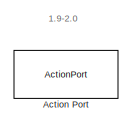
[diagram: If Action Subsystem6/If Action Subsystem2/If Action Subsystem9 - part 1/3, top center region]
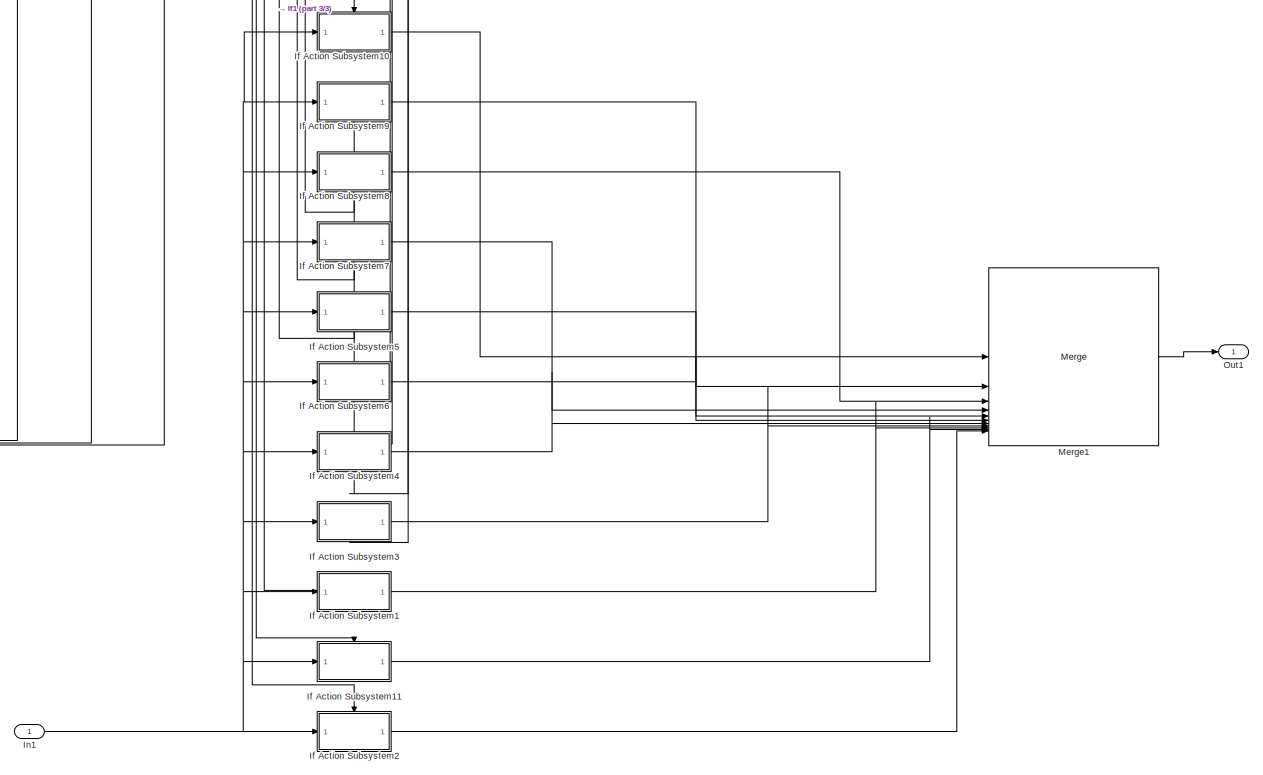
[diagram: If Action Subsystem6/If Action Subsystem2/If Action Subsystem9 - part 2/3, middle right region]
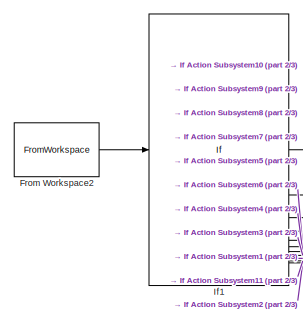
[diagram: If Action Subsystem6/If Action Subsystem2/If Action Subsystem9 - part 3/3, middle left region]
BLOCK [SubSystem] If Action Subsystem6/If Action Subsystem2/If Action Subsystem9
  TreatAsAtomicUnit = on
BLOCK [ActionPort] If Action Subsystem6/If Action Subsystem2/If Action Subsystem9/Action Port
  ActionPortLabel = if(u1 >= 1.895)
BLOCK [FromWorkspace] If Action Subsystem6/If Action Subsystem2/If Action Subsystem9/From Workspace2
  Interpolate = off
  OutputAfterFinalValue = Setting to zero
  VariableName = SimInputHR
BLOCK [SubSystem] If Action Subsystem6/If Action Subsystem2/If Action Subsystem9/If Action Subsystem1
  TreatAsAtomicUnit = on
BLOCK [ActionPort] If Action Subsystem6/If Action Subsystem2/If Action Subsystem9/If Action Subsystem1/Action Port
  ActionPortLabel = elseif( u1 >= 1.915)
BLOCK [Inport] If Action Subsystem6/If Action Subsystem2/If Action Subsystem9/If Action Subsystem1/In1
BLOCK [Lookup_n-D] If Action Subsystem6/If Action Subsystem2/If Action Subsystem9/If Action Subsystem1/LUT 1.92RR
  BreakpointsForDimension1 = [406.5296;515.3874;602.2187;693.974;785.1301;875.657;965.6925;1055.356;1144.737;1233.901;1322.895;1411.754;1500.506;1589.171;1677.763;1766.296;1854.779]
  InputPortMap = u0
  InternalRulePriority = Speed
  NumberOfTableDimensions = 1
  RndMeth = Simplest
  Table = [400;500;600;700;800;900;1000;1100;1200;1300;1400;1500;1600;1700;1800;1900;2000]
BLOCK [Outport] If Action Subsystem6/If Action Subsystem2/If Action Subsystem9/If Action Subsystem1/Out1
BLOCK [SubSystem] If Action Subsystem6/If Action Subsystem2/If Action Subsystem9/If Action Subsystem10
  TreatAsAtomicUnit = on
BLOCK [ActionPort] If Action Subsystem6/If Action Subsystem2/If Action Subsystem9/If Action Subsystem10/Action Port
  ActionPortLabel = if(u1 >= 1.995)
BLOCK [Inport] If Action Subsystem6/If Action Subsystem2/If Action Subsystem9/If Action Subsystem10/In1
BLOCK [Lookup_n-D] If Action Subsystem6/If Action Subsystem2/If Action Subsystem9/If Action Subsystem10/LUT 2.00RR
  BreakpointsForDimension1 = [405.7928;514.5959;601.3779;693.0068;783.9797;874.2777;964.0483;1053.419;1142.485;1231.316;1319.964;1408.466;1496.852;1585.143;1673.356;1761.504;1849.598]
  InputPortMap = u0
  InternalRulePriority = Speed
  NumberOfTableDimensions = 1
  RndMeth = Simplest
  Table = [400;500;600;700;800;900;1000;1100;1200;1300;1400;1500;1600;1700;1800;1900;2000]
BLOCK [Outport] If Action Subsystem6/If Action Subsystem2/If Action Subsystem9/If Action Subsystem10/Out1
BLOCK [SubSystem] If Action Subsystem6/If Action Subsystem2/If Action Subsystem9/If Action Subsystem11
  TreatAsAtomicUnit = on
BLOCK [ActionPort] If Action Subsystem6/If Action Subsystem2/If Action Subsystem9/If Action Subsystem11/Action Port
  ActionPortLabel = elseif( u1 >= 1.905)
BLOCK [Inport] If Action Subsystem6/If Action Subsystem2/If Action Subsystem9/If Action Subsystem11/In1
BLOCK [Lookup_n-D] If Action Subsystem6/If Action Subsystem2/If Action Subsystem9/If Action Subsystem11/LUT 1.91RR
  BreakpointsForDimension1 = [406.6252;515.4915;602.3308;694.1045;785.286;875.8444;965.9158;1055.619;1145.042;1234.25;1323.29;1412.197;1500.998;1589.711;1678.354;1766.938;1855.472]
  InputPortMap = u0
  InternalRulePriority = Speed
  NumberOfTableDimensions = 1
  RndMeth = Simplest
  Table = [400;500;600;700;800;900;1000;1100;1200;1300;1400;1500;1600;1700;1800;1900;2000]
BLOCK [Outport] If Action Subsystem6/If Action Subsystem2/If Action Subsystem9/If Action Subsystem11/Out1
BLOCK [SubSystem] If Action Subsystem6/If Action Subsystem2/If Action Subsystem9/If Action Subsystem2
  TreatAsAtomicUnit = on
BLOCK [ActionPort] If Action Subsystem6/If Action Subsystem2/If Action Subsystem9/If Action Subsystem2/Action Port
  ActionPortLabel = else
BLOCK [Inport] If Action Subsystem6/If Action Subsystem2/If Action Subsystem9/If Action Subsystem2/In1
BLOCK [Lookup_n-D] If Action Subsystem6/If Action Subsystem2/If Action Subsystem9/If Action Subsystem2/LUT 1.90RR
  BreakpointsForDimension1 = [406.7217;515.5969;602.4447;694.2371;785.4449;876.0353;966.1433;1055.886;1145.352;1234.605;1323.692;1412.647;1501.497;1590.261;1678.954;1767.589;1856.175]
  InputPortMap = u0
  InternalRulePriority = Speed
  NumberOfTableDimensions = 1
  RndMeth = Simplest
  Table = [400;500;600;700;800;900;1000;1100;1200;1300;1400;1500;1600;1700;1800;1900;2000]
BLOCK [Outport] If Action Subsystem6/If Action Subsystem2/If Action Subsystem9/If Action Subsystem2/Out1
BLOCK [SubSystem] If Action Subsystem6/If Action Subsystem2/If Action Subsystem9/If Action Subsystem3
  TreatAsAtomicUnit = on
BLOCK [ActionPort] If Action Subsystem6/If Action Subsystem2/If Action Subsystem9/If Action Subsystem3/Action Port
  ActionPortLabel = elseif( u1 >= 1.925)
BLOCK [Inport] If Action Subsystem6/If Action Subsystem2/If Action Subsystem9/If Action Subsystem3/In1
BLOCK [Lookup_n-D] If Action Subsystem6/If Action Subsystem2/If Action Subsystem9/If Action Subsystem3/LUT 1.93RR
  BreakpointsForDimension1 = [406.4347;515.2844;602.1081;693.8458;784.9769;875.4731;965.4734;1055.098;1144.438;1233.558;1322.506;1411.319;1500.023;1588.639;1677.182;1765.664;1854.096]
  InputPortMap = u0
  InternalRulePriority = Speed
  NumberOfTableDimensions = 1
  RndMeth = Simplest
  Table = [400;500;600;700;800;900;1000;1100;1200;1300;1400;1500;1600;1700;1800;1900;2000]
BLOCK [Outport] If Action Subsystem6/If Action Subsystem2/If Action Subsystem9/If Action Subsystem3/Out1
BLOCK [SubSystem] If Action Subsystem6/If Action Subsystem2/If Action Subsystem9/If Action Subsystem4
  TreatAsAtomicUnit = on
BLOCK [ActionPort] If Action Subsystem6/If Action Subsystem2/If Action Subsystem9/If Action Subsystem4/Action Port
  ActionPortLabel = elseif( u1 >= 1.935)
BLOCK [Inport] If Action Subsystem6/If Action Subsystem2/If Action Subsystem9/If Action Subsystem4/In1
BLOCK [Lookup_n-D] If Action Subsystem6/If Action Subsystem2/If Action Subsystem9/If Action Subsystem4/LUT 1.94RR
  BreakpointsForDimension1 = [406.3407;515.1827;601.9992;693.7198;784.8265;875.2926;965.2582;1054.845;1144.143;1233.22;1322.124;1410.891;1499.548;1588.115;1676.609;1765.042;1853.424]
  InputPortMap = u0
  InternalRulePriority = Speed
  NumberOfTableDimensions = 1
  RndMeth = Simplest
  Table = [400;500;600;700;800;900;1000;1100;1200;1300;1400;1500;1600;1700;1800;1900;2000]
BLOCK [Outport] If Action Subsystem6/If Action Subsystem2/If Action Subsystem9/If Action Subsystem4/Out1
BLOCK [SubSystem] If Action Subsystem6/If Action Subsystem2/If Action Subsystem9/If Action Subsystem5
  TreatAsAtomicUnit = on
BLOCK [ActionPort] If Action Subsystem6/If Action Subsystem2/If Action Subsystem9/If Action Subsystem5/Action Port
  ActionPortLabel = elseif( u1 >= 1.955)
BLOCK [Inport] If Action Subsystem6/If Action Subsystem2/If Action Subsystem9/If Action Subsystem5/In1
BLOCK [Lookup_n-D] If Action Subsystem6/If Action Subsystem2/If Action Subsystem9/If Action Subsystem5/LUT 1.96RR
  BreakpointsForDimension1 = [406.155;514.9826;601.7861;693.474;784.5339;874.9416;964.8398;1054.352;1143.571;1232.563;1321.379;1410.056;1498.62;1587.093;1675.491;1763.827;1852.11]
  InputPortMap = u0
  InternalRulePriority = Speed
  NumberOfTableDimensions = 1
  RndMeth = Simplest
  Table = [400;500;600;700;800;900;1000;1100;1200;1300;1400;1500;1600;1700;1800;1900;2000]
BLOCK [Outport] If Action Subsystem6/If Action Subsystem2/If Action Subsystem9/If Action Subsystem5/Out1
BLOCK [SubSystem] If Action Subsystem6/If Action Subsystem2/If Action Subsystem9/If Action Subsystem6
  TreatAsAtomicUnit = on
BLOCK [ActionPort] If Action Subsystem6/If Action Subsystem2/If Action Subsystem9/If Action Subsystem6/Action Port
  ActionPortLabel = elseif( u1 >= 1.945)
BLOCK [Inport] If Action Subsystem6/If Action Subsystem2/If Action Subsystem9/If Action Subsystem6/In1
BLOCK [Lookup_n-D] If Action Subsystem6/If Action Subsystem2/If Action Subsystem9/If Action Subsystem6/LUT 1.95RR
  BreakpointsForDimension1 = [406.2474;515.0821;601.8919;693.5958;784.6789;875.1155;965.0471;1054.596;1143.854;1232.889;1321.749;1410.47;1499.08;1587.6;1676.046;1764.43;1852.762]
  InputPortMap = u0
  InternalRulePriority = Speed
  NumberOfTableDimensions = 1
  RndMeth = Simplest
  Table = [400;500;600;700;800;900;1000;1100;1200;1300;1400;1500;1600;1700;1800;1900;2000]
BLOCK [Outport] If Action Subsystem6/If Action Subsystem2/If Action Subsystem9/If Action Subsystem6/Out1
BLOCK [SubSystem] If Action Subsystem6/If Action Subsystem2/If Action Subsystem9/If Action Subsystem7
  TreatAsAtomicUnit = on
BLOCK [ActionPort] If Action Subsystem6/If Action Subsystem2/If Action Subsystem9/If Action Subsystem7/Action Port
  ActionPortLabel = elseif( u1 >= 1.965)
BLOCK [Inport] If Action Subsystem6/If Action Subsystem2/If Action Subsystem9/If Action Subsystem7/In1
BLOCK [Lookup_n-D] If Action Subsystem6/If Action Subsystem2/If Action Subsystem9/If Action Subsystem7/LUT 1.97RR
  BreakpointsForDimension1 = [406.0633;514.8843;601.6818;693.3542;784.3915;874.7709;964.6363;1054.112;1143.292;1232.243;1321.016;1409.648;1498.167;1586.594;1674.945;1763.233;1851.468]
  InputPortMap = u0
  InternalRulePriority = Speed
  NumberOfTableDimensions = 1
  RndMeth = Simplest
  Table = [400;500;600;700;800;900;1000;1100;1200;1300;1400;1500;1600;1700;1800;1900;2000]
BLOCK [Outport] If Action Subsystem6/If Action Subsystem2/If Action Subsystem9/If Action Subsystem7/Out1
BLOCK [SubSystem] If Action Subsystem6/If Action Subsystem2/If Action Subsystem9/If Action Subsystem8
  TreatAsAtomicUnit = on
BLOCK [ActionPort] If Action Subsystem6/If Action Subsystem2/If Action Subsystem9/If Action Subsystem8/Action Port
  ActionPortLabel = elseif( u1 >= 1.975)
BLOCK [Inport] If Action Subsystem6/If Action Subsystem2/If Action Subsystem9/If Action Subsystem8/In1
BLOCK [Lookup_n-D] If Action Subsystem6/If Action Subsystem2/If Action Subsystem9/If Action Subsystem8/LUT 1.98RR
  BreakpointsForDimension1 = [405.9724;514.7871;601.579;693.2364;784.2517;874.6034;964.4366;1053.877;1143.018;1231.929;1320.659;1409.248;1497.722;1586.102;1674.407;1762.648;1850.835]
  InputPortMap = u0
  InternalRulePriority = Speed
  NumberOfTableDimensions = 1
  RndMeth = Simplest
  Table = [400;500;600;700;800;900;1000;1100;1200;1300;1400;1500;1600;1700;1800;1900;2000]
BLOCK [Outport] If Action Subsystem6/If Action Subsystem2/If Action Subsystem9/If Action Subsystem8/Out1
BLOCK [SubSystem] If Action Subsystem6/If Action Subsystem2/If Action Subsystem9/If Action Subsystem9
  TreatAsAtomicUnit = on
BLOCK [ActionPort] If Action Subsystem6/If Action Subsystem2/If Action Subsystem9/If Action Subsystem9/Action Port
  ActionPortLabel = elseif(u1 >= 1.985)
BLOCK [Inport] If Action Subsystem6/If Action Subsystem2/If Action Subsystem9/If Action Subsystem9/In1
BLOCK [Lookup_n-D] If Action Subsystem6/If Action Subsystem2/If Action Subsystem9/If Action Subsystem9/LUT 1.99RR
  BreakpointsForDimension1 = [405.8822;514.691;601.4777;693.1206;784.1145;874.4391;964.2406;1053.646;1142.749;1231.62;1320.309;1408.854;1497.283;1585.619;1673.877;1762.072;1850.212]
  InputPortMap = u0
  InternalRulePriority = Speed
  NumberOfTableDimensions = 1
  RndMeth = Simplest
  Table = [400;500;600;700;800;900;1000;1100;1200;1300;1400;1500;1600;1700;1800;1900;2000]
BLOCK [Outport] If Action Subsystem6/If Action Subsystem2/If Action Subsystem9/If Action Subsystem9/Out1
BLOCK [If] If Action Subsystem6/If Action Subsystem2/If Action Subsystem9/If1
  ElseIfExpressions = u1 >= 1.985, u1 >= 1.975, u1 >= 1.965, u1 >= 1.955, u1 >= 1.945, u1 >= 1.935, u1 >= 1.925, u1 >= 1.915, u1 >= 1.905
  IfExpression = u1 >= 1.995
BLOCK [Inport] If Action Subsystem6/If Action Subsystem2/If Action Subsystem9/In1
BLOCK [Merge] If Action Subsystem6/If Action Subsystem2/If Action Subsystem9/Merge1
  Inputs = 11
BLOCK [Outport] If Action Subsystem6/If Action Subsystem2/If Action Subsystem9/Out1
BLOCK [If] If Action Subsystem6/If Action Subsystem2/If1
  ElseIfExpressions = u1 >= 1.795, u1 >= 1.695, u1 >= 1.595
  IfExpression = u1 >= 1.895
BLOCK [Inport] If Action Subsystem6/If Action Subsystem2/In1
BLOCK [Merge] If Action Subsystem6/If Action Subsystem2/Merge1
  Inputs = 5
BLOCK [Outport] If Action Subsystem6/If Action Subsystem2/Out1
BLOCK [SubSystem] If Action Subsystem6/If Action Subsystem3
  TreatAsAtomicUnit = on
BLOCK [ActionPort] If Action Subsystem6/If Action Subsystem3/Action Port
  ActionPortLabel = else
BLOCK [FromWorkspace] If Action Subsystem6/If Action Subsystem3/From Workspace2
  Interpolate = off
  OutputAfterFinalValue = Setting to zero
  VariableName = SimInputHR
BLOCK [SubSystem] If Action Subsystem6/If Action Subsystem3/If Action Subsystem5
  TreatAsAtomicUnit = on
BLOCK [ActionPort] If Action Subsystem6/If Action Subsystem3/If Action Subsystem5/Action Port
  ActionPortLabel = elseif( u1 >= 0595)
BLOCK [FromWorkspace] If Action Subsystem6/If Action Subsystem3/If Action Subsystem5/From Workspace2
  Interpolate = off
  OutputAfterFinalValue = Setting to zero
  VariableName = SimInputHR
BLOCK [SubSystem] If Action Subsystem6/If Action Subsystem3/If Action Subsystem5/If Action Subsystem1
  TreatAsAtomicUnit = on
BLOCK [ActionPort] If Action Subsystem6/If Action Subsystem3/If Action Subsystem5/If Action Subsystem1/Action Port
  ActionPortLabel = elseif( u1 >= 0.615)
BLOCK [Inport] If Action Subsystem6/If Action Subsystem3/If Action Subsystem5/If Action Subsystem1/In1
BLOCK [Lookup_n-D] If Action Subsystem6/If Action Subsystem3/If Action Subsystem5/If Action Subsystem1/LUT 0.62RR
  BreakpointsForDimension1 = [438.722;572.1113;678.5441;793.302;908.486;1023.712;1138.943;1254.196;1369.5;1484.885;1600.378;1716.002;1831.78;1953.29;2063.927;2180.27;2296.852]
  InputPortMap = u0
  InternalRulePriority = Speed
  NumberOfTableDimensions = 1
  RndMeth = Simplest
  Table = [400;500;600;700;800;900;1000;1100;1200;1300;1400;1500;1600;1700;1800;1900;2000]
BLOCK [Outport] If Action Subsystem6/If Action Subsystem3/If Action Subsystem5/If Action Subsystem1/Out1
BLOCK [SubSystem] If Action Subsystem6/If Action Subsystem3/If Action Subsystem5/If Action Subsystem10
  TreatAsAtomicUnit = on
BLOCK [ActionPort] If Action Subsystem6/If Action Subsystem3/If Action Subsystem5/If Action Subsystem10/Action Port
  ActionPortLabel = elseif( u1 >= 0.605)
BLOCK [Inport] If Action Subsystem6/If Action Subsystem3/If Action Subsystem5/If Action Subsystem10/In1
BLOCK [Lookup_n-D] If Action Subsystem6/If Action Subsystem3/If Action Subsystem5/If Action Subsystem10/LUT 0.61RR
  BreakpointsForDimension1 = [439.4345;574.1828;681.5828;797.3525;913.5244;1029.724;1145.921;1262.143;1378.423;1494.796;1611.294;1727.943;1844.765;1964.383;2079.101;2196.579;2314.328]
  InputPortMap = u0
  InternalRulePriority = Speed
  NumberOfTableDimensions = 1
  RndMeth = Simplest
  Table = [400;500;600;700;800;900;1000;1100;1200;1300;1400;1500;1600;1700;1800;1900;2000]
BLOCK [Outport] If Action Subsystem6/If Action Subsystem3/If Action Subsystem5/If Action Subsystem10/Out1
BLOCK [SubSystem] If Action Subsystem6/If Action Subsystem3/If Action Subsystem5/If Action Subsystem2
  TreatAsAtomicUnit = on
BLOCK [ActionPort] If Action Subsystem6/If Action Subsystem3/If Action Subsystem5/If Action Subsystem2/Action Port
  ActionPortLabel = else
BLOCK [Inport] If Action Subsystem6/If Action Subsystem3/If Action Subsystem5/If Action Subsystem2/In1
BLOCK [Lookup_n-D] If Action Subsystem6/If Action Subsystem3/If Action Subsystem5/If Action Subsystem2/LUT 0.6RR
  BreakpointsForDimension1 = [440.1499;576.377;684.8248;801.6849;918.9187;1036.162;1153.398;1270.658;1387.986;1505.422;1623;1740.753;1858.703;1977.639;2095.403;2214.115;2333.133]
  InputPortMap = u0
  InternalRulePriority = Speed
  NumberOfTableDimensions = 1
  RndMeth = Simplest
  Table = [400;500;600;700;800;900;1000;1100;1200;1300;1400;1500;1600;1700;1800;1900;2000]
BLOCK [Outport] If Action Subsystem6/If Action Subsystem3/If Action Subsystem5/If Action Subsystem2/Out1
BLOCK [SubSystem] If Action Subsystem6/If Action Subsystem3/If Action Subsystem5/If Action Subsystem3
  TreatAsAtomicUnit = on
BLOCK [ActionPort] If Action Subsystem6/If Action Subsystem3/If Action Subsystem5/If Action Subsystem3/Action Port
  ActionPortLabel = elseif( u1 >= 0.625)
BLOCK [Inport] If Action Subsystem6/If Action Subsystem3/If Action Subsystem5/If Action Subsystem3/In1
BLOCK [Lookup_n-D] If Action Subsystem6/If Action Subsystem3/If Action Subsystem5/If Action Subsystem3/LUT 0.63RR
  BreakpointsForDimension1 = [438.0159;570.1532;675.6911;789.5076;903.7698;1018.087;1132.413;1246.761;1361.153;1475.616;1590.172;1704.842;1819.647;1934.598;2049.766;2165.059;2280.564]
  InputPortMap = u0
  InternalRulePriority = Speed
  NumberOfTableDimensions = 1
  RndMeth = Simplest
  Table = [400;500;600;700;800;900;1000;1100;1200;1300;1400;1500;1600;1700;1800;1900;2000]
BLOCK [Outport] If Action Subsystem6/If Action Subsystem3/If Action Subsystem5/If Action Subsystem3/Out1
BLOCK [SubSystem] If Action Subsystem6/If Action Subsystem3/If Action Subsystem5/If Action Subsystem4
  TreatAsAtomicUnit = on
BLOCK [ActionPort] If Action Subsystem6/If Action Subsystem3/If Action Subsystem5/If Action Subsystem4/Action Port
  ActionPortLabel = elseif( u1 >= 0.635)
BLOCK [Inport] If Action Subsystem6/If Action Subsystem3/If Action Subsystem5/If Action Subsystem4/In1
BLOCK [Lookup_n-D] If Action Subsystem6/If Action Subsystem3/If Action Subsystem5/If Action Subsystem4/LUT 0.64RR
  BreakpointsForDimension1 = [437.3192;568.3002;673.0078;785.946;899.3459;1012.811;1126.29;1239.789;1353.327;1466.926;1580.606;1694.386;1808.282;1922.31;2036.517;2150.833;2265.341]
  InputPortMap = u0
  InternalRulePriority = Speed
  NumberOfTableDimensions = 1
  RndMeth = Simplest
  Table = [400;500;600;700;800;900;1000;1100;1200;1300;1400;1500;1600;1700;1800;1900;2000]
BLOCK [Outport] If Action Subsystem6/If Action Subsystem3/If Action Subsystem5/If Action Subsystem4/Out1
BLOCK [SubSystem] If Action Subsystem6/If Action Subsystem3/If Action Subsystem5/If Action Subsystem5
  TreatAsAtomicUnit = on
BLOCK [ActionPort] If Action Subsystem6/If Action Subsystem3/If Action Subsystem5/If Action Subsystem5/Action Port
  ActionPortLabel = elseif( u1 >= 0.655)
BLOCK [Inport] If Action Subsystem6/If Action Subsystem3/If Action Subsystem5/If Action Subsystem5/In1
BLOCK [Lookup_n-D] If Action Subsystem6/If Action Subsystem3/If Action Subsystem5/If Action Subsystem5/LUT 0.66RR
  BreakpointsForDimension1 = [435.9618;564.8797;668.0946;779.4416;891.2726;1003.184;1115.116;1227.065;1339.045;1451.07;1563.155;1675.316;1787.566;1899.916;2016.737;2124.962;2237.676]
  InputPortMap = u0
  InternalRulePriority = Speed
  NumberOfTableDimensions = 1
  RndMeth = Simplest
  Table = [400;500;600;700;800;900;1000;1100;1200;1300;1400;1500;1600;1700;1800;1900;2000]
BLOCK [Outport] If Action Subsystem6/If Action Subsystem3/If Action Subsystem5/If Action Subsystem5/Out1
BLOCK [SubSystem] If Action Subsystem6/If Action Subsystem3/If Action Subsystem5/If Action Subsystem6
  TreatAsAtomicUnit = on
BLOCK [ActionPort] If Action Subsystem6/If Action Subsystem3/If Action Subsystem5/If Action Subsystem6/Action Port
  ActionPortLabel = elseif( u1 >= 0.645)
BLOCK [Inport] If Action Subsystem6/If Action Subsystem3/If Action Subsystem5/If Action Subsystem6/In1
BLOCK [Lookup_n-D] If Action Subsystem6/If Action Subsystem3/If Action Subsystem5/If Action Subsystem6/LUT 0.65RR
  BreakpointsForDimension1 = [436.6339;566.5447;670.4799;782.5968;895.1881;1007.853;1120.535;1233.237;1345.972;1458.76;1571.618;1684.564;1797.611;1910.773;2024.776;2137.496;2251.076]
  InputPortMap = u0
  InternalRulePriority = Speed
  NumberOfTableDimensions = 1
  RndMeth = Simplest
  Table = [400;500;600;700;800;900;1000;1100;1200;1300;1400;1500;1600;1700;1800;1900;2000]
BLOCK [Outport] If Action Subsystem6/If Action Subsystem3/If Action Subsystem5/If Action Subsystem6/Out1
BLOCK [SubSystem] If Action Subsystem6/If Action Subsystem3/If Action Subsystem5/If Action Subsystem7
  TreatAsAtomicUnit = on
BLOCK [ActionPort] If Action Subsystem6/If Action Subsystem3/If Action Subsystem5/If Action Subsystem7/Action Port
  ActionPortLabel = elseif( u1 >= 0.665)
BLOCK [Inport] If Action Subsystem6/If Action Subsystem3/If Action Subsystem5/If Action Subsystem7/In1
BLOCK [Lookup_n-D] If Action Subsystem6/If Action Subsystem3/If Action Subsystem5/If Action Subsystem7/LUT 0.67RR
  BreakpointsForDimension1 = [435.304;563.2986;665.8403;776.4638;887.5785;998.7794;1110.002;1221.241;1332.507;1443.812;1555.169;1666.591;1778.09;1889.676;2001.357;2113.157;2225.059]
  InputPortMap = u0
  InternalRulePriority = Speed
  NumberOfTableDimensions = 1
  RndMeth = Simplest
  Table = [400;500;600;700;800;900;1000;1100;1200;1300;1400;1500;1600;1700;1800;1900;2000]
BLOCK [Outport] If Action Subsystem6/If Action Subsystem3/If Action Subsystem5/If Action Subsystem7/Out1
BLOCK [SubSystem] If Action Subsystem6/If Action Subsystem3/If Action Subsystem5/If Action Subsystem8
  TreatAsAtomicUnit = on
BLOCK [ActionPort] If Action Subsystem6/If Action Subsystem3/If Action Subsystem5/If Action Subsystem8/Action Port
  ActionPortLabel = elseif(u1 >= 0.675)
BLOCK [Inport] If Action Subsystem6/If Action Subsystem3/If Action Subsystem5/If Action Subsystem8/In1
BLOCK [Lookup_n-D] If Action Subsystem6/If Action Subsystem3/If Action Subsystem5/If Action Subsystem8/LUT 0.68RR
  BreakpointsForDimension1 = [434.6614;561.7957;663.7066;773.6489;884.0872;994.6157;1105.167;1215.735;1326.324;1436.948;1547.616;1658.341;1769.132;1879.998;1990.944;2102.023;2213.152]
  InputPortMap = u0
  InternalRulePriority = Speed
  NumberOfTableDimensions = 1
  RndMeth = Simplest
  Table = [400;500;600;700;800;900;1000;1100;1200;1300;1400;1500;1600;1700;1800;1900;2000]
BLOCK [Outport] If Action Subsystem6/If Action Subsystem3/If Action Subsystem5/If Action Subsystem8/Out1
BLOCK [SubSystem] If Action Subsystem6/If Action Subsystem3/If Action Subsystem5/If Action Subsystem9
  TreatAsAtomicUnit = on
BLOCK [ActionPort] If Action Subsystem6/If Action Subsystem3/If Action Subsystem5/If Action Subsystem9/Action Port
  ActionPortLabel = if(u1 >= 0.685)
BLOCK [Inport] If Action Subsystem6/If Action Subsystem3/If Action Subsystem5/If Action Subsystem9/In1
BLOCK [Lookup_n-D] If Action Subsystem6/If Action Subsystem3/If Action Subsystem5/If Action Subsystem9/LUT 0.69RR
  BreakpointsForDimension1 = [434.0345;560.3654;661.6841;770.9834;880.7817;990.673;1100.588;1210.518;1320.467;1430.444;1540.461;1650.525;1760.647;1870.833;1981.086;2091.547;2201.893]
  InputPortMap = u0
  InternalRulePriority = Speed
  NumberOfTableDimensions = 1
  RndMeth = Simplest
  Table = [400;500;600;700;800;900;1000;1100;1200;1300;1400;1500;1600;1700;1800;1900;2000]
BLOCK [Outport] If Action Subsystem6/If Action Subsystem3/If Action Subsystem5/If Action Subsystem9/Out1
BLOCK [If] If Action Subsystem6/If Action Subsystem3/If Action Subsystem5/If1
  ElseIfExpressions = u1 >= 0.675, u1 >= 0.665, u1 >= 0.655, u1 >= 0.645, u1 >= 0.635, u1 >= 0.625, u1 >= 0.615, u1 >= 0.605
  IfExpression = u1 >= 0.685
BLOCK [Inport] If Action Subsystem6/If Action Subsystem3/If Action Subsystem5/In1
BLOCK [Merge] If Action Subsystem6/If Action Subsystem3/If Action Subsystem5/Merge1
  Inputs = 10
BLOCK [Outport] If Action Subsystem6/If Action Subsystem3/If Action Subsystem5/Out1
BLOCK [SubSystem] If Action Subsystem6/If Action Subsystem3/If Action Subsystem6
  TreatAsAtomicUnit = on
BLOCK [ActionPort] If Action Subsystem6/If Action Subsystem3/If Action Subsystem6/Action Port
  ActionPortLabel = else
BLOCK [FromWorkspace] If Action Subsystem6/If Action Subsystem3/If Action Subsystem6/From Workspace2
  Interpolate = off
  OutputAfterFinalValue = Setting to zero
  VariableName = SimInputHR
BLOCK [SubSystem] If Action Subsystem6/If Action Subsystem3/If Action Subsystem6/If Action Subsystem1
  TreatAsAtomicUnit = on
BLOCK [ActionPort] If Action Subsystem6/If Action Subsystem3/If Action Subsystem6/If Action Subsystem1/Action Port
  ActionPortLabel = elseif( u1 >= 0.515)
BLOCK [Inport] If Action Subsystem6/If Action Subsystem3/If Action Subsystem6/If Action Subsystem1/In1
BLOCK [Lookup_n-D] If Action Subsystem6/If Action Subsystem3/If Action Subsystem6/If Action Subsystem1/LUT 0.52RR
  BreakpointsForDimension1 = [445.1113;599.7375;721.0313;850.9305;980.7175;1110.246;1239.681;1369.2;1498.964;1629.123;1759.858;1883.321;2020.935;2154.24;2287.715;2421.934;2557.024]
  InputPortMap = u0
  InternalRulePriority = Speed
  NumberOfTableDimensions = 1
  RndMeth = Simplest
  Table = [400;500;600;700;800;900;1000;1100;1200;1300;1400;1500;1600;1700;1800;1900;2000]
BLOCK [Outport] If Action Subsystem6/If Action Subsystem3/If Action Subsystem6/If Action Subsystem1/Out1
BLOCK [SubSystem] If Action Subsystem6/If Action Subsystem3/If Action Subsystem6/If Action Subsystem10
  TreatAsAtomicUnit = on
BLOCK [ActionPort] If Action Subsystem6/If Action Subsystem3/If Action Subsystem6/If Action Subsystem10/Action Port
  ActionPortLabel = elseif( u1 >= 0.505)
BLOCK [Inport] If Action Subsystem6/If Action Subsystem3/If Action Subsystem6/If Action Subsystem10/In1
BLOCK [Lookup_n-D] If Action Subsystem6/If Action Subsystem3/If Action Subsystem6/If Action Subsystem10/LUT 0.51RR
  BreakpointsForDimension1 = [445.4412;603.601;727.3471;859.6931;991.8205;1123.636;1255.346;1387.165;1519.283;1651.888;1785.252;1910.351;2050.932;2187.048;2323.471;2460.747;2599.025]
  InputPortMap = u0
  InternalRulePriority = Speed
  NumberOfTableDimensions = 1
  RndMeth = Simplest
  Table = [400;500;600;700;800;900;1000;1100;1200;1300;1400;1500;1600;1700;1800;1900;2000]
BLOCK [Outport] If Action Subsystem6/If Action Subsystem3/If Action Subsystem6/If Action Subsystem10/Out1
BLOCK [SubSystem] If Action Subsystem6/If Action Subsystem3/If Action Subsystem6/If Action Subsystem2
  TreatAsAtomicUnit = on
BLOCK [ActionPort] If Action Subsystem6/If Action Subsystem3/If Action Subsystem6/If Action Subsystem2/Action Port
  ActionPortLabel = else
BLOCK [Inport] If Action Subsystem6/If Action Subsystem3/If Action Subsystem6/If Action Subsystem2/In1
BLOCK [Lookup_n-D] If Action Subsystem6/If Action Subsystem3/If Action Subsystem6/If Action Subsystem2/LUT 0.50RR
  BreakpointsForDimension1 = [445.6331;607.7323;734.2125;869.278;1004.005;1138.361;1272.605;1406.989;1541.744;1677.113;1813.535;1940.935;2084.101;2223.397;2363.138;2503.862;2645.738]
  InputPortMap = u0
  InternalRulePriority = Speed
  NumberOfTableDimensions = 1
  RndMeth = Simplest
  Table = [400;500;600;700;800;900;1000;1100;1200;1300;1400;1500;1600;1700;1800;1900;2000]
BLOCK [Outport] If Action Subsystem6/If Action Subsystem3/If Action Subsystem6/If Action Subsystem2/Out1
BLOCK [SubSystem] If Action Subsystem6/If Action Subsystem3/If Action Subsystem6/If Action Subsystem3
  TreatAsAtomicUnit = on
BLOCK [ActionPort] If Action Subsystem6/If Action Subsystem3/If Action Subsystem6/If Action Subsystem3/Action Port
  ActionPortLabel = elseif( u1 >= 0.525)
BLOCK [Inport] If Action Subsystem6/If Action Subsystem3/If Action Subsystem6/If Action Subsystem3/In1
BLOCK [Lookup_n-D] If Action Subsystem6/If Action Subsystem3/If Action Subsystem6/If Action Subsystem3/LUT 0.53RR
  BreakpointsForDimension1 = [444.673;596.1225;715.2109;842.9015;970.5739;1098.036;1225.417;1352.865;1480.516;1608.493;1736.925;1859.803;1993.704;2124.532;2255.378;2386.874;2519.13]
  InputPortMap = u0
  InternalRulePriority = Speed
  NumberOfTableDimensions = 1
  RndMeth = Simplest
  Table = [400;500;600;700;800;900;1000;1100;1200;1300;1400;1500;1600;1700;1800;1900;2000]
BLOCK [Outport] If Action Subsystem6/If Action Subsystem3/If Action Subsystem6/If Action Subsystem3/Out1
BLOCK [SubSystem] If Action Subsystem6/If Action Subsystem3/If Action Subsystem6/If Action Subsystem4
  TreatAsAtomicUnit = on
BLOCK [ActionPort] If Action Subsystem6/If Action Subsystem3/If Action Subsystem6/If Action Subsystem4/Action Port
  ActionPortLabel = elseif( u1 >= 0.535)
BLOCK [Inport] If Action Subsystem6/If Action Subsystem3/If Action Subsystem6/If Action Subsystem4/In1
BLOCK [Lookup_n-D] If Action Subsystem6/If Action Subsystem3/If Action Subsystem6/If Action Subsystem4/LUT 0.54RR
  BreakpointsForDimension1 = [444.1506;592.7379;709.8371;835.5278;961.2828;1086.872;1212.391;1337.966;1463.71;1589.726;1716.113;1843.021;1968.886;2097.541;2226.033;2355.097;2484.824]
  InputPortMap = u0
  InternalRulePriority = Speed
  NumberOfTableDimensions = 1
  RndMeth = Simplest
  Table = [400;500;600;700;800;900;1000;1100;1200;1300;1400;1500;1600;1700;1800;1900;2000]
BLOCK [Outport] If Action Subsystem6/If Action Subsystem3/If Action Subsystem6/If Action Subsystem4/Out1
BLOCK [SubSystem] If Action Subsystem6/If Action Subsystem3/If Action Subsystem6/If Action Subsystem5
  TreatAsAtomicUnit = on
BLOCK [ActionPort] If Action Subsystem6/If Action Subsystem3/If Action Subsystem6/If Action Subsystem5/Action Port
  ActionPortLabel = elseif( u1 >= 0.555)
BLOCK [Inport] If Action Subsystem6/If Action Subsystem3/If Action Subsystem6/If Action Subsystem5/In1
BLOCK [Lookup_n-D] If Action Subsystem6/If Action Subsystem3/If Action Subsystem6/If Action Subsystem5/LUT 0.56RR
  BreakpointsForDimension1 = [442.93;586.5915;700.259;822.477;944.8941;1067.219;1189.499;1311.817;1434.257;1556.893;1679.789;1803.011;1926.09;2050.441;2174.903;2299.818;2425.243]
  InputPortMap = u0
  InternalRulePriority = Speed
  NumberOfTableDimensions = 1
  RndMeth = Simplest
  Table = [400;500;600;700;800;900;1000;1100;1200;1300;1400;1500;1600;1700;1800;1900;2000]
BLOCK [Outport] If Action Subsystem6/If Action Subsystem3/If Action Subsystem6/If Action Subsystem5/Out1
BLOCK [SubSystem] If Action Subsystem6/If Action Subsystem3/If Action Subsystem6/If Action Subsystem6
  TreatAsAtomicUnit = on
BLOCK [ActionPort] If Action Subsystem6/If Action Subsystem3/If Action Subsystem6/If Action Subsystem6/Action Port
  ActionPortLabel = elseif( u1 >= 0.545)
BLOCK [Inport] If Action Subsystem6/If Action Subsystem3/If Action Subsystem6/If Action Subsystem6/In1
BLOCK [Lookup_n-D] If Action Subsystem6/If Action Subsystem3/If Action Subsystem6/If Action Subsystem6/LUT 0.55RR
  BreakpointsForDimension1 = [443.5641;589.5663;704.8662;828.74;952.7502;1076.634;1200.46;1324.332;1448.347;1572.591;1697.145;1822.099;1946.282;2072.939;2199.314;2326.195;2453.657]
  InputPortMap = u0
  InternalRulePriority = Speed
  NumberOfTableDimensions = 1
  RndMeth = Simplest
  Table = [400;500;600;700;800;900;1000;1100;1200;1300;1400;1500;1600;1700;1800;1900;2000]
BLOCK [Outport] If Action Subsystem6/If Action Subsystem3/If Action Subsystem6/If Action Subsystem6/Out1
BLOCK [SubSystem] If Action Subsystem6/If Action Subsystem3/If Action Subsystem6/If Action Subsystem7
  TreatAsAtomicUnit = on
BLOCK [ActionPort] If Action Subsystem6/If Action Subsystem3/If Action Subsystem6/If Action Subsystem7/Action Port
  ActionPortLabel = elseif( u1 >= 0.565)
BLOCK [Inport] If Action Subsystem6/If Action Subsystem3/If Action Subsystem6/If Action Subsystem7/In1
BLOCK [Lookup_n-D] If Action Subsystem6/If Action Subsystem3/If Action Subsystem6/If Action Subsystem7/LUT 0.57RR
  BreakpointsForDimension1 = [442.2616;583.7986;695.9807;816.6849;937.6423;1058.539;1179.4;1300.295;1421.295;1542.461;1663.851;1785.513;1908.548;2029.804;2152.527;2275.666;2399.251]
  InputPortMap = u0
  InternalRulePriority = Speed
  NumberOfTableDimensions = 1
  RndMeth = Simplest
  Table = [400;500;600;700;800;900;1000;1100;1200;1300;1400;1500;1600;1700;1800;1900;2000]
BLOCK [Outport] If Action Subsystem6/If Action Subsystem3/If Action Subsystem6/If Action Subsystem7/Out1
BLOCK [SubSystem] If Action Subsystem6/If Action Subsystem3/If Action Subsystem6/If Action Subsystem8
  TreatAsAtomicUnit = on
BLOCK [ActionPort] If Action Subsystem6/If Action Subsystem3/If Action Subsystem6/If Action Subsystem8/Action Port
  ActionPortLabel = elseif(u1 >= 0.575)
BLOCK [Inport] If Action Subsystem6/If Action Subsystem3/If Action Subsystem6/If Action Subsystem8/In1
BLOCK [Lookup_n-D] If Action Subsystem6/If Action Subsystem3/If Action Subsystem6/If Action Subsystem8/LUT 0.58RR
  BreakpointsForDimension1 = [441.5699;581.1735;692.0003;811.3161;930.9317;1050.513;1170.07;1289.657;1409.333;1529.153;1649.165;1769.409;1889.917;2010.824;2131.95;2253.476;2375.394]
  InputPortMap = u0
  InternalRulePriority = Speed
  NumberOfTableDimensions = 1
  RndMeth = Simplest
  Table = [400;500;600;700;800;900;1000;1100;1200;1300;1400;1500;1600;1700;1800;1900;2000]
BLOCK [Outport] If Action Subsystem6/If Action Subsystem3/If Action Subsystem6/If Action Subsystem8/Out1
BLOCK [SubSystem] If Action Subsystem6/If Action Subsystem3/If Action Subsystem6/If Action Subsystem9
  TreatAsAtomicUnit = on
BLOCK [ActionPort] If Action Subsystem6/If Action Subsystem3/If Action Subsystem6/If Action Subsystem9/Action Port
  ActionPortLabel = if(u1 >= 0.585)
BLOCK [Inport] If Action Subsystem6/If Action Subsystem3/If Action Subsystem6/If Action Subsystem9/In1
BLOCK [Lookup_n-D] If Action Subsystem6/If Action Subsystem3/If Action Subsystem6/If Action Subsystem9/LUT 0.59RR
  BreakpointsForDimension1 = [440.8636;578.7036;688.2899;806.3285;924.7068;1043.075;1161.426;1279.805;1398.262;1516.842;1635.588;1754.535;1873.709;1993.361;2112.968;2233.024;2353.426]
  InputPortMap = u0
  InternalRulePriority = Speed
  NumberOfTableDimensions = 1
  RndMeth = Simplest
  Table = [400;500;600;700;800;900;1000;1100;1200;1300;1400;1500;1600;1700;1800;1900;2000]
BLOCK [Outport] If Action Subsystem6/If Action Subsystem3/If Action Subsystem6/If Action Subsystem9/Out1
BLOCK [If] If Action Subsystem6/If Action Subsystem3/If Action Subsystem6/If1
  ElseIfExpressions = u1 >= 0.575, u1 >= 0.565, u1 >= 0.555, u1 >= 0.545, u1 >= 0.535, u1 >= 0.525, u1 >= 0.515, u1 >= 0.505
  IfExpression = u1 >= 0.585
BLOCK [Inport] If Action Subsystem6/If Action Subsystem3/If Action Subsystem6/In1
BLOCK [Merge] If Action Subsystem6/If Action Subsystem3/If Action Subsystem6/Merge1
  Inputs = 10
BLOCK [Outport] If Action Subsystem6/If Action Subsystem3/If Action Subsystem6/Out1
BLOCK [SubSystem] If Action Subsystem6/If Action Subsystem3/If Action Subsystem7
  TreatAsAtomicUnit = on
BLOCK [ActionPort] If Action Subsystem6/If Action Subsystem3/If Action Subsystem7/Action Port
  ActionPortLabel = elseif( u1 >= 0.695)
BLOCK [FromWorkspace] If Action Subsystem6/If Action Subsystem3/If Action Subsystem7/From Workspace2
  Interpolate = off
  OutputAfterFinalValue = Setting to zero
  VariableName = SimInputHR
BLOCK [SubSystem] If Action Subsystem6/If Action Subsystem3/If Action Subsystem7/If Action Subsystem1
  TreatAsAtomicUnit = on
BLOCK [ActionPort] If Action Subsystem6/If Action Subsystem3/If Action Subsystem7/If Action Subsystem1/Action Port
  ActionPortLabel = elseif( u1 >= 0.715)
BLOCK [Inport] If Action Subsystem6/If Action Subsystem3/If Action Subsystem7/If Action Subsystem1/In1
BLOCK [Lookup_n-D] If Action Subsystem6/If Action Subsystem3/If Action Subsystem7/If Action Subsystem1/LUT 0.72RR
  BreakpointsForDimension1 = [432.2507;556.4627;656.2023;763.7709;871.8375;979.9997;1088.185;1196.381;1304.587;1412.81;1521.056;1629.333;1737.644;1845.996;1954.387;2062.767;2171.501]
  InputPortMap = u0
  InternalRulePriority = Speed
  NumberOfTableDimensions = 1
  RndMeth = Simplest
  Table = [400;500;600;700;800;900;1000;1100;1200;1300;1400;1500;1600;1700;1800;1900;2000]
BLOCK [Outport] If Action Subsystem6/If Action Subsystem3/If Action Subsystem7/If Action Subsystem1/Out1
BLOCK [SubSystem] If Action Subsystem6/If Action Subsystem3/If Action Subsystem7/If Action Subsystem10
  TreatAsAtomicUnit = on
BLOCK [ActionPort] If Action Subsystem6/If Action Subsystem3/If Action Subsystem7/If Action Subsystem10/Action Port
  ActionPortLabel = elseif( u1 >= 0.705)
BLOCK [Inport] If Action Subsystem6/If Action Subsystem3/If Action Subsystem7/If Action Subsystem10/In1
BLOCK [Lookup_n-D] If Action Subsystem6/If Action Subsystem3/If Action Subsystem7/If Action Subsystem10/LUT 0.71RR
  BreakpointsForDimension1 = [432.8291;557.7033;657.9393;766.0546;874.6697;983.3804;1092.115;1200.861;1309.621;1418.401;1527.209;1636.052;1744.937;1853.869;1962.848;2078.251;2181.107]
  InputPortMap = u0
  InternalRulePriority = Speed
  NumberOfTableDimensions = 1
  RndMeth = Simplest
  Table = [400;500;600;700;800;900;1000;1100;1200;1300;1400;1500;1600;1700;1800;1900;2000]
BLOCK [Outport] If Action Subsystem6/If Action Subsystem3/If Action Subsystem7/If Action Subsystem10/Out1
BLOCK [SubSystem] If Action Subsystem6/If Action Subsystem3/If Action Subsystem7/If Action Subsystem2
  TreatAsAtomicUnit = on
BLOCK [ActionPort] If Action Subsystem6/If Action Subsystem3/If Action Subsystem7/If Action Subsystem2/Action Port
  ActionPortLabel = else
BLOCK [Inport] If Action Subsystem6/If Action Subsystem3/If Action Subsystem7/If Action Subsystem2/In1
BLOCK [Lookup_n-D] If Action Subsystem6/If Action Subsystem3/If Action Subsystem7/If Action Subsystem2/LUT 0.70RR
  BreakpointsForDimension1 = [433.4237;559.0028;659.7643;768.4556;877.647;986.9333;1096.244;1205.567;1314.907;1424.271;1533.668;1643.106;1752.594;1862.136;1971.735;2082.956;2191.227]
  InputPortMap = u0
  InternalRulePriority = Speed
  NumberOfTableDimensions = 1
  RndMeth = Simplest
  Table = [400;500;600;700;800;900;1000;1100;1200;1300;1400;1500;1600;1700;1800;1900;2000]
BLOCK [Outport] If Action Subsystem6/If Action Subsystem3/If Action Subsystem7/If Action Subsystem2/Out1
BLOCK [SubSystem] If Action Subsystem6/If Action Subsystem3/If Action Subsystem7/If Action Subsystem3
  TreatAsAtomicUnit = on
BLOCK [ActionPort] If Action Subsystem6/If Action Subsystem3/If Action Subsystem7/If Action Subsystem3/Action Port
  ActionPortLabel = elseif( u1 >= 0.725)
BLOCK [Inport] If Action Subsystem6/If Action Subsystem3/If Action Subsystem7/If Action Subsystem3/In1
BLOCK [Lookup_n-D] If Action Subsystem6/If Action Subsystem3/If Action Subsystem7/If Action Subsystem3/LUT 0.73RR
  BreakpointsForDimension1 = [431.6883;555.2771;654.5469;761.5957;869.1394;976.7781;1084.439;1192.108;1299.786;1407.477;1515.187;1622.922;1730.688;1838.487;1946.319;2054.15;2162.405]
  InputPortMap = u0
  InternalRulePriority = Speed
  NumberOfTableDimensions = 1
  RndMeth = Simplest
  Table = [400;500;600;700;800;900;1000;1100;1200;1300;1400;1500;1600;1700;1800;1900;2000]
BLOCK [Outport] If Action Subsystem6/If Action Subsystem3/If Action Subsystem7/If Action Subsystem3/Out1
BLOCK [SubSystem] If Action Subsystem6/If Action Subsystem3/If Action Subsystem7/If Action Subsystem4
  TreatAsAtomicUnit = on
BLOCK [ActionPort] If Action Subsystem6/If Action Subsystem3/If Action Subsystem7/If Action Subsystem4/Action Port
  ActionPortLabel = elseif( u1 >= 0.735)
BLOCK [Inport] If Action Subsystem6/If Action Subsystem3/If Action Subsystem7/If Action Subsystem4/In1
BLOCK [Lookup_n-D] If Action Subsystem6/If Action Subsystem3/If Action Subsystem7/If Action Subsystem4/LUT 0.74RR
  BreakpointsForDimension1 = [431.1417;554.1429;652.9672;759.521;866.5657;973.7038;1080.863;1188.029;1295.2;1402.382;1509.58;1616.798;1724.041;1831.313;1938.612;2045.914;2153.993]
  InputPortMap = u0
  InternalRulePriority = Speed
  NumberOfTableDimensions = 1
  RndMeth = Simplest
  Table = [400;500;600;700;800;900;1000;1100;1200;1300;1400;1500;1600;1700;1800;1900;2000]
BLOCK [Outport] If Action Subsystem6/If Action Subsystem3/If Action Subsystem7/If Action Subsystem4/Out1
BLOCK [SubSystem] If Action Subsystem6/If Action Subsystem3/If Action Subsystem7/If Action Subsystem5
  TreatAsAtomicUnit = on
BLOCK [ActionPort] If Action Subsystem6/If Action Subsystem3/If Action Subsystem7/If Action Subsystem5/Action Port
  ActionPortLabel = elseif( u1 >= 0.755)
BLOCK [Inport] If Action Subsystem6/If Action Subsystem3/If Action Subsystem7/If Action Subsystem5/In1
BLOCK [Lookup_n-D] If Action Subsystem6/If Action Subsystem3/If Action Subsystem7/If Action Subsystem5/LUT 0.76RR
  BreakpointsForDimension1 = [430.0946;552.0159;650.0146;755.6452;861.756;967.9556;1074.173;1180.392;1286.614;1392.84;1499.075;1605.324;1711.589;1817.874;1924.178;2030.485;2145.708]
  InputPortMap = u0
  InternalRulePriority = Speed
  NumberOfTableDimensions = 1
  RndMeth = Simplest
  Table = [400;500;600;700;800;900;1000;1100;1200;1300;1400;1500;1600;1700;1800;1900;2000]
BLOCK [Outport] If Action Subsystem6/If Action Subsystem3/If Action Subsystem7/If Action Subsystem5/Out1
BLOCK [SubSystem] If Action Subsystem6/If Action Subsystem3/If Action Subsystem7/If Action Subsystem6
  TreatAsAtomicUnit = on
BLOCK [ActionPort] If Action Subsystem6/If Action Subsystem3/If Action Subsystem7/If Action Subsystem6/Action Port
  ActionPortLabel = elseif( u1 >= 0.745)
BLOCK [Inport] If Action Subsystem6/If Action Subsystem3/If Action Subsystem7/If Action Subsystem6/In1
BLOCK [Lookup_n-D] If Action Subsystem6/If Action Subsystem3/If Action Subsystem7/If Action Subsystem6/LUT 0.75RR
  BreakpointsForDimension1 = [430.6106;553.0569;651.4581;757.5397;864.1072;970.7662;1077.445;1184.127;1290.814;1397.508;1504.215;1610.938;1717.682;1824.45;1931.24;2038.034;2148.098]
  InputPortMap = u0
  InternalRulePriority = Speed
  NumberOfTableDimensions = 1
  RndMeth = Simplest
  Table = [400;500;600;700;800;900;1000;1100;1200;1300;1400;1500;1600;1700;1800;1900;2000]
BLOCK [Outport] If Action Subsystem6/If Action Subsystem3/If Action Subsystem7/If Action Subsystem6/Out1
BLOCK [SubSystem] If Action Subsystem6/If Action Subsystem3/If Action Subsystem7/If Action Subsystem7
  TreatAsAtomicUnit = on
BLOCK [ActionPort] If Action Subsystem6/If Action Subsystem3/If Action Subsystem7/If Action Subsystem7/Action Port
  ActionPortLabel = elseif( u1 >= 0.765)
BLOCK [Inport] If Action Subsystem6/If Action Subsystem3/If Action Subsystem7/If Action Subsystem7/In1
BLOCK [Lookup_n-D] If Action Subsystem6/If Action Subsystem3/If Action Subsystem7/If Action Subsystem7/LUT 0.77RR
  BreakpointsForDimension1 = [429.5934;551.0172;648.6325;753.8317;859.5046;965.2632;1071.037;1176.812;1282.586;1388.362;1494.145;1599.938;1705.744;1811.566;1917.404;2023.243;2128.951]
  InputPortMap = u0
  InternalRulePriority = Speed
  NumberOfTableDimensions = 1
  RndMeth = Simplest
  Table = [400;500;600;700;800;900;1000;1100;1200;1300;1400;1500;1600;1700;1800;1900;2000]
BLOCK [Outport] If Action Subsystem6/If Action Subsystem3/If Action Subsystem7/If Action Subsystem7/Out1
BLOCK [SubSystem] If Action Subsystem6/If Action Subsystem3/If Action Subsystem7/If Action Subsystem8
  TreatAsAtomicUnit = on
BLOCK [ActionPort] If Action Subsystem6/If Action Subsystem3/If Action Subsystem7/If Action Subsystem8/Action Port
  ActionPortLabel = elseif(u1 >= 0.775)
BLOCK [Inport] If Action Subsystem6/If Action Subsystem3/If Action Subsystem7/If Action Subsystem8/In1
BLOCK [Lookup_n-D] If Action Subsystem6/If Action Subsystem3/If Action Subsystem7/If Action Subsystem8/LUT 0.78RR
  BreakpointsForDimension1 = [429.1064;550.0582;647.3076;752.0936;857.3462;962.6812;1068.029;1173.375;1278.719;1384.062;1489.41;1594.765;1700.13;1805.508;1910.898;2016.289;2121.599]
  InputPortMap = u0
  InternalRulePriority = Speed
  NumberOfTableDimensions = 1
  RndMeth = Simplest
  Table = [400;500;600;700;800;900;1000;1100;1200;1300;1400;1500;1600;1700;1800;1900;2000]
BLOCK [Outport] If Action Subsystem6/If Action Subsystem3/If Action Subsystem7/If Action Subsystem8/Out1
BLOCK [SubSystem] If Action Subsystem6/If Action Subsystem3/If Action Subsystem7/If Action Subsystem9
  TreatAsAtomicUnit = on
BLOCK [ActionPort] If Action Subsystem6/If Action Subsystem3/If Action Subsystem7/If Action Subsystem9/Action Port
  ActionPortLabel = if(u1 >= 0.785)
BLOCK [Inport] If Action Subsystem6/If Action Subsystem3/If Action Subsystem7/If Action Subsystem9/In1
BLOCK [Lookup_n-D] If Action Subsystem6/If Action Subsystem3/If Action Subsystem7/If Action Subsystem9/LUT 0.79RR
  BreakpointsForDimension1 = [428.6332;549.1365;646.0364;750.4261;855.2749;960.2022;1065.14;1170.073;1275.002;1379.929;1484.857;1589.791;1694.732;1799.682;1904.642;2009.602;2114.507]
  InputPortMap = u0
  InternalRulePriority = Speed
  NumberOfTableDimensions = 1
  RndMeth = Simplest
  Table = [400;500;600;700;800;900;1000;1100;1200;1300;1400;1500;1600;1700;1800;1900;2000]
BLOCK [Outport] If Action Subsystem6/If Action Subsystem3/If Action Subsystem7/If Action Subsystem9/Out1
BLOCK [If] If Action Subsystem6/If Action Subsystem3/If Action Subsystem7/If1
  ElseIfExpressions = u1 >= 0.775, u1 >= 0.765, u1 >= 0.755, u1 >= 0.745, u1 >= 0.735, u1 >= 0.725, u1 >= 0.715, u1 >= 0.705
  IfExpression = u1 >= 0.785
BLOCK [Inport] If Action Subsystem6/If Action Subsystem3/If Action Subsystem7/In1
BLOCK [Merge] If Action Subsystem6/If Action Subsystem3/If Action Subsystem7/Merge1
  Inputs = 10
BLOCK [Outport] If Action Subsystem6/If Action Subsystem3/If Action Subsystem7/Out1
BLOCK [SubSystem] If Action Subsystem6/If Action Subsystem3/If Action Subsystem8
  TreatAsAtomicUnit = on
BLOCK [ActionPort] If Action Subsystem6/If Action Subsystem3/If Action Subsystem8/Action Port
  ActionPortLabel = elseif(u1 >= 0.795)
BLOCK [FromWorkspace] If Action Subsystem6/If Action Subsystem3/If Action Subsystem8/From Workspace2
  Interpolate = off
  OutputAfterFinalValue = Setting to zero
  VariableName = SimInputHR
BLOCK [SubSystem] If Action Subsystem6/If Action Subsystem3/If Action Subsystem8/If Action Subsystem1
  TreatAsAtomicUnit = on
BLOCK [ActionPort] If Action Subsystem6/If Action Subsystem3/If Action Subsystem8/If Action Subsystem1/Action Port
  ActionPortLabel = elseif( u1 >= 0.815)
BLOCK [Inport] If Action Subsystem6/If Action Subsystem3/If Action Subsystem8/If Action Subsystem1/In1
BLOCK [Lookup_n-D] If Action Subsystem6/If Action Subsystem3/If Action Subsystem8/If Action Subsystem1/LUT 0.82RR
  BreakpointsForDimension1 = [427.3089;546.5737;642.5119;745.804;849.5298;953.3206;1057.113;1160.894;1264.665;1368.427;1472.184;1575.941;1679.698;1783.458;1887.22;1990.98;2094.715]
  InputPortMap = u0
  InternalRulePriority = Speed
  NumberOfTableDimensions = 1
  RndMeth = Simplest
  Table = [400;500;600;700;800;900;1000;1100;1200;1300;1400;1500;1600;1700;1800;1900;2000]
BLOCK [Outport] If Action Subsystem6/If Action Subsystem3/If Action Subsystem8/If Action Subsystem1/Out1
BLOCK [SubSystem] If Action Subsystem6/If Action Subsystem3/If Action Subsystem8/If Action Subsystem10
  TreatAsAtomicUnit = on
BLOCK [ActionPort] If Action Subsystem6/If Action Subsystem3/If Action Subsystem8/If Action Subsystem10/Action Port
  ActionPortLabel = elseif( u1 >= 0.805)
BLOCK [Inport] If Action Subsystem6/If Action Subsystem3/If Action Subsystem8/If Action Subsystem10/In1
BLOCK [Lookup_n-D] If Action Subsystem6/If Action Subsystem3/If Action Subsystem8/If Action Subsystem10/LUT 0.81RR
  BreakpointsForDimension1 = [427.7264;547.3962;643.6415;747.2853;851.3716;955.5277;1059.688;1163.84;1267.984;1372.121;1476.255;1580.39;1684.528;1788.67;1892.817;1996.963;2101.077]
  InputPortMap = u0
  InternalRulePriority = Speed
  NumberOfTableDimensions = 1
  RndMeth = Simplest
  Table = [400;500;600;700;800;900;1000;1100;1200;1300;1400;1500;1600;1700;1800;1900;2000]
BLOCK [Outport] If Action Subsystem6/If Action Subsystem3/If Action Subsystem8/If Action Subsystem10/Out1
BLOCK [SubSystem] If Action Subsystem6/If Action Subsystem3/If Action Subsystem8/If Action Subsystem2
  TreatAsAtomicUnit = on
BLOCK [ActionPort] If Action Subsystem6/If Action Subsystem3/If Action Subsystem8/If Action Subsystem2/Action Port
  ActionPortLabel = else
BLOCK [Inport] If Action Subsystem6/If Action Subsystem3/If Action Subsystem8/If Action Subsystem2/In1
BLOCK [Lookup_n-D] If Action Subsystem6/If Action Subsystem3/If Action Subsystem8/If Action Subsystem2/LUT 0.80RR
  BreakpointsForDimension1 = [428.1734;548.2499;644.8153;748.8247;853.2851;957.8197;1062.362;1166.898;1271.427;1375.952;1480.476;1585.003;1689.535;1794.074;1898.62;2003.165;2107.67]
  InputPortMap = u0
  InternalRulePriority = Speed
  NumberOfTableDimensions = 1
  RndMeth = Simplest
  Table = [400;500;600;700;800;900;1000;1100;1200;1300;1400;1500;1600;1700;1800;1900;2000]
BLOCK [Outport] If Action Subsystem6/If Action Subsystem3/If Action Subsystem8/If Action Subsystem2/Out1
BLOCK [SubSystem] If Action Subsystem6/If Action Subsystem3/If Action Subsystem8/If Action Subsystem3
  TreatAsAtomicUnit = on
BLOCK [ActionPort] If Action Subsystem6/If Action Subsystem3/If Action Subsystem8/If Action Subsystem3/Action Port
  ActionPortLabel = elseif( u1 >= 0.825)
BLOCK [Inport] If Action Subsystem6/If Action Subsystem3/If Action Subsystem8/If Action Subsystem3/In1
BLOCK [Lookup_n-D] If Action Subsystem6/If Action Subsystem3/If Action Subsystem8/If Action Subsystem3/LUT 0.83RR
  BreakpointsForDimension1 = [426.8691;545.7805;641.4239;744.3775;847.7554;951.1935;1054.63;1158.053;1261.462;1364.862;1468.256;1571.646;1675.035;1778.425;1881.816;1985.204;2088.571]
  InputPortMap = u0
  InternalRulePriority = Speed
  NumberOfTableDimensions = 1
  RndMeth = Simplest
  Table = [400;500;600;700;800;900;1000;1100;1200;1300;1400;1500;1600;1700;1800;1900;2000]
BLOCK [Outport] If Action Subsystem6/If Action Subsystem3/If Action Subsystem8/If Action Subsystem3/Out1
BLOCK [SubSystem] If Action Subsystem6/If Action Subsystem3/If Action Subsystem8/If Action Subsystem4
  TreatAsAtomicUnit = on
BLOCK [ActionPort] If Action Subsystem6/If Action Subsystem3/If Action Subsystem8/If Action Subsystem4/Action Port
  ActionPortLabel = elseif( u1 >= 0.835)
BLOCK [Inport] If Action Subsystem6/If Action Subsystem3/If Action Subsystem8/If Action Subsystem4/In1
BLOCK [Lookup_n-D] If Action Subsystem6/If Action Subsystem3/If Action Subsystem8/If Action Subsystem4/LUT 0.84RR
  BreakpointsForDimension1 = [426.4578;545.015;640.3753;743.0024;846.0445;949.1417;1052.234;1155.31;1258.371;1361.42;1464.461;1567.497;1670.53;1773.563;1876.595;1979.623;2082.632]
  InputPortMap = u0
  InternalRulePriority = Speed
  NumberOfTableDimensions = 1
  RndMeth = Simplest
  Table = [400;500;600;700;800;900;1000;1100;1200;1300;1400;1500;1600;1700;1800;1900;2000]
BLOCK [Outport] If Action Subsystem6/If Action Subsystem3/If Action Subsystem8/If Action Subsystem4/Out1
BLOCK [SubSystem] If Action Subsystem6/If Action Subsystem3/If Action Subsystem8/If Action Subsystem5
  TreatAsAtomicUnit = on
BLOCK [ActionPort] If Action Subsystem6/If Action Subsystem3/If Action Subsystem8/If Action Subsystem5/Action Port
  ActionPortLabel = elseif( u1 >= 0.855)
BLOCK [Inport] If Action Subsystem6/If Action Subsystem3/If Action Subsystem8/If Action Subsystem5/In1
BLOCK [Lookup_n-D] If Action Subsystem6/If Action Subsystem3/If Action Subsystem8/If Action Subsystem5/LUT 0.86RR
  BreakpointsForDimension1 = [425.6677;543.5611;638.3869;740.3954;842.7992;945.2474;1047.683;1150.098;1252.494;1354.874;1457.242;1559.603;1661.958;1764.31;1866.658;1969.001;2071.329]
  InputPortMap = u0
  InternalRulePriority = Speed
  NumberOfTableDimensions = 1
  RndMeth = Simplest
  Table = [400;500;600;700;800;900;1000;1100;1200;1300;1400;1500;1600;1700;1800;1900;2000]
BLOCK [Outport] If Action Subsystem6/If Action Subsystem3/If Action Subsystem8/If Action Subsystem5/Out1
BLOCK [SubSystem] If Action Subsystem6/If Action Subsystem3/If Action Subsystem8/If Action Subsystem6
  TreatAsAtomicUnit = on
BLOCK [ActionPort] If Action Subsystem6/If Action Subsystem3/If Action Subsystem8/If Action Subsystem6/Action Port
  ActionPortLabel = elseif( u1 >= 0.845)
BLOCK [Inport] If Action Subsystem6/If Action Subsystem3/If Action Subsystem8/If Action Subsystem6/In1
BLOCK [Lookup_n-D] If Action Subsystem6/If Action Subsystem3/If Action Subsystem8/If Action Subsystem6/LUT 0.85RR
  BreakpointsForDimension1 = [426.0575;544.2756;639.3636;741.676;844.3936;947.161;1049.92;1152.66;1255.383;1358.092;1460.792;1563.485;1666.174;1768.86;1871.545;1974.225;2076.888]
  InputPortMap = u0
  InternalRulePriority = Speed
  NumberOfTableDimensions = 1
  RndMeth = Simplest
  Table = [400;500;600;700;800;900;1000;1100;1200;1300;1400;1500;1600;1700;1800;1900;2000]
BLOCK [Outport] If Action Subsystem6/If Action Subsystem3/If Action Subsystem8/If Action Subsystem6/Out1
BLOCK [SubSystem] If Action Subsystem6/If Action Subsystem3/If Action Subsystem8/If Action Subsystem7
  TreatAsAtomicUnit = on
BLOCK [ActionPort] If Action Subsystem6/If Action Subsystem3/If Action Subsystem8/If Action Subsystem7/Action Port
  ActionPortLabel = elseif( u1 >= 0.865)
BLOCK [Inport] If Action Subsystem6/If Action Subsystem3/If Action Subsystem8/If Action Subsystem7/In1
BLOCK [Lookup_n-D] If Action Subsystem6/If Action Subsystem3/If Action Subsystem8/If Action Subsystem7/LUT 0.87RR
  BreakpointsForDimension1 = [425.288;542.8699;637.4433;739.1582;841.2584;943.3973;1045.52;1147.62;1249.697;1351.758;1453.806;1555.845;1657.876;1759.903;1861.925;1963.941;2065.943]
  InputPortMap = u0
  InternalRulePriority = Speed
  NumberOfTableDimensions = 1
  RndMeth = Simplest
  Table = [400;500;600;700;800;900;1000;1100;1200;1300;1400;1500;1600;1700;1800;1900;2000]
BLOCK [Outport] If Action Subsystem6/If Action Subsystem3/If Action Subsystem8/If Action Subsystem7/Out1
BLOCK [SubSystem] If Action Subsystem6/If Action Subsystem3/If Action Subsystem8/If Action Subsystem8
  TreatAsAtomicUnit = on
BLOCK [ActionPort] If Action Subsystem6/If Action Subsystem3/If Action Subsystem8/If Action Subsystem8/Action Port
  ActionPortLabel = elseif(u1 >= 0.875)
BLOCK [Inport] If Action Subsystem6/If Action Subsystem3/If Action Subsystem8/If Action Subsystem8/In1
BLOCK [Lookup_n-D] If Action Subsystem6/If Action Subsystem3/If Action Subsystem8/If Action Subsystem8/LUT 0.88RR
  BreakpointsForDimension1 = [424.918;542.201;636.531;737.9621;839.7683;941.6075;1043.427;1145.22;1246.99;1348.741;1450.477;1552.203;1653.92;1755.632;1857.338;1959.037;2060.723]
  InputPortMap = u0
  InternalRulePriority = Speed
  NumberOfTableDimensions = 1
  RndMeth = Simplest
  Table = [400;500;600;700;800;900;1000;1100;1200;1300;1400;1500;1600;1700;1800;1900;2000]
BLOCK [Outport] If Action Subsystem6/If Action Subsystem3/If Action Subsystem8/If Action Subsystem8/Out1
BLOCK [SubSystem] If Action Subsystem6/If Action Subsystem3/If Action Subsystem8/If Action Subsystem9
  TreatAsAtomicUnit = on
BLOCK [ActionPort] If Action Subsystem6/If Action Subsystem3/If Action Subsystem8/If Action Subsystem9/Action Port
  ActionPortLabel = if(u1 >= 0.885)
BLOCK [Inport] If Action Subsystem6/If Action Subsystem3/If Action Subsystem8/If Action Subsystem9/In1
BLOCK [Lookup_n-D] If Action Subsystem6/If Action Subsystem3/If Action Subsystem8/If Action Subsystem9/LUT 0.89RR
  BreakpointsForDimension1 = [424.5571;541.5531;635.6484;736.8049;838.3263;939.8749;1041.4;1142.896;1244.366;1345.816;1447.25;1548.672;1650.085;1751.49;1852.889;1954.28;2055.659]
  InputPortMap = u0
  InternalRulePriority = Speed
  NumberOfTableDimensions = 1
  RndMeth = Simplest
  Table = [400;500;600;700;800;900;1000;1100;1200;1300;1400;1500;1600;1700;1800;1900;2000]
BLOCK [Outport] If Action Subsystem6/If Action Subsystem3/If Action Subsystem8/If Action Subsystem9/Out1
BLOCK [If] If Action Subsystem6/If Action Subsystem3/If Action Subsystem8/If1
  ElseIfExpressions = u1 >= 0.875, u1 >= 0.865, u1 >= 0.855, u1 >= 0.845, u1 >= 0.835, u1 >= 0.825, u1 >= 0.815, u1 >= 0.805
  IfExpression = u1 >= 0.885
BLOCK [Inport] If Action Subsystem6/If Action Subsystem3/If Action Subsystem8/In1
BLOCK [Merge] If Action Subsystem6/If Action Subsystem3/If Action Subsystem8/Merge1
  Inputs = 10
BLOCK [Outport] If Action Subsystem6/If Action Subsystem3/If Action Subsystem8/Out1
BLOCK [SubSystem] If Action Subsystem6/If Action Subsystem3/If Action Subsystem9
  TreatAsAtomicUnit = on
BLOCK [ActionPort] If Action Subsystem6/If Action Subsystem3/If Action Subsystem9/Action Port
  ActionPortLabel = if(u1 >= 0.895)
BLOCK [FromWorkspace] If Action Subsystem6/If Action Subsystem3/If Action Subsystem9/From Workspace2
  Interpolate = off
  OutputAfterFinalValue = Setting to zero
  VariableName = SimInputHR
BLOCK [SubSystem] If Action Subsystem6/If Action Subsystem3/If Action Subsystem9/If Action Subsystem1
  TreatAsAtomicUnit = on
BLOCK [ActionPort] If Action Subsystem6/If Action Subsystem3/If Action Subsystem9/If Action Subsystem1/Action Port
  ActionPortLabel = elseif( u1 >= 0.915)
BLOCK [Inport] If Action Subsystem6/If Action Subsystem3/If Action Subsystem9/If Action Subsystem1/In1
BLOCK [Lookup_n-D] If Action Subsystem6/If Action Subsystem3/If Action Subsystem9/If Action Subsystem1/LUT 0.92RR
  BreakpointsForDimension1 = [423.5264;539.7257;633.1638;733.5479;834.2656;934.9923;1035.684;1136.337;1236.959;1337.556;1438.133;1538.693;1639.242;1739.78;1840.309;1940.829;2041.337]
  InputPortMap = u0
  InternalRulePriority = Speed
  NumberOfTableDimensions = 1
  RndMeth = Simplest
  Table = [400;500;600;700;800;900;1000;1100;1200;1300;1400;1500;1600;1700;1800;1900;2000]
BLOCK [Outport] If Action Subsystem6/If Action Subsystem3/If Action Subsystem9/If Action Subsystem1/Out1
BLOCK [SubSystem] If Action Subsystem6/If Action Subsystem3/If Action Subsystem9/If Action Subsystem10
  TreatAsAtomicUnit = on
BLOCK [ActionPort] If Action Subsystem6/If Action Subsystem3/If Action Subsystem9/If Action Subsystem10/Action Port
  ActionPortLabel = elseif( u1 >= 0.905)
BLOCK [Inport] If Action Subsystem6/If Action Subsystem3/If Action Subsystem9/If Action Subsystem10/In1
BLOCK [Lookup_n-D] If Action Subsystem6/If Action Subsystem3/If Action Subsystem9/If Action Subsystem10/LUT 0.91RR
  BreakpointsForDimension1 = [423.8618;540.3164;633.9661;734.5996;835.5771;936.5698;1037.531;1138.458;1239.355;1340.228;1441.082;1541.922;1642.75;1743.57;1844.381;1945.183;2045.974]
  InputPortMap = u0
  InternalRulePriority = Speed
  NumberOfTableDimensions = 1
  RndMeth = Simplest
  Table = [400;500;600;700;800;900;1000;1100;1200;1300;1400;1500;1600;1700;1800;1900;2000]
BLOCK [Outport] If Action Subsystem6/If Action Subsystem3/If Action Subsystem9/If Action Subsystem10/Out1
BLOCK [SubSystem] If Action Subsystem6/If Action Subsystem3/If Action Subsystem9/If Action Subsystem2
  TreatAsAtomicUnit = on
BLOCK [ActionPort] If Action Subsystem6/If Action Subsystem3/If Action Subsystem9/If Action Subsystem2/Action Port
  ActionPortLabel = else
BLOCK [Inport] If Action Subsystem6/If Action Subsystem3/If Action Subsystem9/If Action Subsystem2/In1
BLOCK [Lookup_n-D] If Action Subsystem6/If Action Subsystem3/If Action Subsystem9/If Action Subsystem2/LUT 0.90RR
  BreakpointsForDimension1 = [424.2052;540.9253;634.7939;735.6847;836.93;938.1965;1039.436;1140.643;1241.822;1342.98;1444.12;1545.247;1646.363;1747.471;1848.572;1949.665;2050.746]
  InputPortMap = u0
  InternalRulePriority = Speed
  NumberOfTableDimensions = 1
  RndMeth = Simplest
  Table = [400;500;600;700;800;900;1000;1100;1200;1300;1400;1500;1600;1700;1800;1900;2000]
BLOCK [Outport] If Action Subsystem6/If Action Subsystem3/If Action Subsystem9/If Action Subsystem2/Out1
BLOCK [SubSystem] If Action Subsystem6/If Action Subsystem3/If Action Subsystem9/If Action Subsystem3
  TreatAsAtomicUnit = on
BLOCK [ActionPort] If Action Subsystem6/If Action Subsystem3/If Action Subsystem9/If Action Subsystem3/Action Port
  ActionPortLabel = elseif( u1 >= 0.925)
BLOCK [Inport] If Action Subsystem6/If Action Subsystem3/If Action Subsystem9/If Action Subsystem3/In1
BLOCK [Lookup_n-D] If Action Subsystem6/If Action Subsystem3/If Action Subsystem9/If Action Subsystem3/LUT 0.93RR
  BreakpointsForDimension1 = [423.1989;539.1521;632.3856;732.528;832.9934;933.4616;1033.89;1134.279;1234.633;1334.961;1435.267;1535.556;1635.832;1736.096;1836.351;1936.597;2036.831]
  InputPortMap = u0
  InternalRulePriority = Speed
  NumberOfTableDimensions = 1
  RndMeth = Simplest
  Table = [400;500;600;700;800;900;1000;1100;1200;1300;1400;1500;1600;1700;1800;1900;2000]
BLOCK [Outport] If Action Subsystem6/If Action Subsystem3/If Action Subsystem9/If Action Subsystem3/Out1
BLOCK [SubSystem] If Action Subsystem6/If Action Subsystem3/If Action Subsystem9/If Action Subsystem4
  TreatAsAtomicUnit = on
BLOCK [ActionPort] If Action Subsystem6/If Action Subsystem3/If Action Subsystem9/If Action Subsystem4/Action Port
  ActionPortLabel = elseif( u1 >= 0.935)
BLOCK [Inport] If Action Subsystem6/If Action Subsystem3/If Action Subsystem9/If Action Subsystem4/In1
BLOCK [Lookup_n-D] If Action Subsystem6/If Action Subsystem3/If Action Subsystem9/If Action Subsystem4/LUT 0.94RR
  BreakpointsForDimension1 = [422.8788;538.5949;631.6306;731.5385;831.7588;931.9758;1032.149;1132.279;1232.374;1332.439;1432.482;1532.506;1632.517;1732.515;1832.503;1932.481;2032.447]
  InputPortMap = u0
  InternalRulePriority = Speed
  NumberOfTableDimensions = 1
  RndMeth = Simplest
  Table = [400;500;600;700;800;900;1000;1100;1200;1300;1400;1500;1600;1700;1800;1900;2000]
BLOCK [Outport] If Action Subsystem6/If Action Subsystem3/If Action Subsystem9/If Action Subsystem4/Out1
BLOCK [SubSystem] If Action Subsystem6/If Action Subsystem3/If Action Subsystem9/If Action Subsystem5
  TreatAsAtomicUnit = on
BLOCK [ActionPort] If Action Subsystem6/If Action Subsystem3/If Action Subsystem9/If Action Subsystem5/Action Port
  ActionPortLabel = elseif( u1 >= 0.955)
BLOCK [Inport] If Action Subsystem6/If Action Subsystem3/If Action Subsystem9/If Action Subsystem5/In1
BLOCK [Lookup_n-D] If Action Subsystem6/If Action Subsystem3/If Action Subsystem9/If Action Subsystem5/LUT 0.96RR
  BreakpointsForDimension1 = [422.2597;537.5268;630.1855;729.6451;829.3958;929.1306;1028.814;1128.447;1228.041;1327.603;1427.139;1526.655;1626.154;1725.64;1825.115;1924.579;2024.031]
  InputPortMap = u0
  InternalRulePriority = Speed
  NumberOfTableDimensions = 1
  RndMeth = Simplest
  Table = [400;500;600;700;800;900;1000;1100;1200;1300;1400;1500;1600;1700;1800;1900;2000]
BLOCK [Outport] If Action Subsystem6/If Action Subsystem3/If Action Subsystem9/If Action Subsystem5/Out1
BLOCK [SubSystem] If Action Subsystem6/If Action Subsystem3/If Action Subsystem9/If Action Subsystem6
  TreatAsAtomicUnit = on
BLOCK [ActionPort] If Action Subsystem6/If Action Subsystem3/If Action Subsystem9/If Action Subsystem6/Action Port
  ActionPortLabel = elseif( u1 >= 0.945)
BLOCK [Inport] If Action Subsystem6/If Action Subsystem3/If Action Subsystem9/If Action Subsystem6/In1
BLOCK [Lookup_n-D] If Action Subsystem6/If Action Subsystem3/If Action Subsystem9/If Action Subsystem6/LUT 0.95RR
  BreakpointsForDimension1 = [422.5658;538.0534;630.8975;730.578;830.5602;930.5327;1030.458;1130.336;1230.177;1329.987;1429.773;1529.54;1629.292;1729.031;1828.759;1928.476;2028.182]
  InputPortMap = u0
  InternalRulePriority = Speed
  NumberOfTableDimensions = 1
  RndMeth = Simplest
  Table = [400;500;600;700;800;900;1000;1100;1200;1300;1400;1500;1600;1700;1800;1900;2000]
BLOCK [Outport] If Action Subsystem6/If Action Subsystem3/If Action Subsystem9/If Action Subsystem6/Out1
BLOCK [SubSystem] If Action Subsystem6/If Action Subsystem3/If Action Subsystem9/If Action Subsystem7
  TreatAsAtomicUnit = on
BLOCK [ActionPort] If Action Subsystem6/If Action Subsystem3/If Action Subsystem9/If Action Subsystem7/Action Port
  ActionPortLabel = elseif( u1 >= 0.965)
BLOCK [Inport] If Action Subsystem6/If Action Subsystem3/If Action Subsystem9/If Action Subsystem7/In1
BLOCK [Lookup_n-D] If Action Subsystem6/If Action Subsystem3/If Action Subsystem9/If Action Subsystem7/LUT 0.97RR
  BreakpointsForDimension1 = [421.9602;537.0145;629.4935;728.7387;828.2643;927.7676;1027.215;1126.61;1225.963;1325.282;1424.575;1523.846;1623.1;1722.339;1821.567;1920.783;2019.988]
  InputPortMap = u0
  InternalRulePriority = Speed
  NumberOfTableDimensions = 1
  RndMeth = Simplest
  Table = [400;500;600;700;800;900;1000;1100;1200;1300;1400;1500;1600;1700;1800;1900;2000]
BLOCK [Outport] If Action Subsystem6/If Action Subsystem3/If Action Subsystem9/If Action Subsystem7/Out1
BLOCK [SubSystem] If Action Subsystem6/If Action Subsystem3/If Action Subsystem9/If Action Subsystem8
  TreatAsAtomicUnit = on
BLOCK [ActionPort] If Action Subsystem6/If Action Subsystem3/If Action Subsystem9/If Action Subsystem8/Action Port
  ActionPortLabel = elseif(u1 >= 0.975)
BLOCK [Inport] If Action Subsystem6/If Action Subsystem3/If Action Subsystem9/If Action Subsystem8/In1
BLOCK [Lookup_n-D] If Action Subsystem6/If Action Subsystem3/If Action Subsystem9/If Action Subsystem8/LUT 0.98RR
  BreakpointsForDimension1 = [421.6669;536.5158;628.8207;727.8577;827.1643;926.4422;1025.66;1124.823;1223.941;1323.023;1422.078;1521.111;1620.125;1719.124;1818.111;1917.086;2016.049]
  InputPortMap = u0
  InternalRulePriority = Speed
  NumberOfTableDimensions = 1
  RndMeth = Simplest
  Table = [400;500;600;700;800;900;1000;1100;1200;1300;1400;1500;1600;1700;1800;1900;2000]
BLOCK [Outport] If Action Subsystem6/If Action Subsystem3/If Action Subsystem9/If Action Subsystem8/Out1
BLOCK [SubSystem] If Action Subsystem6/If Action Subsystem3/If Action Subsystem9/If Action Subsystem9
  TreatAsAtomicUnit = on
BLOCK [ActionPort] If Action Subsystem6/If Action Subsystem3/If Action Subsystem9/If Action Subsystem9/Action Port
  ActionPortLabel = if(u1 >= 0.985)
BLOCK [Inport] If Action Subsystem6/If Action Subsystem3/If Action Subsystem9/If Action Subsystem9/In1
BLOCK [Lookup_n-D] If Action Subsystem6/If Action Subsystem3/If Action Subsystem9/If Action Subsystem9/LUT 0.99RR
  BreakpointsForDimension1 = [421.3797;536.0301;628.1663;727.0009;826.0944;925.1528;1024.147;1123.083;1221.972;1320.824;1419.647;1518.446;1617.227;1715.992;1814.743;1913.483;2012.21]
  InputPortMap = u0
  InternalRulePriority = Speed
  NumberOfTableDimensions = 1
  RndMeth = Simplest
  Table = [400;500;600;700;800;900;1000;1100;1200;1300;1400;1500;1600;1700;1800;1900;2000]
BLOCK [Outport] If Action Subsystem6/If Action Subsystem3/If Action Subsystem9/If Action Subsystem9/Out1
BLOCK [If] If Action Subsystem6/If Action Subsystem3/If Action Subsystem9/If1
  ElseIfExpressions = u1 >= 0.975, u1 >= 0.965, u1 >= 0.955, u1 >= 0.945, u1 >= 0.935, u1 >= 0.925, u1 >= 0.915, u1 >= 0.905
  IfExpression = u1 >= 0.985
BLOCK [Inport] If Action Subsystem6/If Action Subsystem3/If Action Subsystem9/In2
BLOCK [Merge] If Action Subsystem6/If Action Subsystem3/If Action Subsystem9/Merge1
  Inputs = 10
BLOCK [Outport] If Action Subsystem6/If Action Subsystem3/If Action Subsystem9/Out2
BLOCK [If] If Action Subsystem6/If Action Subsystem3/If1
  ElseIfExpressions = u1 >= 0.795, u1 >= 0.695, u1 >= 0595
  IfExpression = u1 >= 0.895
BLOCK [Inport] If Action Subsystem6/If Action Subsystem3/In1
BLOCK [Merge] If Action Subsystem6/If Action Subsystem3/Merge1
  Inputs = 5
BLOCK [Outport] If Action Subsystem6/If Action Subsystem3/Out1
BLOCK [Inport] If Action Subsystem6/In1
BLOCK [Merge] If Action Subsystem6/Merge
  Inputs = 3
BLOCK [Outport] If Action Subsystem6/Out1
BLOCK [If] If1
  IfExpression = u1 == 0
BLOCK [Merge] Merge1
BLOCK [ToWorkspace] To Workspace
  FixptAsFi = on
  MaxDataPoints = inf
  VariableName = simout
ANNOTATION If Action Subsystem6/If Action Subsystem1/If Action Subsystem5: 1.1-1.19
ANNOTATION If Action Subsystem6/If Action Subsystem1/If Action Subsystem6: 1.0-1.09
ANNOTATION If Action Subsystem6/If Action Subsystem1/If Action Subsystem7: 1.2-1.29
ANNOTATION If Action Subsystem6/If Action Subsystem1/If Action Subsystem8: 1.3-1.39
ANNOTATION If Action Subsystem6/If Action Subsystem1/If Action Subsystem9: 1.4-1.49
ANNOTATION If Action Subsystem6/If Action Subsystem2/If Action Subsystem5: 1.6-1.69
ANNOTATION If Action Subsystem6/If Action Subsystem2/If Action Subsystem6: 1.5-1.59
ANNOTATION If Action Subsystem6/If Action Subsystem2/If Action Subsystem7: 1.7-1.79
ANNOTATION If Action Subsystem6/If Action Subsystem2/If Action Subsystem8: 1.8-1.89
ANNOTATION If Action Subsystem6/If Action Subsystem2/If Action Subsystem9: 1.9-2.0
ANNOTATION If Action Subsystem6/If Action Subsystem3/If Action Subsystem5: 0.6-0.69
ANNOTATION If Action Subsystem6/If Action Subsystem3/If Action Subsystem6: 0.5-0.59
ANNOTATION If Action Subsystem6/If Action Subsystem3/If Action Subsystem7: 0.7-0.79
ANNOTATION If Action Subsystem6/If Action Subsystem3/If Action Subsystem8: 0.8-0.89
ANNOTATION If Action Subsystem6/If Action Subsystem3/If Action Subsystem9: 0.9-0.99
LINE Constant:1 -> If Action Subsystem5:1
LINE From Workspace1:1 -> If1:1
LINE From Workspace:1 -> If Action Subsystem6:1
LINE If Action Subsystem5/In1:1 -> If Action Subsystem5/Out1:1
LINE If Action Subsystem5:1 -> Merge1:1
LINE If Action Subsystem6/From Workspace1:1 -> If Action Subsystem6/If:1
LINE If Action Subsystem6/If Action Subsystem1/From Workspace2:1 -> If Action Subsystem6/If Action Subsystem1/If1:1
LINE If Action Subsystem6/If Action Subsystem1/If Action Subsystem5/From Workspace2:1 -> If Action Subsystem6/If Action Subsystem1/If Action Subsystem5/If1:1
LINE If Action Subsystem6/If Action Subsystem1/If Action Subsystem5/If Action Subsystem1/In1:1 -> If Action Subsystem6/If Action Subsystem1/If Action Subsystem5/If Action Subsystem1/LUT 1.12RR:1
LINE If Action Subsystem6/If Action Subsystem1/If Action Subsystem5/If Action Subsystem1/LUT 1.12RR:1 -> If Action Subsystem6/If Action Subsystem1/If Action Subsystem5/If Action Subsystem1/Out1:1
LINE If Action Subsystem6/If Action Subsystem1/If Action Subsystem5/If Action Subsystem10/In1:1 -> If Action Subsystem6/If Action Subsystem1/If Action Subsystem5/If Action Subsystem10/LUT 1.11RR:1
LINE If Action Subsystem6/If Action Subsystem1/If Action Subsystem5/If Action Subsystem10/LUT 1.11RR:1 -> If Action Subsystem6/If Action Subsystem1/If Action Subsystem5/If Action Subsystem10/Out1:1
LINE If Action Subsystem6/If Action Subsystem1/If Action Subsystem5/If Action Subsystem10:1 -> If Action Subsystem6/If Action Subsystem1/If Action Subsystem5/Merge1:9
LINE If Action Subsystem6/If Action Subsystem1/If Action Subsystem5/If Action Subsystem1:1 -> If Action Subsystem6/If Action Subsystem1/If Action Subsystem5/Merge1:8
LINE If Action Subsystem6/If Action Subsystem1/If Action Subsystem5/If Action Subsystem2/In1:1 -> If Action Subsystem6/If Action Subsystem1/If Action Subsystem5/If Action Subsystem2/LUT 1.10RR:1
LINE If Action Subsystem6/If Action Subsystem1/If Action Subsystem5/If Action Subsystem2/LUT 1.10RR:1 -> If Action Subsystem6/If Action Subsystem1/If Action Subsystem5/If Action Subsystem2/Out1:1
LINE If Action Subsystem6/If Action Subsystem1/If Action Subsystem5/If Action Subsystem2:1 -> If Action Subsystem6/If Action Subsystem1/If Action Subsystem5/Merge1:10
LINE If Action Subsystem6/If Action Subsystem1/If Action Subsystem5/If Action Subsystem3/In1:1 -> If Action Subsystem6/If Action Subsystem1/If Action Subsystem5/If Action Subsystem3/LUT 1.13RR:1
LINE If Action Subsystem6/If Action Subsystem1/If Action Subsystem5/If Action Subsystem3/LUT 1.13RR:1 -> If Action Subsystem6/If Action Subsystem1/If Action Subsystem5/If Action Subsystem3/Out1:1
LINE If Action Subsystem6/If Action Subsystem1/If Action Subsystem5/If Action Subsystem3:1 -> If Action Subsystem6/If Action Subsystem1/If Action Subsystem5/Merge1:7
LINE If Action Subsystem6/If Action Subsystem1/If Action Subsystem5/If Action Subsystem4/In1:1 -> If Action Subsystem6/If Action Subsystem1/If Action Subsystem5/If Action Subsystem4/LUT 1.14RR:1
LINE If Action Subsystem6/If Action Subsystem1/If Action Subsystem5/If Action Subsystem4/LUT 1.14RR:1 -> If Action Subsystem6/If Action Subsystem1/If Action Subsystem5/If Action Subsystem4/Out1:1
LINE If Action Subsystem6/If Action Subsystem1/If Action Subsystem5/If Action Subsystem4:1 -> If Action Subsystem6/If Action Subsystem1/If Action Subsystem5/Merge1:6
LINE If Action Subsystem6/If Action Subsystem1/If Action Subsystem5/If Action Subsystem5/In1:1 -> If Action Subsystem6/If Action Subsystem1/If Action Subsystem5/If Action Subsystem5/LUT 1.16RR:1
LINE If Action Subsystem6/If Action Subsystem1/If Action Subsystem5/If Action Subsystem5/LUT 1.16RR:1 -> If Action Subsystem6/If Action Subsystem1/If Action Subsystem5/If Action Subsystem5/Out1:1
LINE If Action Subsystem6/If Action Subsystem1/If Action Subsystem5/If Action Subsystem5:1 -> If Action Subsystem6/If Action Subsystem1/If Action Subsystem5/Merge1:4
LINE If Action Subsystem6/If Action Subsystem1/If Action Subsystem5/If Action Subsystem6/In1:1 -> If Action Subsystem6/If Action Subsystem1/If Action Subsystem5/If Action Subsystem6/LUT 1.15RR:1
LINE If Action Subsystem6/If Action Subsystem1/If Action Subsystem5/If Action Subsystem6/LUT 1.15RR:1 -> If Action Subsystem6/If Action Subsystem1/If Action Subsystem5/If Action Subsystem6/Out1:1
LINE If Action Subsystem6/If Action Subsystem1/If Action Subsystem5/If Action Subsystem6:1 -> If Action Subsystem6/If Action Subsystem1/If Action Subsystem5/Merge1:5
LINE If Action Subsystem6/If Action Subsystem1/If Action Subsystem5/If Action Subsystem7/In1:1 -> If Action Subsystem6/If Action Subsystem1/If Action Subsystem5/If Action Subsystem7/LUT 1.17RR:1
LINE If Action Subsystem6/If Action Subsystem1/If Action Subsystem5/If Action Subsystem7/LUT 1.17RR:1 -> If Action Subsystem6/If Action Subsystem1/If Action Subsystem5/If Action Subsystem7/Out1:1
LINE If Action Subsystem6/If Action Subsystem1/If Action Subsystem5/If Action Subsystem7:1 -> If Action Subsystem6/If Action Subsystem1/If Action Subsystem5/Merge1:3
LINE If Action Subsystem6/If Action Subsystem1/If Action Subsystem5/If Action Subsystem8/In1:1 -> If Action Subsystem6/If Action Subsystem1/If Action Subsystem5/If Action Subsystem8/LUT 1.18RR:1
LINE If Action Subsystem6/If Action Subsystem1/If Action Subsystem5/If Action Subsystem8/LUT 1.18RR:1 -> If Action Subsystem6/If Action Subsystem1/If Action Subsystem5/If Action Subsystem8/Out1:1
LINE If Action Subsystem6/If Action Subsystem1/If Action Subsystem5/If Action Subsystem8:1 -> If Action Subsystem6/If Action Subsystem1/If Action Subsystem5/Merge1:2
LINE If Action Subsystem6/If Action Subsystem1/If Action Subsystem5/If Action Subsystem9/In1:1 -> If Action Subsystem6/If Action Subsystem1/If Action Subsystem5/If Action Subsystem9/LUT 1.19RR:1
LINE If Action Subsystem6/If Action Subsystem1/If Action Subsystem5/If Action Subsystem9/LUT 1.19RR:1 -> If Action Subsystem6/If Action Subsystem1/If Action Subsystem5/If Action Subsystem9/Out1:1
LINE If Action Subsystem6/If Action Subsystem1/If Action Subsystem5/If Action Subsystem9:1 -> If Action Subsystem6/If Action Subsystem1/If Action Subsystem5/Merge1:1
LINE If Action Subsystem6/If Action Subsystem1/If Action Subsystem5/If1:1 -> If Action Subsystem6/If Action Subsystem1/If Action Subsystem5/If Action Subsystem9:ifaction
LINE If Action Subsystem6/If Action Subsystem1/If Action Subsystem5/If1:10 -> If Action Subsystem6/If Action Subsystem1/If Action Subsystem5/If Action Subsystem2:ifaction
LINE If Action Subsystem6/If Action Subsystem1/If Action Subsystem5/If1:2 -> If Action Subsystem6/If Action Subsystem1/If Action Subsystem5/If Action Subsystem8:ifaction
LINE If Action Subsystem6/If Action Subsystem1/If Action Subsystem5/If1:3 -> If Action Subsystem6/If Action Subsystem1/If Action Subsystem5/If Action Subsystem7:ifaction
LINE If Action Subsystem6/If Action Subsystem1/If Action Subsystem5/If1:4 -> If Action Subsystem6/If Action Subsystem1/If Action Subsystem5/If Action Subsystem5:ifaction
LINE If Action Subsystem6/If Action Subsystem1/If Action Subsystem5/If1:5 -> If Action Subsystem6/If Action Subsystem1/If Action Subsystem5/If Action Subsystem6:ifaction
LINE If Action Subsystem6/If Action Subsystem1/If Action Subsystem5/If1:6 -> If Action Subsystem6/If Action Subsystem1/If Action Subsystem5/If Action Subsystem4:ifaction
LINE If Action Subsystem6/If Action Subsystem1/If Action Subsystem5/If1:7 -> If Action Subsystem6/If Action Subsystem1/If Action Subsystem5/If Action Subsystem3:ifaction
LINE If Action Subsystem6/If Action Subsystem1/If Action Subsystem5/If1:8 -> If Action Subsystem6/If Action Subsystem1/If Action Subsystem5/If Action Subsystem1:ifaction
LINE If Action Subsystem6/If Action Subsystem1/If Action Subsystem5/If1:9 -> If Action Subsystem6/If Action Subsystem1/If Action Subsystem5/If Action Subsystem10:ifaction
NET If Action Subsystem6/If Action Subsystem1/If Action Subsystem5/In1:1 -> If Action Subsystem6/If Action Subsystem1/If Action Subsystem5/If Action Subsystem10:1, If Action Subsystem6/If Action Subsystem1/If Action Subsystem5/If Action Subsystem1:1, If Action Subsystem6/If Action Subsystem1/If Action Subsystem5/If Action Subsystem2:1, If Action Subsystem6/If Action Subsystem1/If Action Subsystem5/If Action Subsystem3:1, If Action Subsystem6/If Action Subsystem1/If Action Subsystem5/If Action Subsystem4:1, If Action Subsystem6/If Action Subsystem1/If Action Subsystem5/If Action Subsystem5:1, If Action Subsystem6/If Action Subsystem1/If Action Subsystem5/If Action Subsystem6:1, If Action Subsystem6/If Action Subsystem1/If Action Subsystem5/If Action Subsystem7:1, If Action Subsystem6/If Action Subsystem1/If Action Subsystem5/If Action Subsystem8:1, If Action Subsystem6/If Action Subsystem1/If Action Subsystem5/If Action Subsystem9:1
LINE If Action Subsystem6/If Action Subsystem1/If Action Subsystem5/Merge1:1 -> If Action Subsystem6/If Action Subsystem1/If Action Subsystem5/Out1:1
LINE If Action Subsystem6/If Action Subsystem1/If Action Subsystem5:1 -> If Action Subsystem6/If Action Subsystem1/Merge1:4
LINE If Action Subsystem6/If Action Subsystem1/If Action Subsystem6/From Workspace2:1 -> If Action Subsystem6/If Action Subsystem1/If Action Subsystem6/If1:1
LINE If Action Subsystem6/If Action Subsystem1/If Action Subsystem6/If Action Subsystem1/In1:1 -> If Action Subsystem6/If Action Subsystem1/If Action Subsystem6/If Action Subsystem1/LUT 1.02RR:1
LINE If Action Subsystem6/If Action Subsystem1/If Action Subsystem6/If Action Subsystem1/LUT 1.02RR:1 -> If Action Subsystem6/If Action Subsystem1/If Action Subsystem6/If Action Subsystem1/Out1:1
LINE If Action Subsystem6/If Action Subsystem1/If Action Subsystem6/If Action Subsystem10/In1:1 -> If Action Subsystem6/If Action Subsystem1/If Action Subsystem6/If Action Subsystem10/LUT 1.01RR:1
LINE If Action Subsystem6/If Action Subsystem1/If Action Subsystem6/If Action Subsystem10/LUT 1.01RR:1 -> If Action Subsystem6/If Action Subsystem1/If Action Subsystem6/If Action Subsystem10/Out1:1
LINE If Action Subsystem6/If Action Subsystem1/If Action Subsystem6/If Action Subsystem10:1 -> If Action Subsystem6/If Action Subsystem1/If Action Subsystem6/Merge1:9
LINE If Action Subsystem6/If Action Subsystem1/If Action Subsystem6/If Action Subsystem1:1 -> If Action Subsystem6/If Action Subsystem1/If Action Subsystem6/Merge1:8
LINE If Action Subsystem6/If Action Subsystem1/If Action Subsystem6/If Action Subsystem2/In1:1 -> If Action Subsystem6/If Action Subsystem1/If Action Subsystem6/If Action Subsystem2/LUT 1.00RR:1
LINE If Action Subsystem6/If Action Subsystem1/If Action Subsystem6/If Action Subsystem2/LUT 1.00RR:1 -> If Action Subsystem6/If Action Subsystem1/If Action Subsystem6/If Action Subsystem2/Out1:1
LINE If Action Subsystem6/If Action Subsystem1/If Action Subsystem6/If Action Subsystem2:1 -> If Action Subsystem6/If Action Subsystem1/If Action Subsystem6/Merge1:10
LINE If Action Subsystem6/If Action Subsystem1/If Action Subsystem6/If Action Subsystem3/In1:1 -> If Action Subsystem6/If Action Subsystem1/If Action Subsystem6/If Action Subsystem3/LUT 1.03RR:1
LINE If Action Subsystem6/If Action Subsystem1/If Action Subsystem6/If Action Subsystem3/LUT 1.03RR:1 -> If Action Subsystem6/If Action Subsystem1/If Action Subsystem6/If Action Subsystem3/Out1:1
LINE If Action Subsystem6/If Action Subsystem1/If Action Subsystem6/If Action Subsystem3:1 -> If Action Subsystem6/If Action Subsystem1/If Action Subsystem6/Merge1:7
LINE If Action Subsystem6/If Action Subsystem1/If Action Subsystem6/If Action Subsystem4/In1:1 -> If Action Subsystem6/If Action Subsystem1/If Action Subsystem6/If Action Subsystem4/LUT 1.04RR:1
LINE If Action Subsystem6/If Action Subsystem1/If Action Subsystem6/If Action Subsystem4/LUT 1.04RR:1 -> If Action Subsystem6/If Action Subsystem1/If Action Subsystem6/If Action Subsystem4/Out1:1
LINE If Action Subsystem6/If Action Subsystem1/If Action Subsystem6/If Action Subsystem4:1 -> If Action Subsystem6/If Action Subsystem1/If Action Subsystem6/Merge1:6
LINE If Action Subsystem6/If Action Subsystem1/If Action Subsystem6/If Action Subsystem5/In1:1 -> If Action Subsystem6/If Action Subsystem1/If Action Subsystem6/If Action Subsystem5/LUT 1.06RR:1
LINE If Action Subsystem6/If Action Subsystem1/If Action Subsystem6/If Action Subsystem5/LUT 1.06RR:1 -> If Action Subsystem6/If Action Subsystem1/If Action Subsystem6/If Action Subsystem5/Out1:1
LINE If Action Subsystem6/If Action Subsystem1/If Action Subsystem6/If Action Subsystem5:1 -> If Action Subsystem6/If Action Subsystem1/If Action Subsystem6/Merge1:4
LINE If Action Subsystem6/If Action Subsystem1/If Action Subsystem6/If Action Subsystem6/In1:1 -> If Action Subsystem6/If Action Subsystem1/If Action Subsystem6/If Action Subsystem6/LUT 1.05RR:1
LINE If Action Subsystem6/If Action Subsystem1/If Action Subsystem6/If Action Subsystem6/LUT 1.05RR:1 -> If Action Subsystem6/If Action Subsystem1/If Action Subsystem6/If Action Subsystem6/Out1:1
LINE If Action Subsystem6/If Action Subsystem1/If Action Subsystem6/If Action Subsystem6:1 -> If Action Subsystem6/If Action Subsystem1/If Action Subsystem6/Merge1:5
LINE If Action Subsystem6/If Action Subsystem1/If Action Subsystem6/If Action Subsystem7/In1:1 -> If Action Subsystem6/If Action Subsystem1/If Action Subsystem6/If Action Subsystem7/LUT 1.07RR:1
LINE If Action Subsystem6/If Action Subsystem1/If Action Subsystem6/If Action Subsystem7/LUT 1.07RR:1 -> If Action Subsystem6/If Action Subsystem1/If Action Subsystem6/If Action Subsystem7/Out1:1
LINE If Action Subsystem6/If Action Subsystem1/If Action Subsystem6/If Action Subsystem7:1 -> If Action Subsystem6/If Action Subsystem1/If Action Subsystem6/Merge1:3
LINE If Action Subsystem6/If Action Subsystem1/If Action Subsystem6/If Action Subsystem8/In1:1 -> If Action Subsystem6/If Action Subsystem1/If Action Subsystem6/If Action Subsystem8/LUT 1.08RR:1
LINE If Action Subsystem6/If Action Subsystem1/If Action Subsystem6/If Action Subsystem8/LUT 1.08RR:1 -> If Action Subsystem6/If Action Subsystem1/If Action Subsystem6/If Action Subsystem8/Out1:1
LINE If Action Subsystem6/If Action Subsystem1/If Action Subsystem6/If Action Subsystem8:1 -> If Action Subsystem6/If Action Subsystem1/If Action Subsystem6/Merge1:2
LINE If Action Subsystem6/If Action Subsystem1/If Action Subsystem6/If Action Subsystem9/In1:1 -> If Action Subsystem6/If Action Subsystem1/If Action Subsystem6/If Action Subsystem9/LUT 1.09RR:1
LINE If Action Subsystem6/If Action Subsystem1/If Action Subsystem6/If Action Subsystem9/LUT 1.09RR:1 -> If Action Subsystem6/If Action Subsystem1/If Action Subsystem6/If Action Subsystem9/Out1:1
LINE If Action Subsystem6/If Action Subsystem1/If Action Subsystem6/If Action Subsystem9:1 -> If Action Subsystem6/If Action Subsystem1/If Action Subsystem6/Merge1:1
LINE If Action Subsystem6/If Action Subsystem1/If Action Subsystem6/If1:1 -> If Action Subsystem6/If Action Subsystem1/If Action Subsystem6/If Action Subsystem9:ifaction
LINE If Action Subsystem6/If Action Subsystem1/If Action Subsystem6/If1:10 -> If Action Subsystem6/If Action Subsystem1/If Action Subsystem6/If Action Subsystem2:ifaction
LINE If Action Subsystem6/If Action Subsystem1/If Action Subsystem6/If1:2 -> If Action Subsystem6/If Action Subsystem1/If Action Subsystem6/If Action Subsystem8:ifaction
LINE If Action Subsystem6/If Action Subsystem1/If Action Subsystem6/If1:3 -> If Action Subsystem6/If Action Subsystem1/If Action Subsystem6/If Action Subsystem7:ifaction
LINE If Action Subsystem6/If Action Subsystem1/If Action Subsystem6/If1:4 -> If Action Subsystem6/If Action Subsystem1/If Action Subsystem6/If Action Subsystem5:ifaction
LINE If Action Subsystem6/If Action Subsystem1/If Action Subsystem6/If1:5 -> If Action Subsystem6/If Action Subsystem1/If Action Subsystem6/If Action Subsystem6:ifaction
LINE If Action Subsystem6/If Action Subsystem1/If Action Subsystem6/If1:6 -> If Action Subsystem6/If Action Subsystem1/If Action Subsystem6/If Action Subsystem4:ifaction
LINE If Action Subsystem6/If Action Subsystem1/If Action Subsystem6/If1:7 -> If Action Subsystem6/If Action Subsystem1/If Action Subsystem6/If Action Subsystem3:ifaction
LINE If Action Subsystem6/If Action Subsystem1/If Action Subsystem6/If1:8 -> If Action Subsystem6/If Action Subsystem1/If Action Subsystem6/If Action Subsystem1:ifaction
LINE If Action Subsystem6/If Action Subsystem1/If Action Subsystem6/If1:9 -> If Action Subsystem6/If Action Subsystem1/If Action Subsystem6/If Action Subsystem10:ifaction
NET If Action Subsystem6/If Action Subsystem1/If Action Subsystem6/In1:1 -> If Action Subsystem6/If Action Subsystem1/If Action Subsystem6/If Action Subsystem10:1, If Action Subsystem6/If Action Subsystem1/If Action Subsystem6/If Action Subsystem1:1, If Action Subsystem6/If Action Subsystem1/If Action Subsystem6/If Action Subsystem2:1, If Action Subsystem6/If Action Subsystem1/If Action Subsystem6/If Action Subsystem3:1, If Action Subsystem6/If Action Subsystem1/If Action Subsystem6/If Action Subsystem4:1, If Action Subsystem6/If Action Subsystem1/If Action Subsystem6/If Action Subsystem5:1, If Action Subsystem6/If Action Subsystem1/If Action Subsystem6/If Action Subsystem6:1, If Action Subsystem6/If Action Subsystem1/If Action Subsystem6/If Action Subsystem7:1, If Action Subsystem6/If Action Subsystem1/If Action Subsystem6/If Action Subsystem8:1, If Action Subsystem6/If Action Subsystem1/If Action Subsystem6/If Action Subsystem9:1
LINE If Action Subsystem6/If Action Subsystem1/If Action Subsystem6/Merge1:1 -> If Action Subsystem6/If Action Subsystem1/If Action Subsystem6/Out1:1
LINE If Action Subsystem6/If Action Subsystem1/If Action Subsystem6:1 -> If Action Subsystem6/If Action Subsystem1/Merge1:5
LINE If Action Subsystem6/If Action Subsystem1/If Action Subsystem7/From Workspace2:1 -> If Action Subsystem6/If Action Subsystem1/If Action Subsystem7/If1:1
LINE If Action Subsystem6/If Action Subsystem1/If Action Subsystem7/If Action Subsystem1/In1:1 -> If Action Subsystem6/If Action Subsystem1/If Action Subsystem7/If Action Subsystem1/LUT 1.22RR:1
LINE If Action Subsystem6/If Action Subsystem1/If Action Subsystem7/If Action Subsystem1/LUT 1.22RR:1 -> If Action Subsystem6/If Action Subsystem1/If Action Subsystem7/If Action Subsystem1/Out1:1
LINE If Action Subsystem6/If Action Subsystem1/If Action Subsystem7/If Action Subsystem10/In1:1 -> If Action Subsystem6/If Action Subsystem1/If Action Subsystem7/If Action Subsystem10/LUT 1.21RR:1
LINE If Action Subsystem6/If Action Subsystem1/If Action Subsystem7/If Action Subsystem10/LUT 1.21RR:1 -> If Action Subsystem6/If Action Subsystem1/If Action Subsystem7/If Action Subsystem10/Out1:1
LINE If Action Subsystem6/If Action Subsystem1/If Action Subsystem7/If Action Subsystem10:1 -> If Action Subsystem6/If Action Subsystem1/If Action Subsystem7/Merge1:9
LINE If Action Subsystem6/If Action Subsystem1/If Action Subsystem7/If Action Subsystem1:1 -> If Action Subsystem6/If Action Subsystem1/If Action Subsystem7/Merge1:8
LINE If Action Subsystem6/If Action Subsystem1/If Action Subsystem7/If Action Subsystem2/In1:1 -> If Action Subsystem6/If Action Subsystem1/If Action Subsystem7/If Action Subsystem2/LUT 1.20RR:1
LINE If Action Subsystem6/If Action Subsystem1/If Action Subsystem7/If Action Subsystem2/LUT 1.20RR:1 -> If Action Subsystem6/If Action Subsystem1/If Action Subsystem7/If Action Subsystem2/Out1:1
LINE If Action Subsystem6/If Action Subsystem1/If Action Subsystem7/If Action Subsystem2:1 -> If Action Subsystem6/If Action Subsystem1/If Action Subsystem7/Merge1:10
LINE If Action Subsystem6/If Action Subsystem1/If Action Subsystem7/If Action Subsystem3/In1:1 -> If Action Subsystem6/If Action Subsystem1/If Action Subsystem7/If Action Subsystem3/LUT 1.23RR:1
LINE If Action Subsystem6/If Action Subsystem1/If Action Subsystem7/If Action Subsystem3/LUT 1.23RR:1 -> If Action Subsystem6/If Action Subsystem1/If Action Subsystem7/If Action Subsystem3/Out1:1
LINE If Action Subsystem6/If Action Subsystem1/If Action Subsystem7/If Action Subsystem3:1 -> If Action Subsystem6/If Action Subsystem1/If Action Subsystem7/Merge1:7
LINE If Action Subsystem6/If Action Subsystem1/If Action Subsystem7/If Action Subsystem4/In1:1 -> If Action Subsystem6/If Action Subsystem1/If Action Subsystem7/If Action Subsystem4/LUT 1.24RR:1
LINE If Action Subsystem6/If Action Subsystem1/If Action Subsystem7/If Action Subsystem4/LUT 1.24RR:1 -> If Action Subsystem6/If Action Subsystem1/If Action Subsystem7/If Action Subsystem4/Out1:1
LINE If Action Subsystem6/If Action Subsystem1/If Action Subsystem7/If Action Subsystem4:1 -> If Action Subsystem6/If Action Subsystem1/If Action Subsystem7/Merge1:6
LINE If Action Subsystem6/If Action Subsystem1/If Action Subsystem7/If Action Subsystem5/In1:1 -> If Action Subsystem6/If Action Subsystem1/If Action Subsystem7/If Action Subsystem5/LUT 1.26RR:1
LINE If Action Subsystem6/If Action Subsystem1/If Action Subsystem7/If Action Subsystem5/LUT 1.26RR:1 -> If Action Subsystem6/If Action Subsystem1/If Action Subsystem7/If Action Subsystem5/Out1:1
LINE If Action Subsystem6/If Action Subsystem1/If Action Subsystem7/If Action Subsystem5:1 -> If Action Subsystem6/If Action Subsystem1/If Action Subsystem7/Merge1:4
LINE If Action Subsystem6/If Action Subsystem1/If Action Subsystem7/If Action Subsystem6/In1:1 -> If Action Subsystem6/If Action Subsystem1/If Action Subsystem7/If Action Subsystem6/LUT 1.25RR:1
LINE If Action Subsystem6/If Action Subsystem1/If Action Subsystem7/If Action Subsystem6/LUT 1.25RR:1 -> If Action Subsystem6/If Action Subsystem1/If Action Subsystem7/If Action Subsystem6/Out1:1
LINE If Action Subsystem6/If Action Subsystem1/If Action Subsystem7/If Action Subsystem6:1 -> If Action Subsystem6/If Action Subsystem1/If Action Subsystem7/Merge1:5
LINE If Action Subsystem6/If Action Subsystem1/If Action Subsystem7/If Action Subsystem7/In1:1 -> If Action Subsystem6/If Action Subsystem1/If Action Subsystem7/If Action Subsystem7/LUT 1.27RR:1
LINE If Action Subsystem6/If Action Subsystem1/If Action Subsystem7/If Action Subsystem7/LUT 1.27RR:1 -> If Action Subsystem6/If Action Subsystem1/If Action Subsystem7/If Action Subsystem7/Out1:1
LINE If Action Subsystem6/If Action Subsystem1/If Action Subsystem7/If Action Subsystem7:1 -> If Action Subsystem6/If Action Subsystem1/If Action Subsystem7/Merge1:3
LINE If Action Subsystem6/If Action Subsystem1/If Action Subsystem7/If Action Subsystem8/In1:1 -> If Action Subsystem6/If Action Subsystem1/If Action Subsystem7/If Action Subsystem8/LUT 1.28RR:1
LINE If Action Subsystem6/If Action Subsystem1/If Action Subsystem7/If Action Subsystem8/LUT 1.28RR:1 -> If Action Subsystem6/If Action Subsystem1/If Action Subsystem7/If Action Subsystem8/Out1:1
LINE If Action Subsystem6/If Action Subsystem1/If Action Subsystem7/If Action Subsystem8:1 -> If Action Subsystem6/If Action Subsystem1/If Action Subsystem7/Merge1:2
LINE If Action Subsystem6/If Action Subsystem1/If Action Subsystem7/If Action Subsystem9/In1:1 -> If Action Subsystem6/If Action Subsystem1/If Action Subsystem7/If Action Subsystem9/LUT 1.29RR:1
LINE If Action Subsystem6/If Action Subsystem1/If Action Subsystem7/If Action Subsystem9/LUT 1.29RR:1 -> If Action Subsystem6/If Action Subsystem1/If Action Subsystem7/If Action Subsystem9/Out1:1
LINE If Action Subsystem6/If Action Subsystem1/If Action Subsystem7/If Action Subsystem9:1 -> If Action Subsystem6/If Action Subsystem1/If Action Subsystem7/Merge1:1
LINE If Action Subsystem6/If Action Subsystem1/If Action Subsystem7/If1:1 -> If Action Subsystem6/If Action Subsystem1/If Action Subsystem7/If Action Subsystem9:ifaction
LINE If Action Subsystem6/If Action Subsystem1/If Action Subsystem7/If1:10 -> If Action Subsystem6/If Action Subsystem1/If Action Subsystem7/If Action Subsystem2:ifaction
LINE If Action Subsystem6/If Action Subsystem1/If Action Subsystem7/If1:2 -> If Action Subsystem6/If Action Subsystem1/If Action Subsystem7/If Action Subsystem8:ifaction
LINE If Action Subsystem6/If Action Subsystem1/If Action Subsystem7/If1:3 -> If Action Subsystem6/If Action Subsystem1/If Action Subsystem7/If Action Subsystem7:ifaction
LINE If Action Subsystem6/If Action Subsystem1/If Action Subsystem7/If1:4 -> If Action Subsystem6/If Action Subsystem1/If Action Subsystem7/If Action Subsystem5:ifaction
LINE If Action Subsystem6/If Action Subsystem1/If Action Subsystem7/If1:5 -> If Action Subsystem6/If Action Subsystem1/If Action Subsystem7/If Action Subsystem6:ifaction
LINE If Action Subsystem6/If Action Subsystem1/If Action Subsystem7/If1:6 -> If Action Subsystem6/If Action Subsystem1/If Action Subsystem7/If Action Subsystem4:ifaction
LINE If Action Subsystem6/If Action Subsystem1/If Action Subsystem7/If1:7 -> If Action Subsystem6/If Action Subsystem1/If Action Subsystem7/If Action Subsystem3:ifaction
LINE If Action Subsystem6/If Action Subsystem1/If Action Subsystem7/If1:8 -> If Action Subsystem6/If Action Subsystem1/If Action Subsystem7/If Action Subsystem1:ifaction
LINE If Action Subsystem6/If Action Subsystem1/If Action Subsystem7/If1:9 -> If Action Subsystem6/If Action Subsystem1/If Action Subsystem7/If Action Subsystem10:ifaction
NET If Action Subsystem6/If Action Subsystem1/If Action Subsystem7/In2:1 -> If Action Subsystem6/If Action Subsystem1/If Action Subsystem7/If Action Subsystem10:1, If Action Subsystem6/If Action Subsystem1/If Action Subsystem7/If Action Subsystem1:1, If Action Subsystem6/If Action Subsystem1/If Action Subsystem7/If Action Subsystem2:1, If Action Subsystem6/If Action Subsystem1/If Action Subsystem7/If Action Subsystem3:1, If Action Subsystem6/If Action Subsystem1/If Action Subsystem7/If Action Subsystem4:1, If Action Subsystem6/If Action Subsystem1/If Action Subsystem7/If Action Subsystem5:1, If Action Subsystem6/If Action Subsystem1/If Action Subsystem7/If Action Subsystem6:1, If Action Subsystem6/If Action Subsystem1/If Action Subsystem7/If Action Subsystem7:1, If Action Subsystem6/If Action Subsystem1/If Action Subsystem7/If Action Subsystem8:1, If Action Subsystem6/If Action Subsystem1/If Action Subsystem7/If Action Subsystem9:1
LINE If Action Subsystem6/If Action Subsystem1/If Action Subsystem7/Merge1:1 -> If Action Subsystem6/If Action Subsystem1/If Action Subsystem7/Out2:1
LINE If Action Subsystem6/If Action Subsystem1/If Action Subsystem7:1 -> If Action Subsystem6/If Action Subsystem1/Merge1:3
LINE If Action Subsystem6/If Action Subsystem1/If Action Subsystem8/From Workspace2:1 -> If Action Subsystem6/If Action Subsystem1/If Action Subsystem8/If1:1
LINE If Action Subsystem6/If Action Subsystem1/If Action Subsystem8/If Action Subsystem1/In1:1 -> If Action Subsystem6/If Action Subsystem1/If Action Subsystem8/If Action Subsystem1/LUT 1.32RR:1
LINE If Action Subsystem6/If Action Subsystem1/If Action Subsystem8/If Action Subsystem1/LUT 1.32RR:1 -> If Action Subsystem6/If Action Subsystem1/If Action Subsystem8/If Action Subsystem1/Out1:1
LINE If Action Subsystem6/If Action Subsystem1/If Action Subsystem8/If Action Subsystem10/In1:1 -> If Action Subsystem6/If Action Subsystem1/If Action Subsystem8/If Action Subsystem10/LUT 1.31RR:1
LINE If Action Subsystem6/If Action Subsystem1/If Action Subsystem8/If Action Subsystem10/LUT 1.31RR:1 -> If Action Subsystem6/If Action Subsystem1/If Action Subsystem8/If Action Subsystem10/Out1:1
LINE If Action Subsystem6/If Action Subsystem1/If Action Subsystem8/If Action Subsystem10:1 -> If Action Subsystem6/If Action Subsystem1/If Action Subsystem8/Merge1:9
LINE If Action Subsystem6/If Action Subsystem1/If Action Subsystem8/If Action Subsystem1:1 -> If Action Subsystem6/If Action Subsystem1/If Action Subsystem8/Merge1:8
LINE If Action Subsystem6/If Action Subsystem1/If Action Subsystem8/If Action Subsystem2/In1:1 -> If Action Subsystem6/If Action Subsystem1/If Action Subsystem8/If Action Subsystem2/LUT 1.30RR:1
LINE If Action Subsystem6/If Action Subsystem1/If Action Subsystem8/If Action Subsystem2/LUT 1.30RR:1 -> If Action Subsystem6/If Action Subsystem1/If Action Subsystem8/If Action Subsystem2/Out1:1
LINE If Action Subsystem6/If Action Subsystem1/If Action Subsystem8/If Action Subsystem2:1 -> If Action Subsystem6/If Action Subsystem1/If Action Subsystem8/Merge1:10
LINE If Action Subsystem6/If Action Subsystem1/If Action Subsystem8/If Action Subsystem3/In1:1 -> If Action Subsystem6/If Action Subsystem1/If Action Subsystem8/If Action Subsystem3/LUT 1.33RR:1
LINE If Action Subsystem6/If Action Subsystem1/If Action Subsystem8/If Action Subsystem3/LUT 1.33RR:1 -> If Action Subsystem6/If Action Subsystem1/If Action Subsystem8/If Action Subsystem3/Out1:1
LINE If Action Subsystem6/If Action Subsystem1/If Action Subsystem8/If Action Subsystem3:1 -> If Action Subsystem6/If Action Subsystem1/If Action Subsystem8/Merge1:7
LINE If Action Subsystem6/If Action Subsystem1/If Action Subsystem8/If Action Subsystem4/In1:1 -> If Action Subsystem6/If Action Subsystem1/If Action Subsystem8/If Action Subsystem4/LUT 1.34RR:1
LINE If Action Subsystem6/If Action Subsystem1/If Action Subsystem8/If Action Subsystem4/LUT 1.34RR:1 -> If Action Subsystem6/If Action Subsystem1/If Action Subsystem8/If Action Subsystem4/Out1:1
LINE If Action Subsystem6/If Action Subsystem1/If Action Subsystem8/If Action Subsystem4:1 -> If Action Subsystem6/If Action Subsystem1/If Action Subsystem8/Merge1:6
LINE If Action Subsystem6/If Action Subsystem1/If Action Subsystem8/If Action Subsystem5/In1:1 -> If Action Subsystem6/If Action Subsystem1/If Action Subsystem8/If Action Subsystem5/LUT 1.36RR:1
LINE If Action Subsystem6/If Action Subsystem1/If Action Subsystem8/If Action Subsystem5/LUT 1.36RR:1 -> If Action Subsystem6/If Action Subsystem1/If Action Subsystem8/If Action Subsystem5/Out1:1
LINE If Action Subsystem6/If Action Subsystem1/If Action Subsystem8/If Action Subsystem5:1 -> If Action Subsystem6/If Action Subsystem1/If Action Subsystem8/Merge1:4
LINE If Action Subsystem6/If Action Subsystem1/If Action Subsystem8/If Action Subsystem6/In1:1 -> If Action Subsystem6/If Action Subsystem1/If Action Subsystem8/If Action Subsystem6/LUT 1.35RR:1
LINE If Action Subsystem6/If Action Subsystem1/If Action Subsystem8/If Action Subsystem6/LUT 1.35RR:1 -> If Action Subsystem6/If Action Subsystem1/If Action Subsystem8/If Action Subsystem6/Out1:1
LINE If Action Subsystem6/If Action Subsystem1/If Action Subsystem8/If Action Subsystem6:1 -> If Action Subsystem6/If Action Subsystem1/If Action Subsystem8/Merge1:5
LINE If Action Subsystem6/If Action Subsystem1/If Action Subsystem8/If Action Subsystem7/In1:1 -> If Action Subsystem6/If Action Subsystem1/If Action Subsystem8/If Action Subsystem7/LUT 1.37RR:1
LINE If Action Subsystem6/If Action Subsystem1/If Action Subsystem8/If Action Subsystem7/LUT 1.37RR:1 -> If Action Subsystem6/If Action Subsystem1/If Action Subsystem8/If Action Subsystem7/Out1:1
LINE If Action Subsystem6/If Action Subsystem1/If Action Subsystem8/If Action Subsystem7:1 -> If Action Subsystem6/If Action Subsystem1/If Action Subsystem8/Merge1:3
LINE If Action Subsystem6/If Action Subsystem1/If Action Subsystem8/If Action Subsystem8/In1:1 -> If Action Subsystem6/If Action Subsystem1/If Action Subsystem8/If Action Subsystem8/LUT 1.38RR:1
LINE If Action Subsystem6/If Action Subsystem1/If Action Subsystem8/If Action Subsystem8/LUT 1.38RR:1 -> If Action Subsystem6/If Action Subsystem1/If Action Subsystem8/If Action Subsystem8/Out1:1
LINE If Action Subsystem6/If Action Subsystem1/If Action Subsystem8/If Action Subsystem8:1 -> If Action Subsystem6/If Action Subsystem1/If Action Subsystem8/Merge1:2
LINE If Action Subsystem6/If Action Subsystem1/If Action Subsystem8/If Action Subsystem9/In1:1 -> If Action Subsystem6/If Action Subsystem1/If Action Subsystem8/If Action Subsystem9/LUT 1.39RR:1
LINE If Action Subsystem6/If Action Subsystem1/If Action Subsystem8/If Action Subsystem9/LUT 1.39RR:1 -> If Action Subsystem6/If Action Subsystem1/If Action Subsystem8/If Action Subsystem9/Out1:1
LINE If Action Subsystem6/If Action Subsystem1/If Action Subsystem8/If Action Subsystem9:1 -> If Action Subsystem6/If Action Subsystem1/If Action Subsystem8/Merge1:1
LINE If Action Subsystem6/If Action Subsystem1/If Action Subsystem8/If1:1 -> If Action Subsystem6/If Action Subsystem1/If Action Subsystem8/If Action Subsystem9:ifaction
LINE If Action Subsystem6/If Action Subsystem1/If Action Subsystem8/If1:10 -> If Action Subsystem6/If Action Subsystem1/If Action Subsystem8/If Action Subsystem2:ifaction
LINE If Action Subsystem6/If Action Subsystem1/If Action Subsystem8/If1:2 -> If Action Subsystem6/If Action Subsystem1/If Action Subsystem8/If Action Subsystem8:ifaction
LINE If Action Subsystem6/If Action Subsystem1/If Action Subsystem8/If1:3 -> If Action Subsystem6/If Action Subsystem1/If Action Subsystem8/If Action Subsystem7:ifaction
LINE If Action Subsystem6/If Action Subsystem1/If Action Subsystem8/If1:4 -> If Action Subsystem6/If Action Subsystem1/If Action Subsystem8/If Action Subsystem5:ifaction
LINE If Action Subsystem6/If Action Subsystem1/If Action Subsystem8/If1:5 -> If Action Subsystem6/If Action Subsystem1/If Action Subsystem8/If Action Subsystem6:ifaction
LINE If Action Subsystem6/If Action Subsystem1/If Action Subsystem8/If1:6 -> If Action Subsystem6/If Action Subsystem1/If Action Subsystem8/If Action Subsystem4:ifaction
LINE If Action Subsystem6/If Action Subsystem1/If Action Subsystem8/If1:7 -> If Action Subsystem6/If Action Subsystem1/If Action Subsystem8/If Action Subsystem3:ifaction
LINE If Action Subsystem6/If Action Subsystem1/If Action Subsystem8/If1:8 -> If Action Subsystem6/If Action Subsystem1/If Action Subsystem8/If Action Subsystem1:ifaction
LINE If Action Subsystem6/If Action Subsystem1/If Action Subsystem8/If1:9 -> If Action Subsystem6/If Action Subsystem1/If Action Subsystem8/If Action Subsystem10:ifaction
NET If Action Subsystem6/If Action Subsystem1/If Action Subsystem8/In1:1 -> If Action Subsystem6/If Action Subsystem1/If Action Subsystem8/If Action Subsystem10:1, If Action Subsystem6/If Action Subsystem1/If Action Subsystem8/If Action Subsystem1:1, If Action Subsystem6/If Action Subsystem1/If Action Subsystem8/If Action Subsystem2:1, If Action Subsystem6/If Action Subsystem1/If Action Subsystem8/If Action Subsystem3:1, If Action Subsystem6/If Action Subsystem1/If Action Subsystem8/If Action Subsystem4:1, If Action Subsystem6/If Action Subsystem1/If Action Subsystem8/If Action Subsystem5:1, If Action Subsystem6/If Action Subsystem1/If Action Subsystem8/If Action Subsystem6:1, If Action Subsystem6/If Action Subsystem1/If Action Subsystem8/If Action Subsystem7:1, If Action Subsystem6/If Action Subsystem1/If Action Subsystem8/If Action Subsystem8:1, If Action Subsystem6/If Action Subsystem1/If Action Subsystem8/If Action Subsystem9:1
LINE If Action Subsystem6/If Action Subsystem1/If Action Subsystem8/Merge1:1 -> If Action Subsystem6/If Action Subsystem1/If Action Subsystem8/Out1:1
LINE If Action Subsystem6/If Action Subsystem1/If Action Subsystem8:1 -> If Action Subsystem6/If Action Subsystem1/Merge1:2
LINE If Action Subsystem6/If Action Subsystem1/If Action Subsystem9/From Workspace2:1 -> If Action Subsystem6/If Action Subsystem1/If Action Subsystem9/If1:1
LINE If Action Subsystem6/If Action Subsystem1/If Action Subsystem9/If Action Subsystem1/In1:1 -> If Action Subsystem6/If Action Subsystem1/If Action Subsystem9/If Action Subsystem1/LUT 1.42RR:1
LINE If Action Subsystem6/If Action Subsystem1/If Action Subsystem9/If Action Subsystem1/LUT 1.42RR:1 -> If Action Subsystem6/If Action Subsystem1/If Action Subsystem9/If Action Subsystem1/Out1:1
LINE If Action Subsystem6/If Action Subsystem1/If Action Subsystem9/If Action Subsystem10/In1:1 -> If Action Subsystem6/If Action Subsystem1/If Action Subsystem9/If Action Subsystem10/LUT 1.41RR:1
LINE If Action Subsystem6/If Action Subsystem1/If Action Subsystem9/If Action Subsystem10/LUT 1.41RR:1 -> If Action Subsystem6/If Action Subsystem1/If Action Subsystem9/If Action Subsystem10/Out1:1
LINE If Action Subsystem6/If Action Subsystem1/If Action Subsystem9/If Action Subsystem10:1 -> If Action Subsystem6/If Action Subsystem1/If Action Subsystem9/Merge1:9
LINE If Action Subsystem6/If Action Subsystem1/If Action Subsystem9/If Action Subsystem1:1 -> If Action Subsystem6/If Action Subsystem1/If Action Subsystem9/Merge1:8
LINE If Action Subsystem6/If Action Subsystem1/If Action Subsystem9/If Action Subsystem2/In1:1 -> If Action Subsystem6/If Action Subsystem1/If Action Subsystem9/If Action Subsystem2/LUT 1.40RR:1
LINE If Action Subsystem6/If Action Subsystem1/If Action Subsystem9/If Action Subsystem2/LUT 1.40RR:1 -> If Action Subsystem6/If Action Subsystem1/If Action Subsystem9/If Action Subsystem2/Out1:1
LINE If Action Subsystem6/If Action Subsystem1/If Action Subsystem9/If Action Subsystem2:1 -> If Action Subsystem6/If Action Subsystem1/If Action Subsystem9/Merge1:10
LINE If Action Subsystem6/If Action Subsystem1/If Action Subsystem9/If Action Subsystem3/In1:1 -> If Action Subsystem6/If Action Subsystem1/If Action Subsystem9/If Action Subsystem3/LUT 1.43RR:1
LINE If Action Subsystem6/If Action Subsystem1/If Action Subsystem9/If Action Subsystem3/LUT 1.43RR:1 -> If Action Subsystem6/If Action Subsystem1/If Action Subsystem9/If Action Subsystem3/Out1:1
LINE If Action Subsystem6/If Action Subsystem1/If Action Subsystem9/If Action Subsystem3:1 -> If Action Subsystem6/If Action Subsystem1/If Action Subsystem9/Merge1:7
LINE If Action Subsystem6/If Action Subsystem1/If Action Subsystem9/If Action Subsystem4/In1:1 -> If Action Subsystem6/If Action Subsystem1/If Action Subsystem9/If Action Subsystem4/LUT 1.44RR:1
LINE If Action Subsystem6/If Action Subsystem1/If Action Subsystem9/If Action Subsystem4/LUT 1.44RR:1 -> If Action Subsystem6/If Action Subsystem1/If Action Subsystem9/If Action Subsystem4/Out1:1
LINE If Action Subsystem6/If Action Subsystem1/If Action Subsystem9/If Action Subsystem4:1 -> If Action Subsystem6/If Action Subsystem1/If Action Subsystem9/Merge1:6
LINE If Action Subsystem6/If Action Subsystem1/If Action Subsystem9/If Action Subsystem5/In1:1 -> If Action Subsystem6/If Action Subsystem1/If Action Subsystem9/If Action Subsystem5/LUT 1.46RR:1
LINE If Action Subsystem6/If Action Subsystem1/If Action Subsystem9/If Action Subsystem5/LUT 1.46RR:1 -> If Action Subsystem6/If Action Subsystem1/If Action Subsystem9/If Action Subsystem5/Out1:1
LINE If Action Subsystem6/If Action Subsystem1/If Action Subsystem9/If Action Subsystem5:1 -> If Action Subsystem6/If Action Subsystem1/If Action Subsystem9/Merge1:4
LINE If Action Subsystem6/If Action Subsystem1/If Action Subsystem9/If Action Subsystem6/In1:1 -> If Action Subsystem6/If Action Subsystem1/If Action Subsystem9/If Action Subsystem6/LUT 1.45RR:1
LINE If Action Subsystem6/If Action Subsystem1/If Action Subsystem9/If Action Subsystem6/LUT 1.45RR:1 -> If Action Subsystem6/If Action Subsystem1/If Action Subsystem9/If Action Subsystem6/Out1:1
LINE If Action Subsystem6/If Action Subsystem1/If Action Subsystem9/If Action Subsystem6:1 -> If Action Subsystem6/If Action Subsystem1/If Action Subsystem9/Merge1:5
LINE If Action Subsystem6/If Action Subsystem1/If Action Subsystem9/If Action Subsystem7/In1:1 -> If Action Subsystem6/If Action Subsystem1/If Action Subsystem9/If Action Subsystem7/LUT 1.47RR:1
LINE If Action Subsystem6/If Action Subsystem1/If Action Subsystem9/If Action Subsystem7/LUT 1.47RR:1 -> If Action Subsystem6/If Action Subsystem1/If Action Subsystem9/If Action Subsystem7/Out1:1
LINE If Action Subsystem6/If Action Subsystem1/If Action Subsystem9/If Action Subsystem7:1 -> If Action Subsystem6/If Action Subsystem1/If Action Subsystem9/Merge1:3
LINE If Action Subsystem6/If Action Subsystem1/If Action Subsystem9/If Action Subsystem8/In1:1 -> If Action Subsystem6/If Action Subsystem1/If Action Subsystem9/If Action Subsystem8/LUT 1.48RR:1
LINE If Action Subsystem6/If Action Subsystem1/If Action Subsystem9/If Action Subsystem8/LUT 1.48RR:1 -> If Action Subsystem6/If Action Subsystem1/If Action Subsystem9/If Action Subsystem8/Out1:1
LINE If Action Subsystem6/If Action Subsystem1/If Action Subsystem9/If Action Subsystem8:1 -> If Action Subsystem6/If Action Subsystem1/If Action Subsystem9/Merge1:2
LINE If Action Subsystem6/If Action Subsystem1/If Action Subsystem9/If Action Subsystem9/In1:1 -> If Action Subsystem6/If Action Subsystem1/If Action Subsystem9/If Action Subsystem9/LUT 1.49RR:1
LINE If Action Subsystem6/If Action Subsystem1/If Action Subsystem9/If Action Subsystem9/LUT 1.49RR:1 -> If Action Subsystem6/If Action Subsystem1/If Action Subsystem9/If Action Subsystem9/Out1:1
LINE If Action Subsystem6/If Action Subsystem1/If Action Subsystem9/If Action Subsystem9:1 -> If Action Subsystem6/If Action Subsystem1/If Action Subsystem9/Merge1:1
LINE If Action Subsystem6/If Action Subsystem1/If Action Subsystem9/If1:1 -> If Action Subsystem6/If Action Subsystem1/If Action Subsystem9/If Action Subsystem9:ifaction
LINE If Action Subsystem6/If Action Subsystem1/If Action Subsystem9/If1:10 -> If Action Subsystem6/If Action Subsystem1/If Action Subsystem9/If Action Subsystem2:ifaction
LINE If Action Subsystem6/If Action Subsystem1/If Action Subsystem9/If1:2 -> If Action Subsystem6/If Action Subsystem1/If Action Subsystem9/If Action Subsystem8:ifaction
LINE If Action Subsystem6/If Action Subsystem1/If Action Subsystem9/If1:3 -> If Action Subsystem6/If Action Subsystem1/If Action Subsystem9/If Action Subsystem7:ifaction
LINE If Action Subsystem6/If Action Subsystem1/If Action Subsystem9/If1:4 -> If Action Subsystem6/If Action Subsystem1/If Action Subsystem9/If Action Subsystem5:ifaction
LINE If Action Subsystem6/If Action Subsystem1/If Action Subsystem9/If1:5 -> If Action Subsystem6/If Action Subsystem1/If Action Subsystem9/If Action Subsystem6:ifaction
LINE If Action Subsystem6/If Action Subsystem1/If Action Subsystem9/If1:6 -> If Action Subsystem6/If Action Subsystem1/If Action Subsystem9/If Action Subsystem4:ifaction
LINE If Action Subsystem6/If Action Subsystem1/If Action Subsystem9/If1:7 -> If Action Subsystem6/If Action Subsystem1/If Action Subsystem9/If Action Subsystem3:ifaction
LINE If Action Subsystem6/If Action Subsystem1/If Action Subsystem9/If1:8 -> If Action Subsystem6/If Action Subsystem1/If Action Subsystem9/If Action Subsystem1:ifaction
LINE If Action Subsystem6/If Action Subsystem1/If Action Subsystem9/If1:9 -> If Action Subsystem6/If Action Subsystem1/If Action Subsystem9/If Action Subsystem10:ifaction
NET If Action Subsystem6/If Action Subsystem1/If Action Subsystem9/In1:1 -> If Action Subsystem6/If Action Subsystem1/If Action Subsystem9/If Action Subsystem10:1, If Action Subsystem6/If Action Subsystem1/If Action Subsystem9/If Action Subsystem1:1, If Action Subsystem6/If Action Subsystem1/If Action Subsystem9/If Action Subsystem2:1, If Action Subsystem6/If Action Subsystem1/If Action Subsystem9/If Action Subsystem3:1, If Action Subsystem6/If Action Subsystem1/If Action Subsystem9/If Action Subsystem4:1, If Action Subsystem6/If Action Subsystem1/If Action Subsystem9/If Action Subsystem5:1, If Action Subsystem6/If Action Subsystem1/If Action Subsystem9/If Action Subsystem6:1, If Action Subsystem6/If Action Subsystem1/If Action Subsystem9/If Action Subsystem7:1, If Action Subsystem6/If Action Subsystem1/If Action Subsystem9/If Action Subsystem8:1, If Action Subsystem6/If Action Subsystem1/If Action Subsystem9/If Action Subsystem9:1
LINE If Action Subsystem6/If Action Subsystem1/If Action Subsystem9/Merge1:1 -> If Action Subsystem6/If Action Subsystem1/If Action Subsystem9/Out1:1
LINE If Action Subsystem6/If Action Subsystem1/If Action Subsystem9:1 -> If Action Subsystem6/If Action Subsystem1/Merge1:1
LINE If Action Subsystem6/If Action Subsystem1/If1:1 -> If Action Subsystem6/If Action Subsystem1/If Action Subsystem9:ifaction
LINE If Action Subsystem6/If Action Subsystem1/If1:2 -> If Action Subsystem6/If Action Subsystem1/If Action Subsystem8:ifaction
LINE If Action Subsystem6/If Action Subsystem1/If1:3 -> If Action Subsystem6/If Action Subsystem1/If Action Subsystem7:ifaction
LINE If Action Subsystem6/If Action Subsystem1/If1:4 -> If Action Subsystem6/If Action Subsystem1/If Action Subsystem5:ifaction
LINE If Action Subsystem6/If Action Subsystem1/If1:5 -> If Action Subsystem6/If Action Subsystem1/If Action Subsystem6:ifaction
NET If Action Subsystem6/If Action Subsystem1/In1:1 -> If Action Subsystem6/If Action Subsystem1/If Action Subsystem5:1, If Action Subsystem6/If Action Subsystem1/If Action Subsystem6:1, If Action Subsystem6/If Action Subsystem1/If Action Subsystem7:1, If Action Subsystem6/If Action Subsystem1/If Action Subsystem8:1, If Action Subsystem6/If Action Subsystem1/If Action Subsystem9:1
LINE If Action Subsystem6/If Action Subsystem1/Merge1:1 -> If Action Subsystem6/If Action Subsystem1/Out1:1
LINE If Action Subsystem6/If Action Subsystem1:1 -> If Action Subsystem6/Merge:2
LINE If Action Subsystem6/If Action Subsystem2/From Workspace2:1 -> If Action Subsystem6/If Action Subsystem2/If1:1
LINE If Action Subsystem6/If Action Subsystem2/If Action Subsystem5/From Workspace2:1 -> If Action Subsystem6/If Action Subsystem2/If Action Subsystem5/If1:1
LINE If Action Subsystem6/If Action Subsystem2/If Action Subsystem5/If Action Subsystem1/In1:1 -> If Action Subsystem6/If Action Subsystem2/If Action Subsystem5/If Action Subsystem1/LUT 1.62RR:1
LINE If Action Subsystem6/If Action Subsystem2/If Action Subsystem5/If Action Subsystem1/LUT 1.62RR:1 -> If Action Subsystem6/If Action Subsystem2/If Action Subsystem5/If Action Subsystem1/Out1:1
LINE If Action Subsystem6/If Action Subsystem2/If Action Subsystem5/If Action Subsystem10/In1:1 -> If Action Subsystem6/If Action Subsystem2/If Action Subsystem5/If Action Subsystem10/LUT 1.61RR:1
LINE If Action Subsystem6/If Action Subsystem2/If Action Subsystem5/If Action Subsystem10/LUT 1.61RR:1 -> If Action Subsystem6/If Action Subsystem2/If Action Subsystem5/If Action Subsystem10/Out1:1
LINE If Action Subsystem6/If Action Subsystem2/If Action Subsystem5/If Action Subsystem10:1 -> If Action Subsystem6/If Action Subsystem2/If Action Subsystem5/Merge1:9
LINE If Action Subsystem6/If Action Subsystem2/If Action Subsystem5/If Action Subsystem1:1 -> If Action Subsystem6/If Action Subsystem2/If Action Subsystem5/Merge1:8
LINE If Action Subsystem6/If Action Subsystem2/If Action Subsystem5/If Action Subsystem2/In1:1 -> If Action Subsystem6/If Action Subsystem2/If Action Subsystem5/If Action Subsystem2/LUT 1.60RR:1
LINE If Action Subsystem6/If Action Subsystem2/If Action Subsystem5/If Action Subsystem2/LUT 1.60RR:1 -> If Action Subsystem6/If Action Subsystem2/If Action Subsystem5/If Action Subsystem2/Out1:1
LINE If Action Subsystem6/If Action Subsystem2/If Action Subsystem5/If Action Subsystem2:1 -> If Action Subsystem6/If Action Subsystem2/If Action Subsystem5/Merge1:10
LINE If Action Subsystem6/If Action Subsystem2/If Action Subsystem5/If Action Subsystem3/In1:1 -> If Action Subsystem6/If Action Subsystem2/If Action Subsystem5/If Action Subsystem3/LUT 1.63RR:1
LINE If Action Subsystem6/If Action Subsystem2/If Action Subsystem5/If Action Subsystem3/LUT 1.63RR:1 -> If Action Subsystem6/If Action Subsystem2/If Action Subsystem5/If Action Subsystem3/Out1:1
LINE If Action Subsystem6/If Action Subsystem2/If Action Subsystem5/If Action Subsystem3:1 -> If Action Subsystem6/If Action Subsystem2/If Action Subsystem5/Merge1:7
LINE If Action Subsystem6/If Action Subsystem2/If Action Subsystem5/If Action Subsystem4/In1:1 -> If Action Subsystem6/If Action Subsystem2/If Action Subsystem5/If Action Subsystem4/LUT 1.64RR:1
LINE If Action Subsystem6/If Action Subsystem2/If Action Subsystem5/If Action Subsystem4/LUT 1.64RR:1 -> If Action Subsystem6/If Action Subsystem2/If Action Subsystem5/If Action Subsystem4/Out1:1
LINE If Action Subsystem6/If Action Subsystem2/If Action Subsystem5/If Action Subsystem4:1 -> If Action Subsystem6/If Action Subsystem2/If Action Subsystem5/Merge1:6
LINE If Action Subsystem6/If Action Subsystem2/If Action Subsystem5/If Action Subsystem5/In1:1 -> If Action Subsystem6/If Action Subsystem2/If Action Subsystem5/If Action Subsystem5/LUT 1.66RR:1
LINE If Action Subsystem6/If Action Subsystem2/If Action Subsystem5/If Action Subsystem5/LUT 1.66RR:1 -> If Action Subsystem6/If Action Subsystem2/If Action Subsystem5/If Action Subsystem5/Out1:1
LINE If Action Subsystem6/If Action Subsystem2/If Action Subsystem5/If Action Subsystem5:1 -> If Action Subsystem6/If Action Subsystem2/If Action Subsystem5/Merge1:4
LINE If Action Subsystem6/If Action Subsystem2/If Action Subsystem5/If Action Subsystem6/In1:1 -> If Action Subsystem6/If Action Subsystem2/If Action Subsystem5/If Action Subsystem6/LUT 1.65RR:1
LINE If Action Subsystem6/If Action Subsystem2/If Action Subsystem5/If Action Subsystem6/LUT 1.65RR:1 -> If Action Subsystem6/If Action Subsystem2/If Action Subsystem5/If Action Subsystem6/Out1:1
LINE If Action Subsystem6/If Action Subsystem2/If Action Subsystem5/If Action Subsystem6:1 -> If Action Subsystem6/If Action Subsystem2/If Action Subsystem5/Merge1:5
LINE If Action Subsystem6/If Action Subsystem2/If Action Subsystem5/If Action Subsystem7/In1:1 -> If Action Subsystem6/If Action Subsystem2/If Action Subsystem5/If Action Subsystem7/LUT 1.67RR:1
LINE If Action Subsystem6/If Action Subsystem2/If Action Subsystem5/If Action Subsystem7/LUT 1.67RR:1 -> If Action Subsystem6/If Action Subsystem2/If Action Subsystem5/If Action Subsystem7/Out1:1
LINE If Action Subsystem6/If Action Subsystem2/If Action Subsystem5/If Action Subsystem7:1 -> If Action Subsystem6/If Action Subsystem2/If Action Subsystem5/Merge1:3
LINE If Action Subsystem6/If Action Subsystem2/If Action Subsystem5/If Action Subsystem8/In1:1 -> If Action Subsystem6/If Action Subsystem2/If Action Subsystem5/If Action Subsystem8/LUT 1.68RR:1
LINE If Action Subsystem6/If Action Subsystem2/If Action Subsystem5/If Action Subsystem8/LUT 1.68RR:1 -> If Action Subsystem6/If Action Subsystem2/If Action Subsystem5/If Action Subsystem8/Out1:1
LINE If Action Subsystem6/If Action Subsystem2/If Action Subsystem5/If Action Subsystem8:1 -> If Action Subsystem6/If Action Subsystem2/If Action Subsystem5/Merge1:2
LINE If Action Subsystem6/If Action Subsystem2/If Action Subsystem5/If Action Subsystem9/In1:1 -> If Action Subsystem6/If Action Subsystem2/If Action Subsystem5/If Action Subsystem9/LUT 1.69RR:1
LINE If Action Subsystem6/If Action Subsystem2/If Action Subsystem5/If Action Subsystem9/LUT 1.69RR:1 -> If Action Subsystem6/If Action Subsystem2/If Action Subsystem5/If Action Subsystem9/Out1:1
LINE If Action Subsystem6/If Action Subsystem2/If Action Subsystem5/If Action Subsystem9:1 -> If Action Subsystem6/If Action Subsystem2/If Action Subsystem5/Merge1:1
LINE If Action Subsystem6/If Action Subsystem2/If Action Subsystem5/If1:1 -> If Action Subsystem6/If Action Subsystem2/If Action Subsystem5/If Action Subsystem9:ifaction
LINE If Action Subsystem6/If Action Subsystem2/If Action Subsystem5/If1:10 -> If Action Subsystem6/If Action Subsystem2/If Action Subsystem5/If Action Subsystem2:ifaction
LINE If Action Subsystem6/If Action Subsystem2/If Action Subsystem5/If1:2 -> If Action Subsystem6/If Action Subsystem2/If Action Subsystem5/If Action Subsystem8:ifaction
LINE If Action Subsystem6/If Action Subsystem2/If Action Subsystem5/If1:3 -> If Action Subsystem6/If Action Subsystem2/If Action Subsystem5/If Action Subsystem7:ifaction
LINE If Action Subsystem6/If Action Subsystem2/If Action Subsystem5/If1:4 -> If Action Subsystem6/If Action Subsystem2/If Action Subsystem5/If Action Subsystem5:ifaction
LINE If Action Subsystem6/If Action Subsystem2/If Action Subsystem5/If1:5 -> If Action Subsystem6/If Action Subsystem2/If Action Subsystem5/If Action Subsystem6:ifaction
LINE If Action Subsystem6/If Action Subsystem2/If Action Subsystem5/If1:6 -> If Action Subsystem6/If Action Subsystem2/If Action Subsystem5/If Action Subsystem4:ifaction
LINE If Action Subsystem6/If Action Subsystem2/If Action Subsystem5/If1:7 -> If Action Subsystem6/If Action Subsystem2/If Action Subsystem5/If Action Subsystem3:ifaction
LINE If Action Subsystem6/If Action Subsystem2/If Action Subsystem5/If1:8 -> If Action Subsystem6/If Action Subsystem2/If Action Subsystem5/If Action Subsystem1:ifaction
LINE If Action Subsystem6/If Action Subsystem2/If Action Subsystem5/If1:9 -> If Action Subsystem6/If Action Subsystem2/If Action Subsystem5/If Action Subsystem10:ifaction
NET If Action Subsystem6/If Action Subsystem2/If Action Subsystem5/In1:1 -> If Action Subsystem6/If Action Subsystem2/If Action Subsystem5/If Action Subsystem10:1, If Action Subsystem6/If Action Subsystem2/If Action Subsystem5/If Action Subsystem1:1, If Action Subsystem6/If Action Subsystem2/If Action Subsystem5/If Action Subsystem2:1, If Action Subsystem6/If Action Subsystem2/If Action Subsystem5/If Action Subsystem3:1, If Action Subsystem6/If Action Subsystem2/If Action Subsystem5/If Action Subsystem4:1, If Action Subsystem6/If Action Subsystem2/If Action Subsystem5/If Action Subsystem5:1, If Action Subsystem6/If Action Subsystem2/If Action Subsystem5/If Action Subsystem6:1, If Action Subsystem6/If Action Subsystem2/If Action Subsystem5/If Action Subsystem7:1, If Action Subsystem6/If Action Subsystem2/If Action Subsystem5/If Action Subsystem8:1, If Action Subsystem6/If Action Subsystem2/If Action Subsystem5/If Action Subsystem9:1
LINE If Action Subsystem6/If Action Subsystem2/If Action Subsystem5/Merge1:1 -> If Action Subsystem6/If Action Subsystem2/If Action Subsystem5/Out1:1
LINE If Action Subsystem6/If Action Subsystem2/If Action Subsystem5:1 -> If Action Subsystem6/If Action Subsystem2/Merge1:4
LINE If Action Subsystem6/If Action Subsystem2/If Action Subsystem6/From Workspace2:1 -> If Action Subsystem6/If Action Subsystem2/If Action Subsystem6/If1:1
LINE If Action Subsystem6/If Action Subsystem2/If Action Subsystem6/If Action Subsystem1/In1:1 -> If Action Subsystem6/If Action Subsystem2/If Action Subsystem6/If Action Subsystem1/LUT 1.52RR:1
LINE If Action Subsystem6/If Action Subsystem2/If Action Subsystem6/If Action Subsystem1/LUT 1.52RR:1 -> If Action Subsystem6/If Action Subsystem2/If Action Subsystem6/If Action Subsystem1/Out1:1
LINE If Action Subsystem6/If Action Subsystem2/If Action Subsystem6/If Action Subsystem10/In1:1 -> If Action Subsystem6/If Action Subsystem2/If Action Subsystem6/If Action Subsystem10/LUT 1.51RR:1
LINE If Action Subsystem6/If Action Subsystem2/If Action Subsystem6/If Action Subsystem10/LUT 1.51RR:1 -> If Action Subsystem6/If Action Subsystem2/If Action Subsystem6/If Action Subsystem10/Out1:1
LINE If Action Subsystem6/If Action Subsystem2/If Action Subsystem6/If Action Subsystem10:1 -> If Action Subsystem6/If Action Subsystem2/If Action Subsystem6/Merge1:9
LINE If Action Subsystem6/If Action Subsystem2/If Action Subsystem6/If Action Subsystem1:1 -> If Action Subsystem6/If Action Subsystem2/If Action Subsystem6/Merge1:8
LINE If Action Subsystem6/If Action Subsystem2/If Action Subsystem6/If Action Subsystem2/In1:1 -> If Action Subsystem6/If Action Subsystem2/If Action Subsystem6/If Action Subsystem2/LUT 1.50RR:1
LINE If Action Subsystem6/If Action Subsystem2/If Action Subsystem6/If Action Subsystem2/LUT 1.50RR:1 -> If Action Subsystem6/If Action Subsystem2/If Action Subsystem6/If Action Subsystem2/Out1:1
LINE If Action Subsystem6/If Action Subsystem2/If Action Subsystem6/If Action Subsystem2:1 -> If Action Subsystem6/If Action Subsystem2/If Action Subsystem6/Merge1:10
LINE If Action Subsystem6/If Action Subsystem2/If Action Subsystem6/If Action Subsystem3/In1:1 -> If Action Subsystem6/If Action Subsystem2/If Action Subsystem6/If Action Subsystem3/LUT 1.53RR:1
LINE If Action Subsystem6/If Action Subsystem2/If Action Subsystem6/If Action Subsystem3/LUT 1.53RR:1 -> If Action Subsystem6/If Action Subsystem2/If Action Subsystem6/If Action Subsystem3/Out1:1
LINE If Action Subsystem6/If Action Subsystem2/If Action Subsystem6/If Action Subsystem3:1 -> If Action Subsystem6/If Action Subsystem2/If Action Subsystem6/Merge1:7
LINE If Action Subsystem6/If Action Subsystem2/If Action Subsystem6/If Action Subsystem4/In1:1 -> If Action Subsystem6/If Action Subsystem2/If Action Subsystem6/If Action Subsystem4/LUT 1.54RR:1
LINE If Action Subsystem6/If Action Subsystem2/If Action Subsystem6/If Action Subsystem4/LUT 1.54RR:1 -> If Action Subsystem6/If Action Subsystem2/If Action Subsystem6/If Action Subsystem4/Out1:1
LINE If Action Subsystem6/If Action Subsystem2/If Action Subsystem6/If Action Subsystem4:1 -> If Action Subsystem6/If Action Subsystem2/If Action Subsystem6/Merge1:6
LINE If Action Subsystem6/If Action Subsystem2/If Action Subsystem6/If Action Subsystem5/In1:1 -> If Action Subsystem6/If Action Subsystem2/If Action Subsystem6/If Action Subsystem5/LUT 1.56RR:1
LINE If Action Subsystem6/If Action Subsystem2/If Action Subsystem6/If Action Subsystem5/LUT 1.56RR:1 -> If Action Subsystem6/If Action Subsystem2/If Action Subsystem6/If Action Subsystem5/Out1:1
LINE If Action Subsystem6/If Action Subsystem2/If Action Subsystem6/If Action Subsystem5:1 -> If Action Subsystem6/If Action Subsystem2/If Action Subsystem6/Merge1:4
LINE If Action Subsystem6/If Action Subsystem2/If Action Subsystem6/If Action Subsystem6/In1:1 -> If Action Subsystem6/If Action Subsystem2/If Action Subsystem6/If Action Subsystem6/LUT 1.55RR:1
LINE If Action Subsystem6/If Action Subsystem2/If Action Subsystem6/If Action Subsystem6/LUT 1.55RR:1 -> If Action Subsystem6/If Action Subsystem2/If Action Subsystem6/If Action Subsystem6/Out1:1
LINE If Action Subsystem6/If Action Subsystem2/If Action Subsystem6/If Action Subsystem6:1 -> If Action Subsystem6/If Action Subsystem2/If Action Subsystem6/Merge1:5
LINE If Action Subsystem6/If Action Subsystem2/If Action Subsystem6/If Action Subsystem7/In1:1 -> If Action Subsystem6/If Action Subsystem2/If Action Subsystem6/If Action Subsystem7/LUT 1.57RR:1
LINE If Action Subsystem6/If Action Subsystem2/If Action Subsystem6/If Action Subsystem7/LUT 1.57RR:1 -> If Action Subsystem6/If Action Subsystem2/If Action Subsystem6/If Action Subsystem7/Out1:1
LINE If Action Subsystem6/If Action Subsystem2/If Action Subsystem6/If Action Subsystem7:1 -> If Action Subsystem6/If Action Subsystem2/If Action Subsystem6/Merge1:3
LINE If Action Subsystem6/If Action Subsystem2/If Action Subsystem6/If Action Subsystem8/In1:1 -> If Action Subsystem6/If Action Subsystem2/If Action Subsystem6/If Action Subsystem8/LUT 1.58RR:1
LINE If Action Subsystem6/If Action Subsystem2/If Action Subsystem6/If Action Subsystem8/LUT 1.58RR:1 -> If Action Subsystem6/If Action Subsystem2/If Action Subsystem6/If Action Subsystem8/Out1:1
LINE If Action Subsystem6/If Action Subsystem2/If Action Subsystem6/If Action Subsystem8:1 -> If Action Subsystem6/If Action Subsystem2/If Action Subsystem6/Merge1:2
LINE If Action Subsystem6/If Action Subsystem2/If Action Subsystem6/If Action Subsystem9/In1:1 -> If Action Subsystem6/If Action Subsystem2/If Action Subsystem6/If Action Subsystem9/LUT 1.59RR:1
LINE If Action Subsystem6/If Action Subsystem2/If Action Subsystem6/If Action Subsystem9/LUT 1.59RR:1 -> If Action Subsystem6/If Action Subsystem2/If Action Subsystem6/If Action Subsystem9/Out1:1
LINE If Action Subsystem6/If Action Subsystem2/If Action Subsystem6/If Action Subsystem9:1 -> If Action Subsystem6/If Action Subsystem2/If Action Subsystem6/Merge1:1
LINE If Action Subsystem6/If Action Subsystem2/If Action Subsystem6/If1:1 -> If Action Subsystem6/If Action Subsystem2/If Action Subsystem6/If Action Subsystem9:ifaction
LINE If Action Subsystem6/If Action Subsystem2/If Action Subsystem6/If1:10 -> If Action Subsystem6/If Action Subsystem2/If Action Subsystem6/If Action Subsystem2:ifaction
LINE If Action Subsystem6/If Action Subsystem2/If Action Subsystem6/If1:2 -> If Action Subsystem6/If Action Subsystem2/If Action Subsystem6/If Action Subsystem8:ifaction
LINE If Action Subsystem6/If Action Subsystem2/If Action Subsystem6/If1:3 -> If Action Subsystem6/If Action Subsystem2/If Action Subsystem6/If Action Subsystem7:ifaction
LINE If Action Subsystem6/If Action Subsystem2/If Action Subsystem6/If1:4 -> If Action Subsystem6/If Action Subsystem2/If Action Subsystem6/If Action Subsystem5:ifaction
LINE If Action Subsystem6/If Action Subsystem2/If Action Subsystem6/If1:5 -> If Action Subsystem6/If Action Subsystem2/If Action Subsystem6/If Action Subsystem6:ifaction
LINE If Action Subsystem6/If Action Subsystem2/If Action Subsystem6/If1:6 -> If Action Subsystem6/If Action Subsystem2/If Action Subsystem6/If Action Subsystem4:ifaction
LINE If Action Subsystem6/If Action Subsystem2/If Action Subsystem6/If1:7 -> If Action Subsystem6/If Action Subsystem2/If Action Subsystem6/If Action Subsystem3:ifaction
LINE If Action Subsystem6/If Action Subsystem2/If Action Subsystem6/If1:8 -> If Action Subsystem6/If Action Subsystem2/If Action Subsystem6/If Action Subsystem1:ifaction
LINE If Action Subsystem6/If Action Subsystem2/If Action Subsystem6/If1:9 -> If Action Subsystem6/If Action Subsystem2/If Action Subsystem6/If Action Subsystem10:ifaction
NET If Action Subsystem6/If Action Subsystem2/If Action Subsystem6/In1:1 -> If Action Subsystem6/If Action Subsystem2/If Action Subsystem6/If Action Subsystem10:1, If Action Subsystem6/If Action Subsystem2/If Action Subsystem6/If Action Subsystem1:1, If Action Subsystem6/If Action Subsystem2/If Action Subsystem6/If Action Subsystem2:1, If Action Subsystem6/If Action Subsystem2/If Action Subsystem6/If Action Subsystem3:1, If Action Subsystem6/If Action Subsystem2/If Action Subsystem6/If Action Subsystem4:1, If Action Subsystem6/If Action Subsystem2/If Action Subsystem6/If Action Subsystem5:1, If Action Subsystem6/If Action Subsystem2/If Action Subsystem6/If Action Subsystem6:1, If Action Subsystem6/If Action Subsystem2/If Action Subsystem6/If Action Subsystem7:1, If Action Subsystem6/If Action Subsystem2/If Action Subsystem6/If Action Subsystem8:1, If Action Subsystem6/If Action Subsystem2/If Action Subsystem6/If Action Subsystem9:1
LINE If Action Subsystem6/If Action Subsystem2/If Action Subsystem6/Merge1:1 -> If Action Subsystem6/If Action Subsystem2/If Action Subsystem6/Out1:1
LINE If Action Subsystem6/If Action Subsystem2/If Action Subsystem6:1 -> If Action Subsystem6/If Action Subsystem2/Merge1:5
LINE If Action Subsystem6/If Action Subsystem2/If Action Subsystem7/From Workspace2:1 -> If Action Subsystem6/If Action Subsystem2/If Action Subsystem7/If1:1
LINE If Action Subsystem6/If Action Subsystem2/If Action Subsystem7/If Action Subsystem1/In1:1 -> If Action Subsystem6/If Action Subsystem2/If Action Subsystem7/If Action Subsystem1/LUT 1.72RR:1
LINE If Action Subsystem6/If Action Subsystem2/If Action Subsystem7/If Action Subsystem1/LUT 1.72RR:1 -> If Action Subsystem6/If Action Subsystem2/If Action Subsystem7/If Action Subsystem1/Out1:1
LINE If Action Subsystem6/If Action Subsystem2/If Action Subsystem7/If Action Subsystem10/In1:1 -> If Action Subsystem6/If Action Subsystem2/If Action Subsystem7/If Action Subsystem10/LUT 1.71RR:1
LINE If Action Subsystem6/If Action Subsystem2/If Action Subsystem7/If Action Subsystem10/LUT 1.71RR:1 -> If Action Subsystem6/If Action Subsystem2/If Action Subsystem7/If Action Subsystem10/Out1:1
LINE If Action Subsystem6/If Action Subsystem2/If Action Subsystem7/If Action Subsystem10:1 -> If Action Subsystem6/If Action Subsystem2/If Action Subsystem7/Merge1:9
LINE If Action Subsystem6/If Action Subsystem2/If Action Subsystem7/If Action Subsystem1:1 -> If Action Subsystem6/If Action Subsystem2/If Action Subsystem7/Merge1:8
LINE If Action Subsystem6/If Action Subsystem2/If Action Subsystem7/If Action Subsystem2/In1:1 -> If Action Subsystem6/If Action Subsystem2/If Action Subsystem7/If Action Subsystem2/LUT 1.70RR:1
LINE If Action Subsystem6/If Action Subsystem2/If Action Subsystem7/If Action Subsystem2/LUT 1.70RR:1 -> If Action Subsystem6/If Action Subsystem2/If Action Subsystem7/If Action Subsystem2/Out1:1
LINE If Action Subsystem6/If Action Subsystem2/If Action Subsystem7/If Action Subsystem2:1 -> If Action Subsystem6/If Action Subsystem2/If Action Subsystem7/Merge1:10
LINE If Action Subsystem6/If Action Subsystem2/If Action Subsystem7/If Action Subsystem3/In1:1 -> If Action Subsystem6/If Action Subsystem2/If Action Subsystem7/If Action Subsystem3/LUT 1.73RR:1
LINE If Action Subsystem6/If Action Subsystem2/If Action Subsystem7/If Action Subsystem3/LUT 1.73RR:1 -> If Action Subsystem6/If Action Subsystem2/If Action Subsystem7/If Action Subsystem3/Out1:1
LINE If Action Subsystem6/If Action Subsystem2/If Action Subsystem7/If Action Subsystem3:1 -> If Action Subsystem6/If Action Subsystem2/If Action Subsystem7/Merge1:7
LINE If Action Subsystem6/If Action Subsystem2/If Action Subsystem7/If Action Subsystem4/In1:1 -> If Action Subsystem6/If Action Subsystem2/If Action Subsystem7/If Action Subsystem4/LUT 1.74RR:1
LINE If Action Subsystem6/If Action Subsystem2/If Action Subsystem7/If Action Subsystem4/LUT 1.74RR:1 -> If Action Subsystem6/If Action Subsystem2/If Action Subsystem7/If Action Subsystem4/Out1:1
LINE If Action Subsystem6/If Action Subsystem2/If Action Subsystem7/If Action Subsystem4:1 -> If Action Subsystem6/If Action Subsystem2/If Action Subsystem7/Merge1:6
LINE If Action Subsystem6/If Action Subsystem2/If Action Subsystem7/If Action Subsystem5/In1:1 -> If Action Subsystem6/If Action Subsystem2/If Action Subsystem7/If Action Subsystem5/LUT 1.76RR:1
LINE If Action Subsystem6/If Action Subsystem2/If Action Subsystem7/If Action Subsystem5/LUT 1.76RR:1 -> If Action Subsystem6/If Action Subsystem2/If Action Subsystem7/If Action Subsystem5/Out1:1
LINE If Action Subsystem6/If Action Subsystem2/If Action Subsystem7/If Action Subsystem5:1 -> If Action Subsystem6/If Action Subsystem2/If Action Subsystem7/Merge1:4
LINE If Action Subsystem6/If Action Subsystem2/If Action Subsystem7/If Action Subsystem6/In1:1 -> If Action Subsystem6/If Action Subsystem2/If Action Subsystem7/If Action Subsystem6/LUT 1.75RR:1
LINE If Action Subsystem6/If Action Subsystem2/If Action Subsystem7/If Action Subsystem6/LUT 1.75RR:1 -> If Action Subsystem6/If Action Subsystem2/If Action Subsystem7/If Action Subsystem6/Out1:1
LINE If Action Subsystem6/If Action Subsystem2/If Action Subsystem7/If Action Subsystem6:1 -> If Action Subsystem6/If Action Subsystem2/If Action Subsystem7/Merge1:5
LINE If Action Subsystem6/If Action Subsystem2/If Action Subsystem7/If Action Subsystem7/In1:1 -> If Action Subsystem6/If Action Subsystem2/If Action Subsystem7/If Action Subsystem7/LUT 1.77RR:1
LINE If Action Subsystem6/If Action Subsystem2/If Action Subsystem7/If Action Subsystem7/LUT 1.77RR:1 -> If Action Subsystem6/If Action Subsystem2/If Action Subsystem7/If Action Subsystem7/Out1:1
LINE If Action Subsystem6/If Action Subsystem2/If Action Subsystem7/If Action Subsystem7:1 -> If Action Subsystem6/If Action Subsystem2/If Action Subsystem7/Merge1:3
LINE If Action Subsystem6/If Action Subsystem2/If Action Subsystem7/If Action Subsystem8/In1:1 -> If Action Subsystem6/If Action Subsystem2/If Action Subsystem7/If Action Subsystem8/LUT 1.78RR:1
LINE If Action Subsystem6/If Action Subsystem2/If Action Subsystem7/If Action Subsystem8/LUT 1.78RR:1 -> If Action Subsystem6/If Action Subsystem2/If Action Subsystem7/If Action Subsystem8/Out1:1
LINE If Action Subsystem6/If Action Subsystem2/If Action Subsystem7/If Action Subsystem8:1 -> If Action Subsystem6/If Action Subsystem2/If Action Subsystem7/Merge1:2
LINE If Action Subsystem6/If Action Subsystem2/If Action Subsystem7/If Action Subsystem9/In1:1 -> If Action Subsystem6/If Action Subsystem2/If Action Subsystem7/If Action Subsystem9/LUT 1.79RR:1
LINE If Action Subsystem6/If Action Subsystem2/If Action Subsystem7/If Action Subsystem9/LUT 1.79RR:1 -> If Action Subsystem6/If Action Subsystem2/If Action Subsystem7/If Action Subsystem9/Out1:1
LINE If Action Subsystem6/If Action Subsystem2/If Action Subsystem7/If Action Subsystem9:1 -> If Action Subsystem6/If Action Subsystem2/If Action Subsystem7/Merge1:1
LINE If Action Subsystem6/If Action Subsystem2/If Action Subsystem7/If1:1 -> If Action Subsystem6/If Action Subsystem2/If Action Subsystem7/If Action Subsystem9:ifaction
LINE If Action Subsystem6/If Action Subsystem2/If Action Subsystem7/If1:10 -> If Action Subsystem6/If Action Subsystem2/If Action Subsystem7/If Action Subsystem2:ifaction
LINE If Action Subsystem6/If Action Subsystem2/If Action Subsystem7/If1:2 -> If Action Subsystem6/If Action Subsystem2/If Action Subsystem7/If Action Subsystem8:ifaction
LINE If Action Subsystem6/If Action Subsystem2/If Action Subsystem7/If1:3 -> If Action Subsystem6/If Action Subsystem2/If Action Subsystem7/If Action Subsystem7:ifaction
LINE If Action Subsystem6/If Action Subsystem2/If Action Subsystem7/If1:4 -> If Action Subsystem6/If Action Subsystem2/If Action Subsystem7/If Action Subsystem5:ifaction
LINE If Action Subsystem6/If Action Subsystem2/If Action Subsystem7/If1:5 -> If Action Subsystem6/If Action Subsystem2/If Action Subsystem7/If Action Subsystem6:ifaction
LINE If Action Subsystem6/If Action Subsystem2/If Action Subsystem7/If1:6 -> If Action Subsystem6/If Action Subsystem2/If Action Subsystem7/If Action Subsystem4:ifaction
LINE If Action Subsystem6/If Action Subsystem2/If Action Subsystem7/If1:7 -> If Action Subsystem6/If Action Subsystem2/If Action Subsystem7/If Action Subsystem3:ifaction
LINE If Action Subsystem6/If Action Subsystem2/If Action Subsystem7/If1:8 -> If Action Subsystem6/If Action Subsystem2/If Action Subsystem7/If Action Subsystem1:ifaction
LINE If Action Subsystem6/If Action Subsystem2/If Action Subsystem7/If1:9 -> If Action Subsystem6/If Action Subsystem2/If Action Subsystem7/If Action Subsystem10:ifaction
NET If Action Subsystem6/If Action Subsystem2/If Action Subsystem7/In1:1 -> If Action Subsystem6/If Action Subsystem2/If Action Subsystem7/If Action Subsystem10:1, If Action Subsystem6/If Action Subsystem2/If Action Subsystem7/If Action Subsystem1:1, If Action Subsystem6/If Action Subsystem2/If Action Subsystem7/If Action Subsystem2:1, If Action Subsystem6/If Action Subsystem2/If Action Subsystem7/If Action Subsystem3:1, If Action Subsystem6/If Action Subsystem2/If Action Subsystem7/If Action Subsystem4:1, If Action Subsystem6/If Action Subsystem2/If Action Subsystem7/If Action Subsystem5:1, If Action Subsystem6/If Action Subsystem2/If Action Subsystem7/If Action Subsystem6:1, If Action Subsystem6/If Action Subsystem2/If Action Subsystem7/If Action Subsystem7:1, If Action Subsystem6/If Action Subsystem2/If Action Subsystem7/If Action Subsystem8:1, If Action Subsystem6/If Action Subsystem2/If Action Subsystem7/If Action Subsystem9:1
LINE If Action Subsystem6/If Action Subsystem2/If Action Subsystem7/Merge1:1 -> If Action Subsystem6/If Action Subsystem2/If Action Subsystem7/Out1:1
LINE If Action Subsystem6/If Action Subsystem2/If Action Subsystem7:1 -> If Action Subsystem6/If Action Subsystem2/Merge1:3
LINE If Action Subsystem6/If Action Subsystem2/If Action Subsystem8/From Workspace2:1 -> If Action Subsystem6/If Action Subsystem2/If Action Subsystem8/If1:1
LINE If Action Subsystem6/If Action Subsystem2/If Action Subsystem8/If Action Subsystem1/In1:1 -> If Action Subsystem6/If Action Subsystem2/If Action Subsystem8/If Action Subsystem1/LUT 1.82RR:1
LINE If Action Subsystem6/If Action Subsystem2/If Action Subsystem8/If Action Subsystem1/LUT 1.82RR:1 -> If Action Subsystem6/If Action Subsystem2/If Action Subsystem8/If Action Subsystem1/Out1:1
LINE If Action Subsystem6/If Action Subsystem2/If Action Subsystem8/If Action Subsystem10/In1:1 -> If Action Subsystem6/If Action Subsystem2/If Action Subsystem8/If Action Subsystem10/LUT 1.81RR:1
LINE If Action Subsystem6/If Action Subsystem2/If Action Subsystem8/If Action Subsystem10/LUT 1.81RR:1 -> If Action Subsystem6/If Action Subsystem2/If Action Subsystem8/If Action Subsystem10/Out1:1
LINE If Action Subsystem6/If Action Subsystem2/If Action Subsystem8/If Action Subsystem10:1 -> If Action Subsystem6/If Action Subsystem2/If Action Subsystem8/Merge1:9
LINE If Action Subsystem6/If Action Subsystem2/If Action Subsystem8/If Action Subsystem1:1 -> If Action Subsystem6/If Action Subsystem2/If Action Subsystem8/Merge1:8
LINE If Action Subsystem6/If Action Subsystem2/If Action Subsystem8/If Action Subsystem2/In1:1 -> If Action Subsystem6/If Action Subsystem2/If Action Subsystem8/If Action Subsystem2/LUT 1.80RR:1
LINE If Action Subsystem6/If Action Subsystem2/If Action Subsystem8/If Action Subsystem2/LUT 1.80RR:1 -> If Action Subsystem6/If Action Subsystem2/If Action Subsystem8/If Action Subsystem2/Out1:1
LINE If Action Subsystem6/If Action Subsystem2/If Action Subsystem8/If Action Subsystem2:1 -> If Action Subsystem6/If Action Subsystem2/If Action Subsystem8/Merge1:10
LINE If Action Subsystem6/If Action Subsystem2/If Action Subsystem8/If Action Subsystem3/In1:1 -> If Action Subsystem6/If Action Subsystem2/If Action Subsystem8/If Action Subsystem3/LUT 1.83RR:1
LINE If Action Subsystem6/If Action Subsystem2/If Action Subsystem8/If Action Subsystem3/LUT 1.83RR:1 -> If Action Subsystem6/If Action Subsystem2/If Action Subsystem8/If Action Subsystem3/Out1:1
LINE If Action Subsystem6/If Action Subsystem2/If Action Subsystem8/If Action Subsystem3:1 -> If Action Subsystem6/If Action Subsystem2/If Action Subsystem8/Merge1:7
LINE If Action Subsystem6/If Action Subsystem2/If Action Subsystem8/If Action Subsystem4/In1:1 -> If Action Subsystem6/If Action Subsystem2/If Action Subsystem8/If Action Subsystem4/LUT 1.84RR:1
LINE If Action Subsystem6/If Action Subsystem2/If Action Subsystem8/If Action Subsystem4/LUT 1.84RR:1 -> If Action Subsystem6/If Action Subsystem2/If Action Subsystem8/If Action Subsystem4/Out1:1
LINE If Action Subsystem6/If Action Subsystem2/If Action Subsystem8/If Action Subsystem4:1 -> If Action Subsystem6/If Action Subsystem2/If Action Subsystem8/Merge1:6
LINE If Action Subsystem6/If Action Subsystem2/If Action Subsystem8/If Action Subsystem5/In1:1 -> If Action Subsystem6/If Action Subsystem2/If Action Subsystem8/If Action Subsystem5/LUT 1.86RR:1
LINE If Action Subsystem6/If Action Subsystem2/If Action Subsystem8/If Action Subsystem5/LUT 1.86RR:1 -> If Action Subsystem6/If Action Subsystem2/If Action Subsystem8/If Action Subsystem5/Out1:1
LINE If Action Subsystem6/If Action Subsystem2/If Action Subsystem8/If Action Subsystem5:1 -> If Action Subsystem6/If Action Subsystem2/If Action Subsystem8/Merge1:4
LINE If Action Subsystem6/If Action Subsystem2/If Action Subsystem8/If Action Subsystem6/In1:1 -> If Action Subsystem6/If Action Subsystem2/If Action Subsystem8/If Action Subsystem6/LUT 1.85RR:1
LINE If Action Subsystem6/If Action Subsystem2/If Action Subsystem8/If Action Subsystem6/LUT 1.85RR:1 -> If Action Subsystem6/If Action Subsystem2/If Action Subsystem8/If Action Subsystem6/Out1:1
LINE If Action Subsystem6/If Action Subsystem2/If Action Subsystem8/If Action Subsystem6:1 -> If Action Subsystem6/If Action Subsystem2/If Action Subsystem8/Merge1:5
LINE If Action Subsystem6/If Action Subsystem2/If Action Subsystem8/If Action Subsystem7/In1:1 -> If Action Subsystem6/If Action Subsystem2/If Action Subsystem8/If Action Subsystem7/LUT 1.87RR:1
LINE If Action Subsystem6/If Action Subsystem2/If Action Subsystem8/If Action Subsystem7/LUT 1.87RR:1 -> If Action Subsystem6/If Action Subsystem2/If Action Subsystem8/If Action Subsystem7/Out1:1
LINE If Action Subsystem6/If Action Subsystem2/If Action Subsystem8/If Action Subsystem7:1 -> If Action Subsystem6/If Action Subsystem2/If Action Subsystem8/Merge1:3
LINE If Action Subsystem6/If Action Subsystem2/If Action Subsystem8/If Action Subsystem8/In1:1 -> If Action Subsystem6/If Action Subsystem2/If Action Subsystem8/If Action Subsystem8/LUT 1.88RR:1
LINE If Action Subsystem6/If Action Subsystem2/If Action Subsystem8/If Action Subsystem8/LUT 1.88RR:1 -> If Action Subsystem6/If Action Subsystem2/If Action Subsystem8/If Action Subsystem8/Out1:1
LINE If Action Subsystem6/If Action Subsystem2/If Action Subsystem8/If Action Subsystem8:1 -> If Action Subsystem6/If Action Subsystem2/If Action Subsystem8/Merge1:2
LINE If Action Subsystem6/If Action Subsystem2/If Action Subsystem8/If Action Subsystem9/In1:1 -> If Action Subsystem6/If Action Subsystem2/If Action Subsystem8/If Action Subsystem9/LUT 1.89RR:1
LINE If Action Subsystem6/If Action Subsystem2/If Action Subsystem8/If Action Subsystem9/LUT 1.89RR:1 -> If Action Subsystem6/If Action Subsystem2/If Action Subsystem8/If Action Subsystem9/Out1:1
LINE If Action Subsystem6/If Action Subsystem2/If Action Subsystem8/If Action Subsystem9:1 -> If Action Subsystem6/If Action Subsystem2/If Action Subsystem8/Merge1:1
LINE If Action Subsystem6/If Action Subsystem2/If Action Subsystem8/If1:1 -> If Action Subsystem6/If Action Subsystem2/If Action Subsystem8/If Action Subsystem9:ifaction
LINE If Action Subsystem6/If Action Subsystem2/If Action Subsystem8/If1:10 -> If Action Subsystem6/If Action Subsystem2/If Action Subsystem8/If Action Subsystem2:ifaction
LINE If Action Subsystem6/If Action Subsystem2/If Action Subsystem8/If1:2 -> If Action Subsystem6/If Action Subsystem2/If Action Subsystem8/If Action Subsystem8:ifaction
LINE If Action Subsystem6/If Action Subsystem2/If Action Subsystem8/If1:3 -> If Action Subsystem6/If Action Subsystem2/If Action Subsystem8/If Action Subsystem7:ifaction
LINE If Action Subsystem6/If Action Subsystem2/If Action Subsystem8/If1:4 -> If Action Subsystem6/If Action Subsystem2/If Action Subsystem8/If Action Subsystem5:ifaction
LINE If Action Subsystem6/If Action Subsystem2/If Action Subsystem8/If1:5 -> If Action Subsystem6/If Action Subsystem2/If Action Subsystem8/If Action Subsystem6:ifaction
LINE If Action Subsystem6/If Action Subsystem2/If Action Subsystem8/If1:6 -> If Action Subsystem6/If Action Subsystem2/If Action Subsystem8/If Action Subsystem4:ifaction
LINE If Action Subsystem6/If Action Subsystem2/If Action Subsystem8/If1:7 -> If Action Subsystem6/If Action Subsystem2/If Action Subsystem8/If Action Subsystem3:ifaction
LINE If Action Subsystem6/If Action Subsystem2/If Action Subsystem8/If1:8 -> If Action Subsystem6/If Action Subsystem2/If Action Subsystem8/If Action Subsystem1:ifaction
LINE If Action Subsystem6/If Action Subsystem2/If Action Subsystem8/If1:9 -> If Action Subsystem6/If Action Subsystem2/If Action Subsystem8/If Action Subsystem10:ifaction
NET If Action Subsystem6/If Action Subsystem2/If Action Subsystem8/In1:1 -> If Action Subsystem6/If Action Subsystem2/If Action Subsystem8/If Action Subsystem10:1, If Action Subsystem6/If Action Subsystem2/If Action Subsystem8/If Action Subsystem1:1, If Action Subsystem6/If Action Subsystem2/If Action Subsystem8/If Action Subsystem2:1, If Action Subsystem6/If Action Subsystem2/If Action Subsystem8/If Action Subsystem3:1, If Action Subsystem6/If Action Subsystem2/If Action Subsystem8/If Action Subsystem4:1, If Action Subsystem6/If Action Subsystem2/If Action Subsystem8/If Action Subsystem5:1, If Action Subsystem6/If Action Subsystem2/If Action Subsystem8/If Action Subsystem6:1, If Action Subsystem6/If Action Subsystem2/If Action Subsystem8/If Action Subsystem7:1, If Action Subsystem6/If Action Subsystem2/If Action Subsystem8/If Action Subsystem8:1, If Action Subsystem6/If Action Subsystem2/If Action Subsystem8/If Action Subsystem9:1
LINE If Action Subsystem6/If Action Subsystem2/If Action Subsystem8/Merge1:1 -> If Action Subsystem6/If Action Subsystem2/If Action Subsystem8/Out1:1
LINE If Action Subsystem6/If Action Subsystem2/If Action Subsystem8:1 -> If Action Subsystem6/If Action Subsystem2/Merge1:2
LINE If Action Subsystem6/If Action Subsystem2/If Action Subsystem9/From Workspace2:1 -> If Action Subsystem6/If Action Subsystem2/If Action Subsystem9/If1:1
LINE If Action Subsystem6/If Action Subsystem2/If Action Subsystem9/If Action Subsystem1/In1:1 -> If Action Subsystem6/If Action Subsystem2/If Action Subsystem9/If Action Subsystem1/LUT 1.92RR:1
LINE If Action Subsystem6/If Action Subsystem2/If Action Subsystem9/If Action Subsystem1/LUT 1.92RR:1 -> If Action Subsystem6/If Action Subsystem2/If Action Subsystem9/If Action Subsystem1/Out1:1
LINE If Action Subsystem6/If Action Subsystem2/If Action Subsystem9/If Action Subsystem10/In1:1 -> If Action Subsystem6/If Action Subsystem2/If Action Subsystem9/If Action Subsystem10/LUT 2.00RR:1
LINE If Action Subsystem6/If Action Subsystem2/If Action Subsystem9/If Action Subsystem10/LUT 2.00RR:1 -> If Action Subsystem6/If Action Subsystem2/If Action Subsystem9/If Action Subsystem10/Out1:1
LINE If Action Subsystem6/If Action Subsystem2/If Action Subsystem9/If Action Subsystem10:1 -> If Action Subsystem6/If Action Subsystem2/If Action Subsystem9/Merge1:1
LINE If Action Subsystem6/If Action Subsystem2/If Action Subsystem9/If Action Subsystem11/In1:1 -> If Action Subsystem6/If Action Subsystem2/If Action Subsystem9/If Action Subsystem11/LUT 1.91RR:1
LINE If Action Subsystem6/If Action Subsystem2/If Action Subsystem9/If Action Subsystem11/LUT 1.91RR:1 -> If Action Subsystem6/If Action Subsystem2/If Action Subsystem9/If Action Subsystem11/Out1:1
LINE If Action Subsystem6/If Action Subsystem2/If Action Subsystem9/If Action Subsystem11:1 -> If Action Subsystem6/If Action Subsystem2/If Action Subsystem9/Merge1:10
LINE If Action Subsystem6/If Action Subsystem2/If Action Subsystem9/If Action Subsystem1:1 -> If Action Subsystem6/If Action Subsystem2/If Action Subsystem9/Merge1:9
LINE If Action Subsystem6/If Action Subsystem2/If Action Subsystem9/If Action Subsystem2/In1:1 -> If Action Subsystem6/If Action Subsystem2/If Action Subsystem9/If Action Subsystem2/LUT 1.90RR:1
LINE If Action Subsystem6/If Action Subsystem2/If Action Subsystem9/If Action Subsystem2/LUT 1.90RR:1 -> If Action Subsystem6/If Action Subsystem2/If Action Subsystem9/If Action Subsystem2/Out1:1
LINE If Action Subsystem6/If Action Subsystem2/If Action Subsystem9/If Action Subsystem2:1 -> If Action Subsystem6/If Action Subsystem2/If Action Subsystem9/Merge1:11
LINE If Action Subsystem6/If Action Subsystem2/If Action Subsystem9/If Action Subsystem3/In1:1 -> If Action Subsystem6/If Action Subsystem2/If Action Subsystem9/If Action Subsystem3/LUT 1.93RR:1
LINE If Action Subsystem6/If Action Subsystem2/If Action Subsystem9/If Action Subsystem3/LUT 1.93RR:1 -> If Action Subsystem6/If Action Subsystem2/If Action Subsystem9/If Action Subsystem3/Out1:1
LINE If Action Subsystem6/If Action Subsystem2/If Action Subsystem9/If Action Subsystem3:1 -> If Action Subsystem6/If Action Subsystem2/If Action Subsystem9/Merge1:8
LINE If Action Subsystem6/If Action Subsystem2/If Action Subsystem9/If Action Subsystem4/In1:1 -> If Action Subsystem6/If Action Subsystem2/If Action Subsystem9/If Action Subsystem4/LUT 1.94RR:1
LINE If Action Subsystem6/If Action Subsystem2/If Action Subsystem9/If Action Subsystem4/LUT 1.94RR:1 -> If Action Subsystem6/If Action Subsystem2/If Action Subsystem9/If Action Subsystem4/Out1:1
LINE If Action Subsystem6/If Action Subsystem2/If Action Subsystem9/If Action Subsystem4:1 -> If Action Subsystem6/If Action Subsystem2/If Action Subsystem9/Merge1:7
LINE If Action Subsystem6/If Action Subsystem2/If Action Subsystem9/If Action Subsystem5/In1:1 -> If Action Subsystem6/If Action Subsystem2/If Action Subsystem9/If Action Subsystem5/LUT 1.96RR:1
LINE If Action Subsystem6/If Action Subsystem2/If Action Subsystem9/If Action Subsystem5/LUT 1.96RR:1 -> If Action Subsystem6/If Action Subsystem2/If Action Subsystem9/If Action Subsystem5/Out1:1
LINE If Action Subsystem6/If Action Subsystem2/If Action Subsystem9/If Action Subsystem5:1 -> If Action Subsystem6/If Action Subsystem2/If Action Subsystem9/Merge1:5
LINE If Action Subsystem6/If Action Subsystem2/If Action Subsystem9/If Action Subsystem6/In1:1 -> If Action Subsystem6/If Action Subsystem2/If Action Subsystem9/If Action Subsystem6/LUT 1.95RR:1
LINE If Action Subsystem6/If Action Subsystem2/If Action Subsystem9/If Action Subsystem6/LUT 1.95RR:1 -> If Action Subsystem6/If Action Subsystem2/If Action Subsystem9/If Action Subsystem6/Out1:1
LINE If Action Subsystem6/If Action Subsystem2/If Action Subsystem9/If Action Subsystem6:1 -> If Action Subsystem6/If Action Subsystem2/If Action Subsystem9/Merge1:6
LINE If Action Subsystem6/If Action Subsystem2/If Action Subsystem9/If Action Subsystem7/In1:1 -> If Action Subsystem6/If Action Subsystem2/If Action Subsystem9/If Action Subsystem7/LUT 1.97RR:1
LINE If Action Subsystem6/If Action Subsystem2/If Action Subsystem9/If Action Subsystem7/LUT 1.97RR:1 -> If Action Subsystem6/If Action Subsystem2/If Action Subsystem9/If Action Subsystem7/Out1:1
LINE If Action Subsystem6/If Action Subsystem2/If Action Subsystem9/If Action Subsystem7:1 -> If Action Subsystem6/If Action Subsystem2/If Action Subsystem9/Merge1:4
LINE If Action Subsystem6/If Action Subsystem2/If Action Subsystem9/If Action Subsystem8/In1:1 -> If Action Subsystem6/If Action Subsystem2/If Action Subsystem9/If Action Subsystem8/LUT 1.98RR:1
LINE If Action Subsystem6/If Action Subsystem2/If Action Subsystem9/If Action Subsystem8/LUT 1.98RR:1 -> If Action Subsystem6/If Action Subsystem2/If Action Subsystem9/If Action Subsystem8/Out1:1
LINE If Action Subsystem6/If Action Subsystem2/If Action Subsystem9/If Action Subsystem8:1 -> If Action Subsystem6/If Action Subsystem2/If Action Subsystem9/Merge1:3
LINE If Action Subsystem6/If Action Subsystem2/If Action Subsystem9/If Action Subsystem9/In1:1 -> If Action Subsystem6/If Action Subsystem2/If Action Subsystem9/If Action Subsystem9/LUT 1.99RR:1
LINE If Action Subsystem6/If Action Subsystem2/If Action Subsystem9/If Action Subsystem9/LUT 1.99RR:1 -> If Action Subsystem6/If Action Subsystem2/If Action Subsystem9/If Action Subsystem9/Out1:1
LINE If Action Subsystem6/If Action Subsystem2/If Action Subsystem9/If Action Subsystem9:1 -> If Action Subsystem6/If Action Subsystem2/If Action Subsystem9/Merge1:2
LINE If Action Subsystem6/If Action Subsystem2/If Action Subsystem9/If1:1 -> If Action Subsystem6/If Action Subsystem2/If Action Subsystem9/If Action Subsystem10:ifaction
LINE If Action Subsystem6/If Action Subsystem2/If Action Subsystem9/If1:10 -> If Action Subsystem6/If Action Subsystem2/If Action Subsystem9/If Action Subsystem11:ifaction
LINE If Action Subsystem6/If Action Subsystem2/If Action Subsystem9/If1:11 -> If Action Subsystem6/If Action Subsystem2/If Action Subsystem9/If Action Subsystem2:ifaction
LINE If Action Subsystem6/If Action Subsystem2/If Action Subsystem9/If1:2 -> If Action Subsystem6/If Action Subsystem2/If Action Subsystem9/If Action Subsystem9:ifaction
LINE If Action Subsystem6/If Action Subsystem2/If Action Subsystem9/If1:3 -> If Action Subsystem6/If Action Subsystem2/If Action Subsystem9/If Action Subsystem8:ifaction
LINE If Action Subsystem6/If Action Subsystem2/If Action Subsystem9/If1:4 -> If Action Subsystem6/If Action Subsystem2/If Action Subsystem9/If Action Subsystem7:ifaction
LINE If Action Subsystem6/If Action Subsystem2/If Action Subsystem9/If1:5 -> If Action Subsystem6/If Action Subsystem2/If Action Subsystem9/If Action Subsystem5:ifaction
LINE If Action Subsystem6/If Action Subsystem2/If Action Subsystem9/If1:6 -> If Action Subsystem6/If Action Subsystem2/If Action Subsystem9/If Action Subsystem6:ifaction
LINE If Action Subsystem6/If Action Subsystem2/If Action Subsystem9/If1:7 -> If Action Subsystem6/If Action Subsystem2/If Action Subsystem9/If Action Subsystem4:ifaction
LINE If Action Subsystem6/If Action Subsystem2/If Action Subsystem9/If1:8 -> If Action Subsystem6/If Action Subsystem2/If Action Subsystem9/If Action Subsystem3:ifaction
LINE If Action Subsystem6/If Action Subsystem2/If Action Subsystem9/If1:9 -> If Action Subsystem6/If Action Subsystem2/If Action Subsystem9/If Action Subsystem1:ifaction
NET If Action Subsystem6/If Action Subsystem2/If Action Subsystem9/In1:1 -> If Action Subsystem6/If Action Subsystem2/If Action Subsystem9/If Action Subsystem10:1, If Action Subsystem6/If Action Subsystem2/If Action Subsystem9/If Action Subsystem11:1, If Action Subsystem6/If Action Subsystem2/If Action Subsystem9/If Action Subsystem1:1, If Action Subsystem6/If Action Subsystem2/If Action Subsystem9/If Action Subsystem2:1, If Action Subsystem6/If Action Subsystem2/If Action Subsystem9/If Action Subsystem3:1, If Action Subsystem6/If Action Subsystem2/If Action Subsystem9/If Action Subsystem4:1, If Action Subsystem6/If Action Subsystem2/If Action Subsystem9/If Action Subsystem5:1, If Action Subsystem6/If Action Subsystem2/If Action Subsystem9/If Action Subsystem6:1, If Action Subsystem6/If Action Subsystem2/If Action Subsystem9/If Action Subsystem7:1, If Action Subsystem6/If Action Subsystem2/If Action Subsystem9/If Action Subsystem8:1, If Action Subsystem6/If Action Subsystem2/If Action Subsystem9/If Action Subsystem9:1
LINE If Action Subsystem6/If Action Subsystem2/If Action Subsystem9/Merge1:1 -> If Action Subsystem6/If Action Subsystem2/If Action Subsystem9/Out1:1
LINE If Action Subsystem6/If Action Subsystem2/If Action Subsystem9:1 -> If Action Subsystem6/If Action Subsystem2/Merge1:1
LINE If Action Subsystem6/If Action Subsystem2/If1:1 -> If Action Subsystem6/If Action Subsystem2/If Action Subsystem9:ifaction
LINE If Action Subsystem6/If Action Subsystem2/If1:2 -> If Action Subsystem6/If Action Subsystem2/If Action Subsystem8:ifaction
LINE If Action Subsystem6/If Action Subsystem2/If1:3 -> If Action Subsystem6/If Action Subsystem2/If Action Subsystem7:ifaction
LINE If Action Subsystem6/If Action Subsystem2/If1:4 -> If Action Subsystem6/If Action Subsystem2/If Action Subsystem5:ifaction
LINE If Action Subsystem6/If Action Subsystem2/If1:5 -> If Action Subsystem6/If Action Subsystem2/If Action Subsystem6:ifaction
NET If Action Subsystem6/If Action Subsystem2/In1:1 -> If Action Subsystem6/If Action Subsystem2/If Action Subsystem5:1, If Action Subsystem6/If Action Subsystem2/If Action Subsystem6:1, If Action Subsystem6/If Action Subsystem2/If Action Subsystem7:1, If Action Subsystem6/If Action Subsystem2/If Action Subsystem8:1, If Action Subsystem6/If Action Subsystem2/If Action Subsystem9:1
LINE If Action Subsystem6/If Action Subsystem2/Merge1:1 -> If Action Subsystem6/If Action Subsystem2/Out1:1
LINE If Action Subsystem6/If Action Subsystem2:1 -> If Action Subsystem6/Merge:1
LINE If Action Subsystem6/If Action Subsystem3/From Workspace2:1 -> If Action Subsystem6/If Action Subsystem3/If1:1
LINE If Action Subsystem6/If Action Subsystem3/If Action Subsystem5/From Workspace2:1 -> If Action Subsystem6/If Action Subsystem3/If Action Subsystem5/If1:1
LINE If Action Subsystem6/If Action Subsystem3/If Action Subsystem5/If Action Subsystem1/In1:1 -> If Action Subsystem6/If Action Subsystem3/If Action Subsystem5/If Action Subsystem1/LUT 0.62RR:1
LINE If Action Subsystem6/If Action Subsystem3/If Action Subsystem5/If Action Subsystem1/LUT 0.62RR:1 -> If Action Subsystem6/If Action Subsystem3/If Action Subsystem5/If Action Subsystem1/Out1:1
LINE If Action Subsystem6/If Action Subsystem3/If Action Subsystem5/If Action Subsystem10/In1:1 -> If Action Subsystem6/If Action Subsystem3/If Action Subsystem5/If Action Subsystem10/LUT 0.61RR:1
LINE If Action Subsystem6/If Action Subsystem3/If Action Subsystem5/If Action Subsystem10/LUT 0.61RR:1 -> If Action Subsystem6/If Action Subsystem3/If Action Subsystem5/If Action Subsystem10/Out1:1
LINE If Action Subsystem6/If Action Subsystem3/If Action Subsystem5/If Action Subsystem10:1 -> If Action Subsystem6/If Action Subsystem3/If Action Subsystem5/Merge1:9
LINE If Action Subsystem6/If Action Subsystem3/If Action Subsystem5/If Action Subsystem1:1 -> If Action Subsystem6/If Action Subsystem3/If Action Subsystem5/Merge1:8
LINE If Action Subsystem6/If Action Subsystem3/If Action Subsystem5/If Action Subsystem2/In1:1 -> If Action Subsystem6/If Action Subsystem3/If Action Subsystem5/If Action Subsystem2/LUT 0.6RR:1
LINE If Action Subsystem6/If Action Subsystem3/If Action Subsystem5/If Action Subsystem2/LUT 0.6RR:1 -> If Action Subsystem6/If Action Subsystem3/If Action Subsystem5/If Action Subsystem2/Out1:1
LINE If Action Subsystem6/If Action Subsystem3/If Action Subsystem5/If Action Subsystem2:1 -> If Action Subsystem6/If Action Subsystem3/If Action Subsystem5/Merge1:10
LINE If Action Subsystem6/If Action Subsystem3/If Action Subsystem5/If Action Subsystem3/In1:1 -> If Action Subsystem6/If Action Subsystem3/If Action Subsystem5/If Action Subsystem3/LUT 0.63RR:1
LINE If Action Subsystem6/If Action Subsystem3/If Action Subsystem5/If Action Subsystem3/LUT 0.63RR:1 -> If Action Subsystem6/If Action Subsystem3/If Action Subsystem5/If Action Subsystem3/Out1:1
LINE If Action Subsystem6/If Action Subsystem3/If Action Subsystem5/If Action Subsystem3:1 -> If Action Subsystem6/If Action Subsystem3/If Action Subsystem5/Merge1:7
LINE If Action Subsystem6/If Action Subsystem3/If Action Subsystem5/If Action Subsystem4/In1:1 -> If Action Subsystem6/If Action Subsystem3/If Action Subsystem5/If Action Subsystem4/LUT 0.64RR:1
LINE If Action Subsystem6/If Action Subsystem3/If Action Subsystem5/If Action Subsystem4/LUT 0.64RR:1 -> If Action Subsystem6/If Action Subsystem3/If Action Subsystem5/If Action Subsystem4/Out1:1
LINE If Action Subsystem6/If Action Subsystem3/If Action Subsystem5/If Action Subsystem4:1 -> If Action Subsystem6/If Action Subsystem3/If Action Subsystem5/Merge1:6
LINE If Action Subsystem6/If Action Subsystem3/If Action Subsystem5/If Action Subsystem5/In1:1 -> If Action Subsystem6/If Action Subsystem3/If Action Subsystem5/If Action Subsystem5/LUT 0.66RR:1
LINE If Action Subsystem6/If Action Subsystem3/If Action Subsystem5/If Action Subsystem5/LUT 0.66RR:1 -> If Action Subsystem6/If Action Subsystem3/If Action Subsystem5/If Action Subsystem5/Out1:1
LINE If Action Subsystem6/If Action Subsystem3/If Action Subsystem5/If Action Subsystem5:1 -> If Action Subsystem6/If Action Subsystem3/If Action Subsystem5/Merge1:4
LINE If Action Subsystem6/If Action Subsystem3/If Action Subsystem5/If Action Subsystem6/In1:1 -> If Action Subsystem6/If Action Subsystem3/If Action Subsystem5/If Action Subsystem6/LUT 0.65RR:1
LINE If Action Subsystem6/If Action Subsystem3/If Action Subsystem5/If Action Subsystem6/LUT 0.65RR:1 -> If Action Subsystem6/If Action Subsystem3/If Action Subsystem5/If Action Subsystem6/Out1:1
LINE If Action Subsystem6/If Action Subsystem3/If Action Subsystem5/If Action Subsystem6:1 -> If Action Subsystem6/If Action Subsystem3/If Action Subsystem5/Merge1:5
LINE If Action Subsystem6/If Action Subsystem3/If Action Subsystem5/If Action Subsystem7/In1:1 -> If Action Subsystem6/If Action Subsystem3/If Action Subsystem5/If Action Subsystem7/LUT 0.67RR:1
LINE If Action Subsystem6/If Action Subsystem3/If Action Subsystem5/If Action Subsystem7/LUT 0.67RR:1 -> If Action Subsystem6/If Action Subsystem3/If Action Subsystem5/If Action Subsystem7/Out1:1
LINE If Action Subsystem6/If Action Subsystem3/If Action Subsystem5/If Action Subsystem7:1 -> If Action Subsystem6/If Action Subsystem3/If Action Subsystem5/Merge1:3
LINE If Action Subsystem6/If Action Subsystem3/If Action Subsystem5/If Action Subsystem8/In1:1 -> If Action Subsystem6/If Action Subsystem3/If Action Subsystem5/If Action Subsystem8/LUT 0.68RR:1
LINE If Action Subsystem6/If Action Subsystem3/If Action Subsystem5/If Action Subsystem8/LUT 0.68RR:1 -> If Action Subsystem6/If Action Subsystem3/If Action Subsystem5/If Action Subsystem8/Out1:1
LINE If Action Subsystem6/If Action Subsystem3/If Action Subsystem5/If Action Subsystem8:1 -> If Action Subsystem6/If Action Subsystem3/If Action Subsystem5/Merge1:2
LINE If Action Subsystem6/If Action Subsystem3/If Action Subsystem5/If Action Subsystem9/In1:1 -> If Action Subsystem6/If Action Subsystem3/If Action Subsystem5/If Action Subsystem9/LUT 0.69RR:1
LINE If Action Subsystem6/If Action Subsystem3/If Action Subsystem5/If Action Subsystem9/LUT 0.69RR:1 -> If Action Subsystem6/If Action Subsystem3/If Action Subsystem5/If Action Subsystem9/Out1:1
LINE If Action Subsystem6/If Action Subsystem3/If Action Subsystem5/If Action Subsystem9:1 -> If Action Subsystem6/If Action Subsystem3/If Action Subsystem5/Merge1:1
LINE If Action Subsystem6/If Action Subsystem3/If Action Subsystem5/If1:1 -> If Action Subsystem6/If Action Subsystem3/If Action Subsystem5/If Action Subsystem9:ifaction
LINE If Action Subsystem6/If Action Subsystem3/If Action Subsystem5/If1:10 -> If Action Subsystem6/If Action Subsystem3/If Action Subsystem5/If Action Subsystem2:ifaction
LINE If Action Subsystem6/If Action Subsystem3/If Action Subsystem5/If1:2 -> If Action Subsystem6/If Action Subsystem3/If Action Subsystem5/If Action Subsystem8:ifaction
LINE If Action Subsystem6/If Action Subsystem3/If Action Subsystem5/If1:3 -> If Action Subsystem6/If Action Subsystem3/If Action Subsystem5/If Action Subsystem7:ifaction
LINE If Action Subsystem6/If Action Subsystem3/If Action Subsystem5/If1:4 -> If Action Subsystem6/If Action Subsystem3/If Action Subsystem5/If Action Subsystem5:ifaction
LINE If Action Subsystem6/If Action Subsystem3/If Action Subsystem5/If1:5 -> If Action Subsystem6/If Action Subsystem3/If Action Subsystem5/If Action Subsystem6:ifaction
LINE If Action Subsystem6/If Action Subsystem3/If Action Subsystem5/If1:6 -> If Action Subsystem6/If Action Subsystem3/If Action Subsystem5/If Action Subsystem4:ifaction
LINE If Action Subsystem6/If Action Subsystem3/If Action Subsystem5/If1:7 -> If Action Subsystem6/If Action Subsystem3/If Action Subsystem5/If Action Subsystem3:ifaction
LINE If Action Subsystem6/If Action Subsystem3/If Action Subsystem5/If1:8 -> If Action Subsystem6/If Action Subsystem3/If Action Subsystem5/If Action Subsystem1:ifaction
LINE If Action Subsystem6/If Action Subsystem3/If Action Subsystem5/If1:9 -> If Action Subsystem6/If Action Subsystem3/If Action Subsystem5/If Action Subsystem10:ifaction
NET If Action Subsystem6/If Action Subsystem3/If Action Subsystem5/In1:1 -> If Action Subsystem6/If Action Subsystem3/If Action Subsystem5/If Action Subsystem10:1, If Action Subsystem6/If Action Subsystem3/If Action Subsystem5/If Action Subsystem1:1, If Action Subsystem6/If Action Subsystem3/If Action Subsystem5/If Action Subsystem2:1, If Action Subsystem6/If Action Subsystem3/If Action Subsystem5/If Action Subsystem3:1, If Action Subsystem6/If Action Subsystem3/If Action Subsystem5/If Action Subsystem4:1, If Action Subsystem6/If Action Subsystem3/If Action Subsystem5/If Action Subsystem5:1, If Action Subsystem6/If Action Subsystem3/If Action Subsystem5/If Action Subsystem6:1, If Action Subsystem6/If Action Subsystem3/If Action Subsystem5/If Action Subsystem7:1, If Action Subsystem6/If Action Subsystem3/If Action Subsystem5/If Action Subsystem8:1, If Action Subsystem6/If Action Subsystem3/If Action Subsystem5/If Action Subsystem9:1
LINE If Action Subsystem6/If Action Subsystem3/If Action Subsystem5/Merge1:1 -> If Action Subsystem6/If Action Subsystem3/If Action Subsystem5/Out1:1
LINE If Action Subsystem6/If Action Subsystem3/If Action Subsystem5:1 -> If Action Subsystem6/If Action Subsystem3/Merge1:4
LINE If Action Subsystem6/If Action Subsystem3/If Action Subsystem6/From Workspace2:1 -> If Action Subsystem6/If Action Subsystem3/If Action Subsystem6/If1:1
LINE If Action Subsystem6/If Action Subsystem3/If Action Subsystem6/If Action Subsystem1/In1:1 -> If Action Subsystem6/If Action Subsystem3/If Action Subsystem6/If Action Subsystem1/LUT 0.52RR:1
LINE If Action Subsystem6/If Action Subsystem3/If Action Subsystem6/If Action Subsystem1/LUT 0.52RR:1 -> If Action Subsystem6/If Action Subsystem3/If Action Subsystem6/If Action Subsystem1/Out1:1
LINE If Action Subsystem6/If Action Subsystem3/If Action Subsystem6/If Action Subsystem10/In1:1 -> If Action Subsystem6/If Action Subsystem3/If Action Subsystem6/If Action Subsystem10/LUT 0.51RR:1
LINE If Action Subsystem6/If Action Subsystem3/If Action Subsystem6/If Action Subsystem10/LUT 0.51RR:1 -> If Action Subsystem6/If Action Subsystem3/If Action Subsystem6/If Action Subsystem10/Out1:1
LINE If Action Subsystem6/If Action Subsystem3/If Action Subsystem6/If Action Subsystem10:1 -> If Action Subsystem6/If Action Subsystem3/If Action Subsystem6/Merge1:9
LINE If Action Subsystem6/If Action Subsystem3/If Action Subsystem6/If Action Subsystem1:1 -> If Action Subsystem6/If Action Subsystem3/If Action Subsystem6/Merge1:8
LINE If Action Subsystem6/If Action Subsystem3/If Action Subsystem6/If Action Subsystem2/In1:1 -> If Action Subsystem6/If Action Subsystem3/If Action Subsystem6/If Action Subsystem2/LUT 0.50RR:1
LINE If Action Subsystem6/If Action Subsystem3/If Action Subsystem6/If Action Subsystem2/LUT 0.50RR:1 -> If Action Subsystem6/If Action Subsystem3/If Action Subsystem6/If Action Subsystem2/Out1:1
LINE If Action Subsystem6/If Action Subsystem3/If Action Subsystem6/If Action Subsystem2:1 -> If Action Subsystem6/If Action Subsystem3/If Action Subsystem6/Merge1:10
LINE If Action Subsystem6/If Action Subsystem3/If Action Subsystem6/If Action Subsystem3/In1:1 -> If Action Subsystem6/If Action Subsystem3/If Action Subsystem6/If Action Subsystem3/LUT 0.53RR:1
LINE If Action Subsystem6/If Action Subsystem3/If Action Subsystem6/If Action Subsystem3/LUT 0.53RR:1 -> If Action Subsystem6/If Action Subsystem3/If Action Subsystem6/If Action Subsystem3/Out1:1
LINE If Action Subsystem6/If Action Subsystem3/If Action Subsystem6/If Action Subsystem3:1 -> If Action Subsystem6/If Action Subsystem3/If Action Subsystem6/Merge1:7
LINE If Action Subsystem6/If Action Subsystem3/If Action Subsystem6/If Action Subsystem4/In1:1 -> If Action Subsystem6/If Action Subsystem3/If Action Subsystem6/If Action Subsystem4/LUT 0.54RR:1
LINE If Action Subsystem6/If Action Subsystem3/If Action Subsystem6/If Action Subsystem4/LUT 0.54RR:1 -> If Action Subsystem6/If Action Subsystem3/If Action Subsystem6/If Action Subsystem4/Out1:1
LINE If Action Subsystem6/If Action Subsystem3/If Action Subsystem6/If Action Subsystem4:1 -> If Action Subsystem6/If Action Subsystem3/If Action Subsystem6/Merge1:6
LINE If Action Subsystem6/If Action Subsystem3/If Action Subsystem6/If Action Subsystem5/In1:1 -> If Action Subsystem6/If Action Subsystem3/If Action Subsystem6/If Action Subsystem5/LUT 0.56RR:1
LINE If Action Subsystem6/If Action Subsystem3/If Action Subsystem6/If Action Subsystem5/LUT 0.56RR:1 -> If Action Subsystem6/If Action Subsystem3/If Action Subsystem6/If Action Subsystem5/Out1:1
LINE If Action Subsystem6/If Action Subsystem3/If Action Subsystem6/If Action Subsystem5:1 -> If Action Subsystem6/If Action Subsystem3/If Action Subsystem6/Merge1:4
LINE If Action Subsystem6/If Action Subsystem3/If Action Subsystem6/If Action Subsystem6/In1:1 -> If Action Subsystem6/If Action Subsystem3/If Action Subsystem6/If Action Subsystem6/LUT 0.55RR:1
LINE If Action Subsystem6/If Action Subsystem3/If Action Subsystem6/If Action Subsystem6/LUT 0.55RR:1 -> If Action Subsystem6/If Action Subsystem3/If Action Subsystem6/If Action Subsystem6/Out1:1
LINE If Action Subsystem6/If Action Subsystem3/If Action Subsystem6/If Action Subsystem6:1 -> If Action Subsystem6/If Action Subsystem3/If Action Subsystem6/Merge1:5
LINE If Action Subsystem6/If Action Subsystem3/If Action Subsystem6/If Action Subsystem7/In1:1 -> If Action Subsystem6/If Action Subsystem3/If Action Subsystem6/If Action Subsystem7/LUT 0.57RR:1
LINE If Action Subsystem6/If Action Subsystem3/If Action Subsystem6/If Action Subsystem7/LUT 0.57RR:1 -> If Action Subsystem6/If Action Subsystem3/If Action Subsystem6/If Action Subsystem7/Out1:1
LINE If Action Subsystem6/If Action Subsystem3/If Action Subsystem6/If Action Subsystem7:1 -> If Action Subsystem6/If Action Subsystem3/If Action Subsystem6/Merge1:3
LINE If Action Subsystem6/If Action Subsystem3/If Action Subsystem6/If Action Subsystem8/In1:1 -> If Action Subsystem6/If Action Subsystem3/If Action Subsystem6/If Action Subsystem8/LUT 0.58RR:1
LINE If Action Subsystem6/If Action Subsystem3/If Action Subsystem6/If Action Subsystem8/LUT 0.58RR:1 -> If Action Subsystem6/If Action Subsystem3/If Action Subsystem6/If Action Subsystem8/Out1:1
LINE If Action Subsystem6/If Action Subsystem3/If Action Subsystem6/If Action Subsystem8:1 -> If Action Subsystem6/If Action Subsystem3/If Action Subsystem6/Merge1:2
LINE If Action Subsystem6/If Action Subsystem3/If Action Subsystem6/If Action Subsystem9/In1:1 -> If Action Subsystem6/If Action Subsystem3/If Action Subsystem6/If Action Subsystem9/LUT 0.59RR:1
LINE If Action Subsystem6/If Action Subsystem3/If Action Subsystem6/If Action Subsystem9/LUT 0.59RR:1 -> If Action Subsystem6/If Action Subsystem3/If Action Subsystem6/If Action Subsystem9/Out1:1
LINE If Action Subsystem6/If Action Subsystem3/If Action Subsystem6/If Action Subsystem9:1 -> If Action Subsystem6/If Action Subsystem3/If Action Subsystem6/Merge1:1
LINE If Action Subsystem6/If Action Subsystem3/If Action Subsystem6/If1:1 -> If Action Subsystem6/If Action Subsystem3/If Action Subsystem6/If Action Subsystem9:ifaction
LINE If Action Subsystem6/If Action Subsystem3/If Action Subsystem6/If1:10 -> If Action Subsystem6/If Action Subsystem3/If Action Subsystem6/If Action Subsystem2:ifaction
LINE If Action Subsystem6/If Action Subsystem3/If Action Subsystem6/If1:2 -> If Action Subsystem6/If Action Subsystem3/If Action Subsystem6/If Action Subsystem8:ifaction
LINE If Action Subsystem6/If Action Subsystem3/If Action Subsystem6/If1:3 -> If Action Subsystem6/If Action Subsystem3/If Action Subsystem6/If Action Subsystem7:ifaction
LINE If Action Subsystem6/If Action Subsystem3/If Action Subsystem6/If1:4 -> If Action Subsystem6/If Action Subsystem3/If Action Subsystem6/If Action Subsystem5:ifaction
LINE If Action Subsystem6/If Action Subsystem3/If Action Subsystem6/If1:5 -> If Action Subsystem6/If Action Subsystem3/If Action Subsystem6/If Action Subsystem6:ifaction
LINE If Action Subsystem6/If Action Subsystem3/If Action Subsystem6/If1:6 -> If Action Subsystem6/If Action Subsystem3/If Action Subsystem6/If Action Subsystem4:ifaction
LINE If Action Subsystem6/If Action Subsystem3/If Action Subsystem6/If1:7 -> If Action Subsystem6/If Action Subsystem3/If Action Subsystem6/If Action Subsystem3:ifaction
LINE If Action Subsystem6/If Action Subsystem3/If Action Subsystem6/If1:8 -> If Action Subsystem6/If Action Subsystem3/If Action Subsystem6/If Action Subsystem1:ifaction
LINE If Action Subsystem6/If Action Subsystem3/If Action Subsystem6/If1:9 -> If Action Subsystem6/If Action Subsystem3/If Action Subsystem6/If Action Subsystem10:ifaction
NET If Action Subsystem6/If Action Subsystem3/If Action Subsystem6/In1:1 -> If Action Subsystem6/If Action Subsystem3/If Action Subsystem6/If Action Subsystem10:1, If Action Subsystem6/If Action Subsystem3/If Action Subsystem6/If Action Subsystem1:1, If Action Subsystem6/If Action Subsystem3/If Action Subsystem6/If Action Subsystem2:1, If Action Subsystem6/If Action Subsystem3/If Action Subsystem6/If Action Subsystem3:1, If Action Subsystem6/If Action Subsystem3/If Action Subsystem6/If Action Subsystem4:1, If Action Subsystem6/If Action Subsystem3/If Action Subsystem6/If Action Subsystem5:1, If Action Subsystem6/If Action Subsystem3/If Action Subsystem6/If Action Subsystem6:1, If Action Subsystem6/If Action Subsystem3/If Action Subsystem6/If Action Subsystem7:1, If Action Subsystem6/If Action Subsystem3/If Action Subsystem6/If Action Subsystem8:1, If Action Subsystem6/If Action Subsystem3/If Action Subsystem6/If Action Subsystem9:1
LINE If Action Subsystem6/If Action Subsystem3/If Action Subsystem6/Merge1:1 -> If Action Subsystem6/If Action Subsystem3/If Action Subsystem6/Out1:1
LINE If Action Subsystem6/If Action Subsystem3/If Action Subsystem6:1 -> If Action Subsystem6/If Action Subsystem3/Merge1:5
LINE If Action Subsystem6/If Action Subsystem3/If Action Subsystem7/From Workspace2:1 -> If Action Subsystem6/If Action Subsystem3/If Action Subsystem7/If1:1
LINE If Action Subsystem6/If Action Subsystem3/If Action Subsystem7/If Action Subsystem1/In1:1 -> If Action Subsystem6/If Action Subsystem3/If Action Subsystem7/If Action Subsystem1/LUT 0.72RR:1
LINE If Action Subsystem6/If Action Subsystem3/If Action Subsystem7/If Action Subsystem1/LUT 0.72RR:1 -> If Action Subsystem6/If Action Subsystem3/If Action Subsystem7/If Action Subsystem1/Out1:1
LINE If Action Subsystem6/If Action Subsystem3/If Action Subsystem7/If Action Subsystem10/In1:1 -> If Action Subsystem6/If Action Subsystem3/If Action Subsystem7/If Action Subsystem10/LUT 0.71RR:1
LINE If Action Subsystem6/If Action Subsystem3/If Action Subsystem7/If Action Subsystem10/LUT 0.71RR:1 -> If Action Subsystem6/If Action Subsystem3/If Action Subsystem7/If Action Subsystem10/Out1:1
LINE If Action Subsystem6/If Action Subsystem3/If Action Subsystem7/If Action Subsystem10:1 -> If Action Subsystem6/If Action Subsystem3/If Action Subsystem7/Merge1:9
LINE If Action Subsystem6/If Action Subsystem3/If Action Subsystem7/If Action Subsystem1:1 -> If Action Subsystem6/If Action Subsystem3/If Action Subsystem7/Merge1:8
LINE If Action Subsystem6/If Action Subsystem3/If Action Subsystem7/If Action Subsystem2/In1:1 -> If Action Subsystem6/If Action Subsystem3/If Action Subsystem7/If Action Subsystem2/LUT 0.70RR:1
LINE If Action Subsystem6/If Action Subsystem3/If Action Subsystem7/If Action Subsystem2/LUT 0.70RR:1 -> If Action Subsystem6/If Action Subsystem3/If Action Subsystem7/If Action Subsystem2/Out1:1
LINE If Action Subsystem6/If Action Subsystem3/If Action Subsystem7/If Action Subsystem2:1 -> If Action Subsystem6/If Action Subsystem3/If Action Subsystem7/Merge1:10
LINE If Action Subsystem6/If Action Subsystem3/If Action Subsystem7/If Action Subsystem3/In1:1 -> If Action Subsystem6/If Action Subsystem3/If Action Subsystem7/If Action Subsystem3/LUT 0.73RR:1
LINE If Action Subsystem6/If Action Subsystem3/If Action Subsystem7/If Action Subsystem3/LUT 0.73RR:1 -> If Action Subsystem6/If Action Subsystem3/If Action Subsystem7/If Action Subsystem3/Out1:1
LINE If Action Subsystem6/If Action Subsystem3/If Action Subsystem7/If Action Subsystem3:1 -> If Action Subsystem6/If Action Subsystem3/If Action Subsystem7/Merge1:7
LINE If Action Subsystem6/If Action Subsystem3/If Action Subsystem7/If Action Subsystem4/In1:1 -> If Action Subsystem6/If Action Subsystem3/If Action Subsystem7/If Action Subsystem4/LUT 0.74RR:1
LINE If Action Subsystem6/If Action Subsystem3/If Action Subsystem7/If Action Subsystem4/LUT 0.74RR:1 -> If Action Subsystem6/If Action Subsystem3/If Action Subsystem7/If Action Subsystem4/Out1:1
LINE If Action Subsystem6/If Action Subsystem3/If Action Subsystem7/If Action Subsystem4:1 -> If Action Subsystem6/If Action Subsystem3/If Action Subsystem7/Merge1:6
LINE If Action Subsystem6/If Action Subsystem3/If Action Subsystem7/If Action Subsystem5/In1:1 -> If Action Subsystem6/If Action Subsystem3/If Action Subsystem7/If Action Subsystem5/LUT 0.76RR:1
LINE If Action Subsystem6/If Action Subsystem3/If Action Subsystem7/If Action Subsystem5/LUT 0.76RR:1 -> If Action Subsystem6/If Action Subsystem3/If Action Subsystem7/If Action Subsystem5/Out1:1
LINE If Action Subsystem6/If Action Subsystem3/If Action Subsystem7/If Action Subsystem5:1 -> If Action Subsystem6/If Action Subsystem3/If Action Subsystem7/Merge1:4
LINE If Action Subsystem6/If Action Subsystem3/If Action Subsystem7/If Action Subsystem6/In1:1 -> If Action Subsystem6/If Action Subsystem3/If Action Subsystem7/If Action Subsystem6/LUT 0.75RR:1
LINE If Action Subsystem6/If Action Subsystem3/If Action Subsystem7/If Action Subsystem6/LUT 0.75RR:1 -> If Action Subsystem6/If Action Subsystem3/If Action Subsystem7/If Action Subsystem6/Out1:1
LINE If Action Subsystem6/If Action Subsystem3/If Action Subsystem7/If Action Subsystem6:1 -> If Action Subsystem6/If Action Subsystem3/If Action Subsystem7/Merge1:5
LINE If Action Subsystem6/If Action Subsystem3/If Action Subsystem7/If Action Subsystem7/In1:1 -> If Action Subsystem6/If Action Subsystem3/If Action Subsystem7/If Action Subsystem7/LUT 0.77RR:1
LINE If Action Subsystem6/If Action Subsystem3/If Action Subsystem7/If Action Subsystem7/LUT 0.77RR:1 -> If Action Subsystem6/If Action Subsystem3/If Action Subsystem7/If Action Subsystem7/Out1:1
LINE If Action Subsystem6/If Action Subsystem3/If Action Subsystem7/If Action Subsystem7:1 -> If Action Subsystem6/If Action Subsystem3/If Action Subsystem7/Merge1:3
LINE If Action Subsystem6/If Action Subsystem3/If Action Subsystem7/If Action Subsystem8/In1:1 -> If Action Subsystem6/If Action Subsystem3/If Action Subsystem7/If Action Subsystem8/LUT 0.78RR:1
LINE If Action Subsystem6/If Action Subsystem3/If Action Subsystem7/If Action Subsystem8/LUT 0.78RR:1 -> If Action Subsystem6/If Action Subsystem3/If Action Subsystem7/If Action Subsystem8/Out1:1
LINE If Action Subsystem6/If Action Subsystem3/If Action Subsystem7/If Action Subsystem8:1 -> If Action Subsystem6/If Action Subsystem3/If Action Subsystem7/Merge1:2
LINE If Action Subsystem6/If Action Subsystem3/If Action Subsystem7/If Action Subsystem9/In1:1 -> If Action Subsystem6/If Action Subsystem3/If Action Subsystem7/If Action Subsystem9/LUT 0.79RR:1
LINE If Action Subsystem6/If Action Subsystem3/If Action Subsystem7/If Action Subsystem9/LUT 0.79RR:1 -> If Action Subsystem6/If Action Subsystem3/If Action Subsystem7/If Action Subsystem9/Out1:1
LINE If Action Subsystem6/If Action Subsystem3/If Action Subsystem7/If Action Subsystem9:1 -> If Action Subsystem6/If Action Subsystem3/If Action Subsystem7/Merge1:1
LINE If Action Subsystem6/If Action Subsystem3/If Action Subsystem7/If1:1 -> If Action Subsystem6/If Action Subsystem3/If Action Subsystem7/If Action Subsystem9:ifaction
LINE If Action Subsystem6/If Action Subsystem3/If Action Subsystem7/If1:10 -> If Action Subsystem6/If Action Subsystem3/If Action Subsystem7/If Action Subsystem2:ifaction
LINE If Action Subsystem6/If Action Subsystem3/If Action Subsystem7/If1:2 -> If Action Subsystem6/If Action Subsystem3/If Action Subsystem7/If Action Subsystem8:ifaction
LINE If Action Subsystem6/If Action Subsystem3/If Action Subsystem7/If1:3 -> If Action Subsystem6/If Action Subsystem3/If Action Subsystem7/If Action Subsystem7:ifaction
LINE If Action Subsystem6/If Action Subsystem3/If Action Subsystem7/If1:4 -> If Action Subsystem6/If Action Subsystem3/If Action Subsystem7/If Action Subsystem5:ifaction
LINE If Action Subsystem6/If Action Subsystem3/If Action Subsystem7/If1:5 -> If Action Subsystem6/If Action Subsystem3/If Action Subsystem7/If Action Subsystem6:ifaction
LINE If Action Subsystem6/If Action Subsystem3/If Action Subsystem7/If1:6 -> If Action Subsystem6/If Action Subsystem3/If Action Subsystem7/If Action Subsystem4:ifaction
LINE If Action Subsystem6/If Action Subsystem3/If Action Subsystem7/If1:7 -> If Action Subsystem6/If Action Subsystem3/If Action Subsystem7/If Action Subsystem3:ifaction
LINE If Action Subsystem6/If Action Subsystem3/If Action Subsystem7/If1:8 -> If Action Subsystem6/If Action Subsystem3/If Action Subsystem7/If Action Subsystem1:ifaction
LINE If Action Subsystem6/If Action Subsystem3/If Action Subsystem7/If1:9 -> If Action Subsystem6/If Action Subsystem3/If Action Subsystem7/If Action Subsystem10:ifaction
NET If Action Subsystem6/If Action Subsystem3/If Action Subsystem7/In1:1 -> If Action Subsystem6/If Action Subsystem3/If Action Subsystem7/If Action Subsystem10:1, If Action Subsystem6/If Action Subsystem3/If Action Subsystem7/If Action Subsystem1:1, If Action Subsystem6/If Action Subsystem3/If Action Subsystem7/If Action Subsystem2:1, If Action Subsystem6/If Action Subsystem3/If Action Subsystem7/If Action Subsystem3:1, If Action Subsystem6/If Action Subsystem3/If Action Subsystem7/If Action Subsystem4:1, If Action Subsystem6/If Action Subsystem3/If Action Subsystem7/If Action Subsystem5:1, If Action Subsystem6/If Action Subsystem3/If Action Subsystem7/If Action Subsystem6:1, If Action Subsystem6/If Action Subsystem3/If Action Subsystem7/If Action Subsystem7:1, If Action Subsystem6/If Action Subsystem3/If Action Subsystem7/If Action Subsystem8:1, If Action Subsystem6/If Action Subsystem3/If Action Subsystem7/If Action Subsystem9:1
LINE If Action Subsystem6/If Action Subsystem3/If Action Subsystem7/Merge1:1 -> If Action Subsystem6/If Action Subsystem3/If Action Subsystem7/Out1:1
LINE If Action Subsystem6/If Action Subsystem3/If Action Subsystem7:1 -> If Action Subsystem6/If Action Subsystem3/Merge1:3
LINE If Action Subsystem6/If Action Subsystem3/If Action Subsystem8/From Workspace2:1 -> If Action Subsystem6/If Action Subsystem3/If Action Subsystem8/If1:1
LINE If Action Subsystem6/If Action Subsystem3/If Action Subsystem8/If Action Subsystem1/In1:1 -> If Action Subsystem6/If Action Subsystem3/If Action Subsystem8/If Action Subsystem1/LUT 0.82RR:1
LINE If Action Subsystem6/If Action Subsystem3/If Action Subsystem8/If Action Subsystem1/LUT 0.82RR:1 -> If Action Subsystem6/If Action Subsystem3/If Action Subsystem8/If Action Subsystem1/Out1:1
LINE If Action Subsystem6/If Action Subsystem3/If Action Subsystem8/If Action Subsystem10/In1:1 -> If Action Subsystem6/If Action Subsystem3/If Action Subsystem8/If Action Subsystem10/LUT 0.81RR:1
LINE If Action Subsystem6/If Action Subsystem3/If Action Subsystem8/If Action Subsystem10/LUT 0.81RR:1 -> If Action Subsystem6/If Action Subsystem3/If Action Subsystem8/If Action Subsystem10/Out1:1
LINE If Action Subsystem6/If Action Subsystem3/If Action Subsystem8/If Action Subsystem10:1 -> If Action Subsystem6/If Action Subsystem3/If Action Subsystem8/Merge1:9
LINE If Action Subsystem6/If Action Subsystem3/If Action Subsystem8/If Action Subsystem1:1 -> If Action Subsystem6/If Action Subsystem3/If Action Subsystem8/Merge1:8
LINE If Action Subsystem6/If Action Subsystem3/If Action Subsystem8/If Action Subsystem2/In1:1 -> If Action Subsystem6/If Action Subsystem3/If Action Subsystem8/If Action Subsystem2/LUT 0.80RR:1
LINE If Action Subsystem6/If Action Subsystem3/If Action Subsystem8/If Action Subsystem2/LUT 0.80RR:1 -> If Action Subsystem6/If Action Subsystem3/If Action Subsystem8/If Action Subsystem2/Out1:1
LINE If Action Subsystem6/If Action Subsystem3/If Action Subsystem8/If Action Subsystem2:1 -> If Action Subsystem6/If Action Subsystem3/If Action Subsystem8/Merge1:10
LINE If Action Subsystem6/If Action Subsystem3/If Action Subsystem8/If Action Subsystem3/In1:1 -> If Action Subsystem6/If Action Subsystem3/If Action Subsystem8/If Action Subsystem3/LUT 0.83RR:1
LINE If Action Subsystem6/If Action Subsystem3/If Action Subsystem8/If Action Subsystem3/LUT 0.83RR:1 -> If Action Subsystem6/If Action Subsystem3/If Action Subsystem8/If Action Subsystem3/Out1:1
LINE If Action Subsystem6/If Action Subsystem3/If Action Subsystem8/If Action Subsystem3:1 -> If Action Subsystem6/If Action Subsystem3/If Action Subsystem8/Merge1:7
LINE If Action Subsystem6/If Action Subsystem3/If Action Subsystem8/If Action Subsystem4/In1:1 -> If Action Subsystem6/If Action Subsystem3/If Action Subsystem8/If Action Subsystem4/LUT 0.84RR:1
LINE If Action Subsystem6/If Action Subsystem3/If Action Subsystem8/If Action Subsystem4/LUT 0.84RR:1 -> If Action Subsystem6/If Action Subsystem3/If Action Subsystem8/If Action Subsystem4/Out1:1
LINE If Action Subsystem6/If Action Subsystem3/If Action Subsystem8/If Action Subsystem4:1 -> If Action Subsystem6/If Action Subsystem3/If Action Subsystem8/Merge1:6
LINE If Action Subsystem6/If Action Subsystem3/If Action Subsystem8/If Action Subsystem5/In1:1 -> If Action Subsystem6/If Action Subsystem3/If Action Subsystem8/If Action Subsystem5/LUT 0.86RR:1
LINE If Action Subsystem6/If Action Subsystem3/If Action Subsystem8/If Action Subsystem5/LUT 0.86RR:1 -> If Action Subsystem6/If Action Subsystem3/If Action Subsystem8/If Action Subsystem5/Out1:1
LINE If Action Subsystem6/If Action Subsystem3/If Action Subsystem8/If Action Subsystem5:1 -> If Action Subsystem6/If Action Subsystem3/If Action Subsystem8/Merge1:4
LINE If Action Subsystem6/If Action Subsystem3/If Action Subsystem8/If Action Subsystem6/In1:1 -> If Action Subsystem6/If Action Subsystem3/If Action Subsystem8/If Action Subsystem6/LUT 0.85RR:1
LINE If Action Subsystem6/If Action Subsystem3/If Action Subsystem8/If Action Subsystem6/LUT 0.85RR:1 -> If Action Subsystem6/If Action Subsystem3/If Action Subsystem8/If Action Subsystem6/Out1:1
LINE If Action Subsystem6/If Action Subsystem3/If Action Subsystem8/If Action Subsystem6:1 -> If Action Subsystem6/If Action Subsystem3/If Action Subsystem8/Merge1:5
LINE If Action Subsystem6/If Action Subsystem3/If Action Subsystem8/If Action Subsystem7/In1:1 -> If Action Subsystem6/If Action Subsystem3/If Action Subsystem8/If Action Subsystem7/LUT 0.87RR:1
LINE If Action Subsystem6/If Action Subsystem3/If Action Subsystem8/If Action Subsystem7/LUT 0.87RR:1 -> If Action Subsystem6/If Action Subsystem3/If Action Subsystem8/If Action Subsystem7/Out1:1
LINE If Action Subsystem6/If Action Subsystem3/If Action Subsystem8/If Action Subsystem7:1 -> If Action Subsystem6/If Action Subsystem3/If Action Subsystem8/Merge1:3
LINE If Action Subsystem6/If Action Subsystem3/If Action Subsystem8/If Action Subsystem8/In1:1 -> If Action Subsystem6/If Action Subsystem3/If Action Subsystem8/If Action Subsystem8/LUT 0.88RR:1
LINE If Action Subsystem6/If Action Subsystem3/If Action Subsystem8/If Action Subsystem8/LUT 0.88RR:1 -> If Action Subsystem6/If Action Subsystem3/If Action Subsystem8/If Action Subsystem8/Out1:1
LINE If Action Subsystem6/If Action Subsystem3/If Action Subsystem8/If Action Subsystem8:1 -> If Action Subsystem6/If Action Subsystem3/If Action Subsystem8/Merge1:2
LINE If Action Subsystem6/If Action Subsystem3/If Action Subsystem8/If Action Subsystem9/In1:1 -> If Action Subsystem6/If Action Subsystem3/If Action Subsystem8/If Action Subsystem9/LUT 0.89RR:1
LINE If Action Subsystem6/If Action Subsystem3/If Action Subsystem8/If Action Subsystem9/LUT 0.89RR:1 -> If Action Subsystem6/If Action Subsystem3/If Action Subsystem8/If Action Subsystem9/Out1:1
LINE If Action Subsystem6/If Action Subsystem3/If Action Subsystem8/If Action Subsystem9:1 -> If Action Subsystem6/If Action Subsystem3/If Action Subsystem8/Merge1:1
LINE If Action Subsystem6/If Action Subsystem3/If Action Subsystem8/If1:1 -> If Action Subsystem6/If Action Subsystem3/If Action Subsystem8/If Action Subsystem9:ifaction
LINE If Action Subsystem6/If Action Subsystem3/If Action Subsystem8/If1:10 -> If Action Subsystem6/If Action Subsystem3/If Action Subsystem8/If Action Subsystem2:ifaction
LINE If Action Subsystem6/If Action Subsystem3/If Action Subsystem8/If1:2 -> If Action Subsystem6/If Action Subsystem3/If Action Subsystem8/If Action Subsystem8:ifaction
LINE If Action Subsystem6/If Action Subsystem3/If Action Subsystem8/If1:3 -> If Action Subsystem6/If Action Subsystem3/If Action Subsystem8/If Action Subsystem7:ifaction
LINE If Action Subsystem6/If Action Subsystem3/If Action Subsystem8/If1:4 -> If Action Subsystem6/If Action Subsystem3/If Action Subsystem8/If Action Subsystem5:ifaction
LINE If Action Subsystem6/If Action Subsystem3/If Action Subsystem8/If1:5 -> If Action Subsystem6/If Action Subsystem3/If Action Subsystem8/If Action Subsystem6:ifaction
LINE If Action Subsystem6/If Action Subsystem3/If Action Subsystem8/If1:6 -> If Action Subsystem6/If Action Subsystem3/If Action Subsystem8/If Action Subsystem4:ifaction
LINE If Action Subsystem6/If Action Subsystem3/If Action Subsystem8/If1:7 -> If Action Subsystem6/If Action Subsystem3/If Action Subsystem8/If Action Subsystem3:ifaction
LINE If Action Subsystem6/If Action Subsystem3/If Action Subsystem8/If1:8 -> If Action Subsystem6/If Action Subsystem3/If Action Subsystem8/If Action Subsystem1:ifaction
LINE If Action Subsystem6/If Action Subsystem3/If Action Subsystem8/If1:9 -> If Action Subsystem6/If Action Subsystem3/If Action Subsystem8/If Action Subsystem10:ifaction
NET If Action Subsystem6/If Action Subsystem3/If Action Subsystem8/In1:1 -> If Action Subsystem6/If Action Subsystem3/If Action Subsystem8/If Action Subsystem10:1, If Action Subsystem6/If Action Subsystem3/If Action Subsystem8/If Action Subsystem1:1, If Action Subsystem6/If Action Subsystem3/If Action Subsystem8/If Action Subsystem2:1, If Action Subsystem6/If Action Subsystem3/If Action Subsystem8/If Action Subsystem3:1, If Action Subsystem6/If Action Subsystem3/If Action Subsystem8/If Action Subsystem4:1, If Action Subsystem6/If Action Subsystem3/If Action Subsystem8/If Action Subsystem5:1, If Action Subsystem6/If Action Subsystem3/If Action Subsystem8/If Action Subsystem6:1, If Action Subsystem6/If Action Subsystem3/If Action Subsystem8/If Action Subsystem7:1, If Action Subsystem6/If Action Subsystem3/If Action Subsystem8/If Action Subsystem8:1, If Action Subsystem6/If Action Subsystem3/If Action Subsystem8/If Action Subsystem9:1
LINE If Action Subsystem6/If Action Subsystem3/If Action Subsystem8/Merge1:1 -> If Action Subsystem6/If Action Subsystem3/If Action Subsystem8/Out1:1
LINE If Action Subsystem6/If Action Subsystem3/If Action Subsystem8:1 -> If Action Subsystem6/If Action Subsystem3/Merge1:2
LINE If Action Subsystem6/If Action Subsystem3/If Action Subsystem9/From Workspace2:1 -> If Action Subsystem6/If Action Subsystem3/If Action Subsystem9/If1:1
LINE If Action Subsystem6/If Action Subsystem3/If Action Subsystem9/If Action Subsystem1/In1:1 -> If Action Subsystem6/If Action Subsystem3/If Action Subsystem9/If Action Subsystem1/LUT 0.92RR:1
LINE If Action Subsystem6/If Action Subsystem3/If Action Subsystem9/If Action Subsystem1/LUT 0.92RR:1 -> If Action Subsystem6/If Action Subsystem3/If Action Subsystem9/If Action Subsystem1/Out1:1
LINE If Action Subsystem6/If Action Subsystem3/If Action Subsystem9/If Action Subsystem10/In1:1 -> If Action Subsystem6/If Action Subsystem3/If Action Subsystem9/If Action Subsystem10/LUT 0.91RR:1
LINE If Action Subsystem6/If Action Subsystem3/If Action Subsystem9/If Action Subsystem10/LUT 0.91RR:1 -> If Action Subsystem6/If Action Subsystem3/If Action Subsystem9/If Action Subsystem10/Out1:1
LINE If Action Subsystem6/If Action Subsystem3/If Action Subsystem9/If Action Subsystem10:1 -> If Action Subsystem6/If Action Subsystem3/If Action Subsystem9/Merge1:9
LINE If Action Subsystem6/If Action Subsystem3/If Action Subsystem9/If Action Subsystem1:1 -> If Action Subsystem6/If Action Subsystem3/If Action Subsystem9/Merge1:8
LINE If Action Subsystem6/If Action Subsystem3/If Action Subsystem9/If Action Subsystem2/In1:1 -> If Action Subsystem6/If Action Subsystem3/If Action Subsystem9/If Action Subsystem2/LUT 0.90RR:1
LINE If Action Subsystem6/If Action Subsystem3/If Action Subsystem9/If Action Subsystem2/LUT 0.90RR:1 -> If Action Subsystem6/If Action Subsystem3/If Action Subsystem9/If Action Subsystem2/Out1:1
LINE If Action Subsystem6/If Action Subsystem3/If Action Subsystem9/If Action Subsystem2:1 -> If Action Subsystem6/If Action Subsystem3/If Action Subsystem9/Merge1:10
LINE If Action Subsystem6/If Action Subsystem3/If Action Subsystem9/If Action Subsystem3/In1:1 -> If Action Subsystem6/If Action Subsystem3/If Action Subsystem9/If Action Subsystem3/LUT 0.93RR:1
LINE If Action Subsystem6/If Action Subsystem3/If Action Subsystem9/If Action Subsystem3/LUT 0.93RR:1 -> If Action Subsystem6/If Action Subsystem3/If Action Subsystem9/If Action Subsystem3/Out1:1
LINE If Action Subsystem6/If Action Subsystem3/If Action Subsystem9/If Action Subsystem3:1 -> If Action Subsystem6/If Action Subsystem3/If Action Subsystem9/Merge1:7
LINE If Action Subsystem6/If Action Subsystem3/If Action Subsystem9/If Action Subsystem4/In1:1 -> If Action Subsystem6/If Action Subsystem3/If Action Subsystem9/If Action Subsystem4/LUT 0.94RR:1
LINE If Action Subsystem6/If Action Subsystem3/If Action Subsystem9/If Action Subsystem4/LUT 0.94RR:1 -> If Action Subsystem6/If Action Subsystem3/If Action Subsystem9/If Action Subsystem4/Out1:1
LINE If Action Subsystem6/If Action Subsystem3/If Action Subsystem9/If Action Subsystem4:1 -> If Action Subsystem6/If Action Subsystem3/If Action Subsystem9/Merge1:6
LINE If Action Subsystem6/If Action Subsystem3/If Action Subsystem9/If Action Subsystem5/In1:1 -> If Action Subsystem6/If Action Subsystem3/If Action Subsystem9/If Action Subsystem5/LUT 0.96RR:1
LINE If Action Subsystem6/If Action Subsystem3/If Action Subsystem9/If Action Subsystem5/LUT 0.96RR:1 -> If Action Subsystem6/If Action Subsystem3/If Action Subsystem9/If Action Subsystem5/Out1:1
LINE If Action Subsystem6/If Action Subsystem3/If Action Subsystem9/If Action Subsystem5:1 -> If Action Subsystem6/If Action Subsystem3/If Action Subsystem9/Merge1:4
LINE If Action Subsystem6/If Action Subsystem3/If Action Subsystem9/If Action Subsystem6/In1:1 -> If Action Subsystem6/If Action Subsystem3/If Action Subsystem9/If Action Subsystem6/LUT 0.95RR:1
LINE If Action Subsystem6/If Action Subsystem3/If Action Subsystem9/If Action Subsystem6/LUT 0.95RR:1 -> If Action Subsystem6/If Action Subsystem3/If Action Subsystem9/If Action Subsystem6/Out1:1
LINE If Action Subsystem6/If Action Subsystem3/If Action Subsystem9/If Action Subsystem6:1 -> If Action Subsystem6/If Action Subsystem3/If Action Subsystem9/Merge1:5
LINE If Action Subsystem6/If Action Subsystem3/If Action Subsystem9/If Action Subsystem7/In1:1 -> If Action Subsystem6/If Action Subsystem3/If Action Subsystem9/If Action Subsystem7/LUT 0.97RR:1
LINE If Action Subsystem6/If Action Subsystem3/If Action Subsystem9/If Action Subsystem7/LUT 0.97RR:1 -> If Action Subsystem6/If Action Subsystem3/If Action Subsystem9/If Action Subsystem7/Out1:1
LINE If Action Subsystem6/If Action Subsystem3/If Action Subsystem9/If Action Subsystem7:1 -> If Action Subsystem6/If Action Subsystem3/If Action Subsystem9/Merge1:3
LINE If Action Subsystem6/If Action Subsystem3/If Action Subsystem9/If Action Subsystem8/In1:1 -> If Action Subsystem6/If Action Subsystem3/If Action Subsystem9/If Action Subsystem8/LUT 0.98RR:1
LINE If Action Subsystem6/If Action Subsystem3/If Action Subsystem9/If Action Subsystem8/LUT 0.98RR:1 -> If Action Subsystem6/If Action Subsystem3/If Action Subsystem9/If Action Subsystem8/Out1:1
LINE If Action Subsystem6/If Action Subsystem3/If Action Subsystem9/If Action Subsystem8:1 -> If Action Subsystem6/If Action Subsystem3/If Action Subsystem9/Merge1:2
LINE If Action Subsystem6/If Action Subsystem3/If Action Subsystem9/If Action Subsystem9/In1:1 -> If Action Subsystem6/If Action Subsystem3/If Action Subsystem9/If Action Subsystem9/LUT 0.99RR:1
LINE If Action Subsystem6/If Action Subsystem3/If Action Subsystem9/If Action Subsystem9/LUT 0.99RR:1 -> If Action Subsystem6/If Action Subsystem3/If Action Subsystem9/If Action Subsystem9/Out1:1
LINE If Action Subsystem6/If Action Subsystem3/If Action Subsystem9/If Action Subsystem9:1 -> If Action Subsystem6/If Action Subsystem3/If Action Subsystem9/Merge1:1
LINE If Action Subsystem6/If Action Subsystem3/If Action Subsystem9/If1:1 -> If Action Subsystem6/If Action Subsystem3/If Action Subsystem9/If Action Subsystem9:ifaction
LINE If Action Subsystem6/If Action Subsystem3/If Action Subsystem9/If1:10 -> If Action Subsystem6/If Action Subsystem3/If Action Subsystem9/If Action Subsystem2:ifaction
LINE If Action Subsystem6/If Action Subsystem3/If Action Subsystem9/If1:2 -> If Action Subsystem6/If Action Subsystem3/If Action Subsystem9/If Action Subsystem8:ifaction
LINE If Action Subsystem6/If Action Subsystem3/If Action Subsystem9/If1:3 -> If Action Subsystem6/If Action Subsystem3/If Action Subsystem9/If Action Subsystem7:ifaction
LINE If Action Subsystem6/If Action Subsystem3/If Action Subsystem9/If1:4 -> If Action Subsystem6/If Action Subsystem3/If Action Subsystem9/If Action Subsystem5:ifaction
LINE If Action Subsystem6/If Action Subsystem3/If Action Subsystem9/If1:5 -> If Action Subsystem6/If Action Subsystem3/If Action Subsystem9/If Action Subsystem6:ifaction
LINE If Action Subsystem6/If Action Subsystem3/If Action Subsystem9/If1:6 -> If Action Subsystem6/If Action Subsystem3/If Action Subsystem9/If Action Subsystem4:ifaction
LINE If Action Subsystem6/If Action Subsystem3/If Action Subsystem9/If1:7 -> If Action Subsystem6/If Action Subsystem3/If Action Subsystem9/If Action Subsystem3:ifaction
LINE If Action Subsystem6/If Action Subsystem3/If Action Subsystem9/If1:8 -> If Action Subsystem6/If Action Subsystem3/If Action Subsystem9/If Action Subsystem1:ifaction
LINE If Action Subsystem6/If Action Subsystem3/If Action Subsystem9/If1:9 -> If Action Subsystem6/If Action Subsystem3/If Action Subsystem9/If Action Subsystem10:ifaction
NET If Action Subsystem6/If Action Subsystem3/If Action Subsystem9/In2:1 -> If Action Subsystem6/If Action Subsystem3/If Action Subsystem9/If Action Subsystem10:1, If Action Subsystem6/If Action Subsystem3/If Action Subsystem9/If Action Subsystem1:1, If Action Subsystem6/If Action Subsystem3/If Action Subsystem9/If Action Subsystem2:1, If Action Subsystem6/If Action Subsystem3/If Action Subsystem9/If Action Subsystem3:1, If Action Subsystem6/If Action Subsystem3/If Action Subsystem9/If Action Subsystem4:1, If Action Subsystem6/If Action Subsystem3/If Action Subsystem9/If Action Subsystem5:1, If Action Subsystem6/If Action Subsystem3/If Action Subsystem9/If Action Subsystem6:1, If Action Subsystem6/If Action Subsystem3/If Action Subsystem9/If Action Subsystem7:1, If Action Subsystem6/If Action Subsystem3/If Action Subsystem9/If Action Subsystem8:1, If Action Subsystem6/If Action Subsystem3/If Action Subsystem9/If Action Subsystem9:1
LINE If Action Subsystem6/If Action Subsystem3/If Action Subsystem9/Merge1:1 -> If Action Subsystem6/If Action Subsystem3/If Action Subsystem9/Out2:1
LINE If Action Subsystem6/If Action Subsystem3/If Action Subsystem9:1 -> If Action Subsystem6/If Action Subsystem3/Merge1:1
LINE If Action Subsystem6/If Action Subsystem3/If1:1 -> If Action Subsystem6/If Action Subsystem3/If Action Subsystem9:ifaction
LINE If Action Subsystem6/If Action Subsystem3/If1:2 -> If Action Subsystem6/If Action Subsystem3/If Action Subsystem8:ifaction
LINE If Action Subsystem6/If Action Subsystem3/If1:3 -> If Action Subsystem6/If Action Subsystem3/If Action Subsystem7:ifaction
LINE If Action Subsystem6/If Action Subsystem3/If1:4 -> If Action Subsystem6/If Action Subsystem3/If Action Subsystem5:ifaction
LINE If Action Subsystem6/If Action Subsystem3/If1:5 -> If Action Subsystem6/If Action Subsystem3/If Action Subsystem6:ifaction
NET If Action Subsystem6/If Action Subsystem3/In1:1 -> If Action Subsystem6/If Action Subsystem3/If Action Subsystem5:1, If Action Subsystem6/If Action Subsystem3/If Action Subsystem6:1, If Action Subsystem6/If Action Subsystem3/If Action Subsystem7:1, If Action Subsystem6/If Action Subsystem3/If Action Subsystem8:1, If Action Subsystem6/If Action Subsystem3/If Action Subsystem9:1
LINE If Action Subsystem6/If Action Subsystem3/Merge1:1 -> If Action Subsystem6/If Action Subsystem3/Out1:1
LINE If Action Subsystem6/If Action Subsystem3:1 -> If Action Subsystem6/Merge:3
LINE If Action Subsystem6/If:1 -> If Action Subsystem6/If Action Subsystem2:ifaction
LINE If Action Subsystem6/If:2 -> If Action Subsystem6/If Action Subsystem1:ifaction
LINE If Action Subsystem6/If:3 -> If Action Subsystem6/If Action Subsystem3:ifaction
NET If Action Subsystem6/In1:1 -> If Action Subsystem6/If Action Subsystem1:1, If Action Subsystem6/If Action Subsystem2:1, If Action Subsystem6/If Action Subsystem3:1
LINE If Action Subsystem6/Merge:1 -> If Action Subsystem6/Out1:1
LINE If Action Subsystem6:1 -> Merge1:2
LINE If1:1 -> If Action Subsystem5:ifaction
LINE If1:2 -> If Action Subsystem6:ifaction
LINE Merge1:1 -> To Workspace:1
note: NET lines group one-source signal fan-out (src -> all destinations, sorted); 1:1 wires keep LINE
